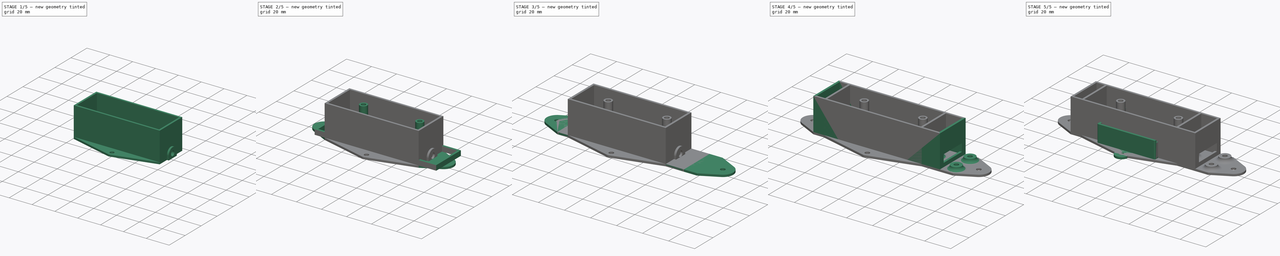
[diagram: build sequence overview — one tinted view per stage of 5, left to right]
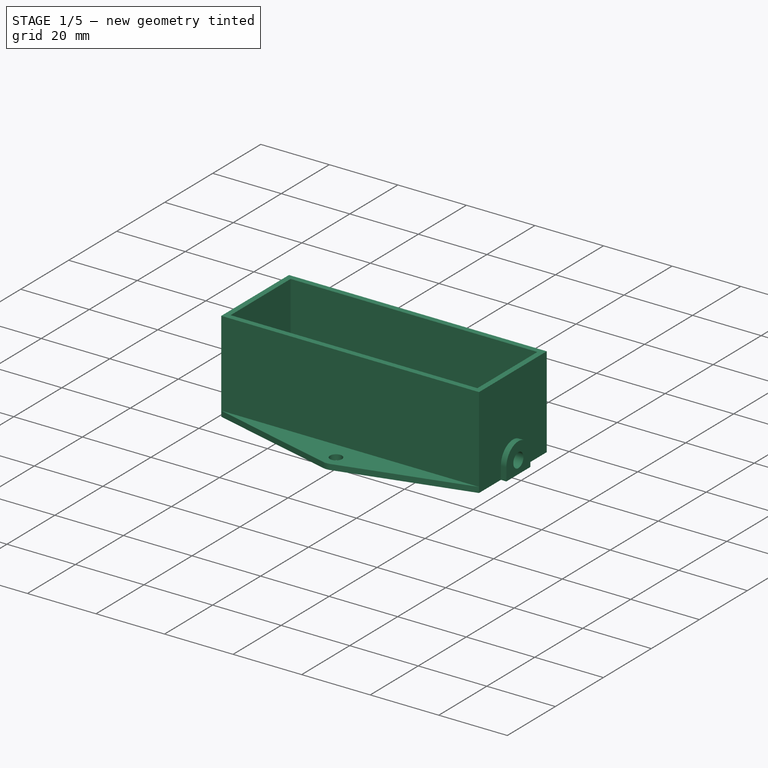
[diagram: stage 1 of 5 — iso view after this stage's code; geometry added in this stage tinted green]
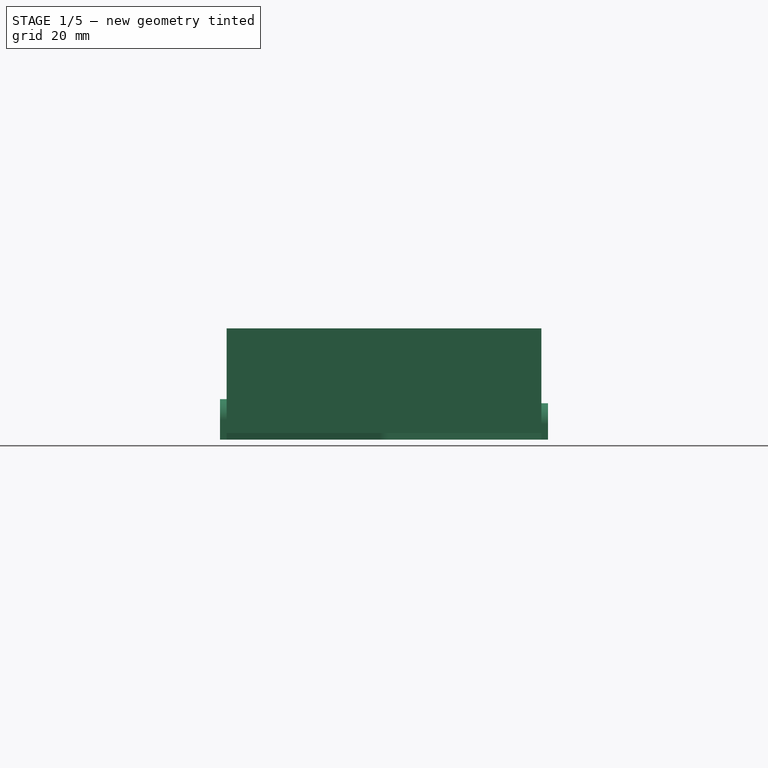
[diagram: stage 1 of 5 — front view after this stage's code; geometry added in this stage tinted green]
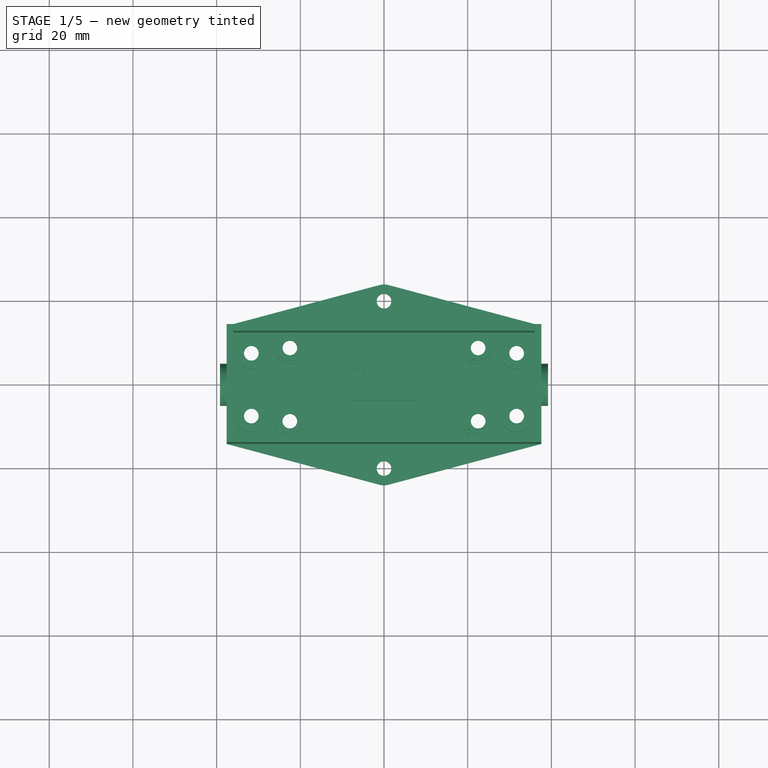
[diagram: stage 1 of 5 — top view after this stage's code; geometry added in this stage tinted green]
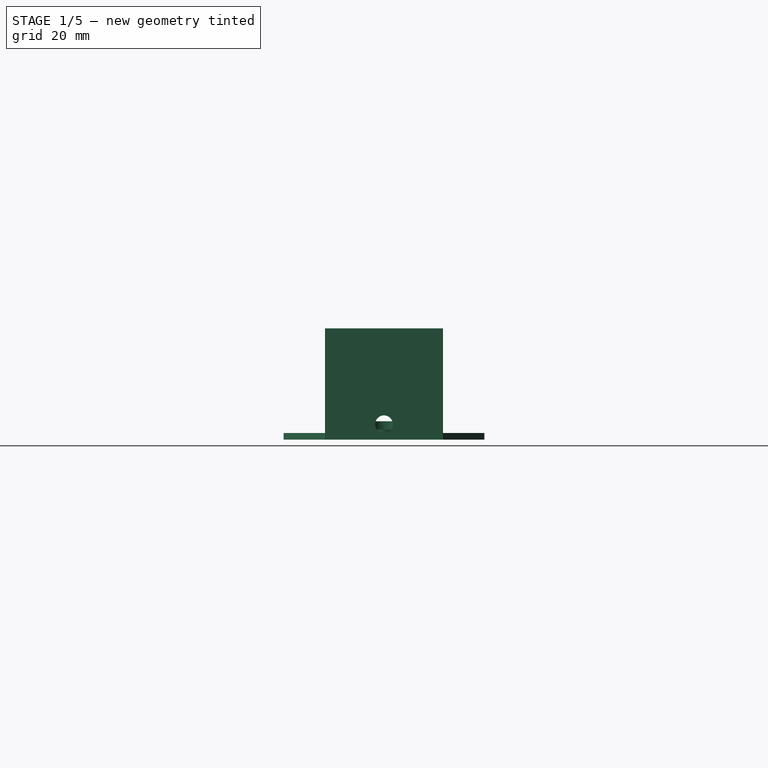
[diagram: stage 1 of 5 — right view after this stage's code; geometry added in this stage tinted green]
FCSTD DOCUMENT  (FreeCAD 0.17R13528 (Git))
Label: MainsSwitchCase
License: All rights reserved
LicenseURL: http://en.wikipedia.org/wiki/All_rights_reserved
objects: Sketcher::SketchObject×41, PartDesign::Pad×27, PartDesign::Pocket×11, App::DocumentObjectGroup×10, PartDesign::Fillet×8, PartDesign::Chamfer×5, Part::Cut×2
note: 132 computed .brp shape members not serialized (recipe doc carries the construction recipe); baked Part::Feature solids carry a one-line shape summary decoded from their .brp

FEATURE [App::DocumentObjectGroup] Group005  label="PSU2Top_"
  Group = -> [Pad015,Pad016,Pocket006,Chamfer004,Fillet011,Pad017,Cut001]
FEATURE [App::DocumentObjectGroup] Group007  label="PSU"
  Group = -> [Group002,Group003,Sketch008]
FEATURE [Sketcher::SketchObject] Sketch027  label="PSU2Guide"
  MapMode = 5
  sketch-geometry (14):
    g0: LineSegment [constr] StartX=-25.5 StartY=12 StartZ=0 EndX=25.5 EndY=12 EndZ=0
    g1: LineSegment [constr] StartX=25.5 StartY=12 StartZ=0 EndX=25.5 EndY=-12 EndZ=0
    g2: LineSegment [constr] StartX=25.5 StartY=-12 StartZ=0 EndX=-25.5 EndY=-12 EndZ=0
    g3: LineSegment [constr] StartX=-25.5 StartY=-12 StartZ=0 EndX=-25.5 EndY=12 EndZ=0
    g4: LineSegment [constr] StartX=25.5 StartY=12 StartZ=0 EndX=35.5 EndY=12 EndZ=0
    g5: LineSegment [constr] StartX=35.5 StartY=12 StartZ=0 EndX=35.5 EndY=-12 EndZ=0
    g6: LineSegment [constr] StartX=35.5 StartY=-12 StartZ=0 EndX=25.5 EndY=-12 EndZ=0
    g7: LineSegment [constr] StartX=-25.5 StartY=12 StartZ=0 EndX=-35.5 EndY=12 EndZ=0
    g8: LineSegment [constr] StartX=-35.5 StartY=12 StartZ=0 EndX=-35.5 EndY=-12 EndZ=0
    g9: LineSegment [constr] StartX=-35.5 StartY=-12 StartZ=0 EndX=-25.5 EndY=-12 EndZ=0
    g10: LineSegment [constr] StartX=-37.6 StartY=14.1 StartZ=0 EndX=37.6 EndY=14.1 EndZ=0
    g11: LineSegment [constr] StartX=37.6 StartY=14.1 StartZ=0 EndX=37.6 EndY=-14.1 EndZ=0
    g12: LineSegment [constr] StartX=37.6 StartY=-14.1 StartZ=0 EndX=-37.6 EndY=-14.1 EndZ=0
    g13: LineSegment [constr] StartX=-37.6 StartY=-14.1 StartZ=0 EndX=-37.6 EndY=14.1 EndZ=0
  constraints (39):
    c: Coincident(g0,g1)
    c: Coincident(g1,g2)
    c: Coincident(g2,g3)
    c: Coincident(g3,g0)
    c: Horizontal(g0)
    c: Horizontal(g2)
    c: Vertical(g1)
    c: Vertical(g3)
    c: DistanceX(g0,g0) = 51
    c: Symmetric(g0,g1,g-1)
    c: Coincident(g0,g4)
    c: Horizontal(g4)
    c: Coincident(g4,g5)
    c: Vertical(g5)
    c: Coincident(g5,g6)
    c: Coincident(g6,g1)
    c: Coincident(g0,g7)
    c: Horizontal(g7)
    c: Coincident(g7,g8)
    c: Vertical(g8)
    c: Coincident(g8,g9)
    c: Coincident(g9,g2)
    c: Horizontal(g9)
    c: DistanceY(g8,g7) = 24
    c: DistanceX(g7,g7) = 10
    c: DistanceX(g4,g4) = 10
    c: Coincident(g10,g11)
    c: Coincident(g11,g12)
    c: Coincident(g12,g13)
    c: Coincident(g13,g10)
    c: Horizontal(g10)
    c: Horizontal(g12)
    c: Vertical(g11)
    c: Vertical(g13)
    c: DistanceX(g10,g7) = 2.1
    c: DistanceY(g7,g10) = 2.1
    c: DistanceX(g5,g11) = 2.1
    c: DistanceY(g11,g5) = 2.1
    c: Horizontal(g6)
FEATURE [Sketcher::SketchObject] Sketch029  label="PSUBottomDCOut001"
  MapMode = 5
  Placement = pos=(0,0,1.6) rot=(0,0,1;0rad)
  sketch-geometry (1):
    g0: Circle CenterX=0 CenterY=14.1 CenterZ=0 NormalX=0 NormalY=0 NormalZ=1 AngleXU=0 Radius=4
  constraints (3):
    c: PointOnObject(g0,g-2)
    c: Radius(g0) = 4
    c: DistanceY(g-1,g0) = 14.1
FEATURE [Sketcher::SketchObject] Sketch034  label="PSU2BottomBase"
  MapMode = 5
  sketch-geometry (22):
    g0: LineSegment [constr] StartX=-25.5 StartY=12 StartZ=0 EndX=25.5 EndY=12 EndZ=0
    g1: LineSegment [constr] StartX=25.5 StartY=12 StartZ=0 EndX=25.5 EndY=-12 EndZ=0
    g2: LineSegment [constr] StartX=25.5 StartY=-12 StartZ=0 EndX=-25.5 EndY=-12 EndZ=0
    g3: LineSegment [constr] StartX=-25.5 StartY=-12 StartZ=0 EndX=-25.5 EndY=12 EndZ=0
    g4: LineSegment [constr] StartX=25.5 StartY=12 StartZ=0 EndX=35.5 EndY=12 EndZ=0
    g5: LineSegment [constr] StartX=35.5 StartY=12 StartZ=0 EndX=35.5 EndY=-12 EndZ=0
    g6: LineSegment [constr] StartX=35.5 StartY=-12 StartZ=0 EndX=25.5 EndY=-12 EndZ=0
    g7: LineSegment [constr] StartX=-25.5 StartY=12 StartZ=0 EndX=-35.5 EndY=12 EndZ=0
    g8: LineSegment [constr] StartX=-35.5 StartY=12 StartZ=0 EndX=-35.5 EndY=-12 EndZ=0
    g9: LineSegment [constr] StartX=-35.5 StartY=-12 StartZ=0 EndX=-25.5 EndY=-12 EndZ=0
    g10: LineSegment [constr] StartX=-37.6 StartY=14.1 StartZ=0 EndX=37.6 EndY=14.1 EndZ=0
    g11: LineSegment StartX=37.6 StartY=14.1 StartZ=0 EndX=37.6 EndY=-14.1 EndZ=0
    g12: LineSegment [constr] StartX=37.6 StartY=-14.1 StartZ=0 EndX=-37.6 EndY=-14.1 EndZ=0
    g13: LineSegment StartX=-37.6 StartY=-14.1 StartZ=0 EndX=-37.6 EndY=14.1 EndZ=0
    g14: LineSegment StartX=-37.6 StartY=14.1 StartZ=0 EndX=-1.03196 EndY=23.8646 EndZ=0
    g15: LineSegment StartX=37.6 StartY=14.1 StartZ=0 EndX=1.03196 EndY=23.8646 EndZ=0
    g16: Circle CenterX=0 CenterY=20 CenterZ=0 NormalX=0 NormalY=0 NormalZ=1 AngleXU=0 Radius=1.75
    g17: Circle CenterX=0 CenterY=-20 CenterZ=0 NormalX=0 NormalY=0 NormalZ=1 AngleXU=0 Radius=1.75
    g18: ArcOfCircle CenterX=0 CenterY=20 CenterZ=0 NormalX=0 NormalY=0 NormalZ=1 AngleXU=0 Radius=4 StartAngle=1.30985 EndAngle=1.83174
    g19: LineSegment StartX=-37.6 StartY=-14.1 StartZ=0 EndX=-1.03196 EndY=-23.8646 EndZ=0
    g20: LineSegment StartX=37.6 StartY=-14.1 StartZ=0 EndX=1.03196 EndY=-23.8646 EndZ=0
    g21: ArcOfCircle CenterX=0 CenterY=-20 CenterZ=0 NormalX=0 NormalY=0 NormalZ=1 AngleXU=0 Radius=4 StartAngle=4.45145 EndAngle=4.97333
  constraints (60):
    c: Coincident(g0,g1)
    c: Coincident(g1,g2)
    c: Coincident(g2,g3)
    c: Coincident(g3,g0)
    c: Horizontal(g0)
    c: Horizontal(g2)
    c: Vertical(g1)
    c: Vertical(g3)
    c: DistanceX(g0,g0) = 51
    c: Symmetric(g0,g1,g-1)
    c: Coincident(g0,g4)
    c: Horizontal(g4)
    c: Coincident(g4,g5)
    c: Vertical(g5)
    c: Coincident(g5,g6)
    c: Coincident(g6,g1)
    c: Coincident(g0,g7)
    c: Horizontal(g7)
    c: Coincident(g7,g8)
    c: Vertical(g8)
    c: Coincident(g8,g9)
    c: Coincident(g9,g2)
    c: Horizontal(g9)
    c: DistanceY(g8,g7) = 24
    c: DistanceX(g7,g7) = 10
    c: DistanceX(g4,g4) = 10
    c: Horizontal(g6)
    c: Coincident(g10,g11)
    c: Coincident(g11,g12)
    c: Coincident(g12,g13)
    c: Coincident(g13,g10)
    c: Horizontal(g10)
    c: Horizontal(g12)
    c: Vertical(g11)
    c: Vertical(g13)
    c: Symmetric(g10,g11,g-1)
    c: DistanceX(g10,g7) = 2.1
    c: DistanceY(g7,g10) = 2.1
    c: Coincident(g14,g10)
    c: Coincident(g15,g10)
    c: PointOnObject(g16,g-2)
    c: PointOnObject(g17,g-2)
    c: Radius(g16) = 1.75
    c: Equal(g16,g17)
    c: Symmetric(g16,g17,g-1)
    c: Coincident(g18,g16)
    c: Coincident(g18,g15)
    c: Coincident(g18,g14)
    c: Radius(g18) = 4
    c: Tangent(g18,g14)
    c: Tangent(g18,g15)
    c: Coincident(g19,g12)
    c: Coincident(g20,g11)
    c: Coincident(g21,g17)
    c: Coincident(g21,g19)
    c: Coincident(g21,g20)
    c: Equal(g18,g21)
    c: Tangent(g21,g19)
    c: Tangent(g21,g20)
    c: DistanceY(g17,g16) = 40
FEATURE [PartDesign::Pad] Pad019
  Length = 1.6
  Length2 = 100
  Profile = -> Sketch034
  Type = 0
FEATURE [App::DocumentObjectGroup] Group004  label="TMP"
  Group = -> [Pocket007]
FEATURE [PartDesign::Pad] Pad020
  Length = 3
  Length2 = 100
  Profile = -> Sketch033
  Type = 0
FEATURE [Sketcher::SketchObject] Sketch035  label="PSU2BottomNutHoles"
  ExternalGeometry = -> [Pad020]
  MapMode = 5
  Placement = pos=(0,0,0) rot=(1,0,0;3.14159rad)
  Support = -> [Pad020]
  sketch-geometry (56):
    g0: LineSegment StartX=25.8 StartY=8.75 StartZ=0 EndX=24.15 EndY=11.6079 EndZ=0
    g1: LineSegment StartX=24.15 StartY=11.6079 StartZ=0 EndX=20.85 EndY=11.6079 EndZ=0
    g2: LineSegment StartX=20.85 StartY=11.6079 StartZ=0 EndX=19.2 EndY=8.75 EndZ=0
    g3: LineSegment StartX=19.2 StartY=8.75 StartZ=0 EndX=20.85 EndY=5.89212 EndZ=0
    g4: LineSegment StartX=20.85 StartY=5.89212 StartZ=0 EndX=24.15 EndY=5.89212 EndZ=0
    g5: LineSegment StartX=24.15 StartY=5.89212 StartZ=0 EndX=25.8 EndY=8.75 EndZ=0
    g6: Circle [constr] CenterX=22.5 CenterY=8.75 CenterZ=0 NormalX=0 NormalY=0 NormalZ=1 AngleXU=0 Radius=3.3
    g7: LineSegment StartX=25.8 StartY=-8.75 StartZ=0 EndX=24.15 EndY=-5.89212 EndZ=0
    g8: LineSegment StartX=24.15 StartY=-5.89212 StartZ=0 EndX=20.85 EndY=-5.89212 EndZ=0
    g9: LineSegment StartX=20.85 StartY=-5.89212 StartZ=0 EndX=19.2 EndY=-8.75 EndZ=0
    g10: LineSegment StartX=19.2 StartY=-8.75 StartZ=0 EndX=20.85 EndY=-11.6079 EndZ=0
    g11: LineSegment StartX=20.85 StartY=-11.6079 StartZ=0 EndX=24.15 EndY=-11.6079 EndZ=0
    g12: LineSegment StartX=24.15 StartY=-11.6079 StartZ=0 EndX=25.8 EndY=-8.75 EndZ=0
    g13: Circle [constr] CenterX=22.5 CenterY=-8.75 CenterZ=0 NormalX=0 NormalY=0 NormalZ=1 AngleXU=0 Radius=3.3
    g14: LineSegment StartX=-30.05 StartY=-10.3579 StartZ=0 EndX=-28.4 EndY=-7.5 EndZ=0
    g15: LineSegment StartX=-28.4 StartY=-7.5 StartZ=0 EndX=-30.05 EndY=-4.64212 EndZ=0
    g16: LineSegment StartX=-30.05 StartY=-4.64212 StartZ=0 EndX=-33.35 EndY=-4.64212 EndZ=0
    g17: LineSegment StartX=-33.35 StartY=-4.64212 StartZ=0 EndX=-35 EndY=-7.5 EndZ=0
    g18: LineSegment StartX=-35 StartY=-7.5 StartZ=0 EndX=-33.35 EndY=-10.3579 EndZ=0
    g19: LineSegment StartX=-33.35 StartY=-10.3579 StartZ=0 EndX=-30.05 EndY=-10.3579 EndZ=0
    g20: Circle [constr] CenterX=-31.7 CenterY=-7.5 CenterZ=0 NormalX=0 NormalY=0 NormalZ=1 AngleXU=0 Radius=3.3
    g21: LineSegment StartX=-20.85 StartY=-11.6079 StartZ=0 EndX=-19.2 EndY=-8.75 EndZ=0
    g22: LineSegment StartX=-19.2 StartY=-8.75 StartZ=0 EndX=-20.85 EndY=-5.89212 EndZ=0
    g23: LineSegment StartX=-20.85 StartY=-5.89212 StartZ=0 EndX=-24.15 EndY=-5.89212 EndZ=0
    g24: LineSegment StartX=-24.15 StartY=-5.89212 StartZ=0 EndX=-25.8 EndY=-8.75 EndZ=0
    g25: LineSegment StartX=-25.8 StartY=-8.75 StartZ=0 EndX=-24.15 EndY=-11.6079 EndZ=0
    g26: LineSegment StartX=-24.15 StartY=-11.6079 StartZ=0 EndX=-20.85 EndY=-11.6079 EndZ=0
    g27: Circle [constr] CenterX=-22.5 CenterY=-8.75 CenterZ=0 NormalX=0 NormalY=0 NormalZ=1 AngleXU=0 Radius=3.3
    g28: LineSegment StartX=35 StartY=7.5 StartZ=0 EndX=33.35 EndY=10.3579 EndZ=0
    g29: LineSegment StartX=33.35 StartY=10.3579 StartZ=0 EndX=30.05 EndY=10.3579 EndZ=0
    g30: LineSegment StartX=30.05 StartY=10.3579 StartZ=0 EndX=28.4 EndY=7.5 EndZ=0
    g31: LineSegment StartX=28.4 StartY=7.5 StartZ=0 EndX=30.05 EndY=4.64212 EndZ=0
    g32: LineSegment StartX=30.05 StartY=4.64212 StartZ=0 EndX=33.35 EndY=4.64212 EndZ=0
    g33: LineSegment StartX=33.35 StartY=4.64212 StartZ=0 EndX=35 EndY=7.5 EndZ=0
    g34: Circle [constr] CenterX=31.7 CenterY=7.5 CenterZ=0 NormalX=0 NormalY=0 NormalZ=1 AngleXU=0 Radius=3.3
    g35: LineSegment StartX=35 StartY=-7.5 StartZ=0 EndX=33.35 EndY=-4.64212 EndZ=0
    g36: LineSegment StartX=33.35 StartY=-4.64212 StartZ=0 EndX=30.05 EndY=-4.64212 EndZ=0
    g37: LineSegment StartX=30.05 StartY=-4.64212 StartZ=0 EndX=28.4 EndY=-7.5 EndZ=0
    g38: LineSegment StartX=28.4 StartY=-7.5 StartZ=0 EndX=30.05 EndY=-10.3579 EndZ=0
    g39: LineSegment StartX=30.05 StartY=-10.3579 StartZ=0 EndX=33.35 EndY=-10.3579 EndZ=0
    g40: LineSegment StartX=33.35 StartY=-10.3579 StartZ=0 EndX=35 EndY=-7.5 EndZ=0
    g41: Circle [constr] CenterX=31.7 CenterY=-7.5 CenterZ=0 NormalX=0 NormalY=0 NormalZ=1 AngleXU=0 Radius=3.3
    g42: LineSegment StartX=-19.2 StartY=8.75 StartZ=0 EndX=-20.85 EndY=11.6079 EndZ=0
    g43: LineSegment StartX=-20.85 StartY=11.6079 StartZ=0 EndX=-24.15 EndY=11.6079 EndZ=0
    g44: LineSegment StartX=-24.15 StartY=11.6079 StartZ=0 EndX=-25.8 EndY=8.75 EndZ=0
    g45: LineSegment StartX=-25.8 StartY=8.75 StartZ=0 EndX=-24.15 EndY=5.89212 EndZ=0
    g46: LineSegment StartX=-24.15 StartY=5.89212 StartZ=0 EndX=-20.85 EndY=5.89212 EndZ=0
    g47: LineSegment StartX=-20.85 StartY=5.89212 StartZ=0 EndX=-19.2 EndY=8.75 EndZ=0
    g48: Circle [constr] CenterX=-22.5 CenterY=8.75 CenterZ=0 NormalX=0 NormalY=0 NormalZ=1 AngleXU=0 Radius=3.3
    g49: LineSegment StartX=-30.05 StartY=4.64212 StartZ=0 EndX=-28.4 EndY=7.5 EndZ=0
    g50: LineSegment StartX=-28.4 StartY=7.5 StartZ=0 EndX=-30.05 EndY=10.3579 EndZ=0
    g51: LineSegment StartX=-30.05 StartY=10.3579 StartZ=0 EndX=-33.35 EndY=10.3579 EndZ=0
    g52: LineSegment StartX=-33.35 StartY=10.3579 StartZ=0 EndX=-35 EndY=7.5 EndZ=0
    g53: LineSegment StartX=-35 StartY=7.5 StartZ=0 EndX=-33.35 EndY=4.64212 EndZ=0
    g54: LineSegment StartX=-33.35 StartY=4.64212 StartZ=0 EndX=-30.05 EndY=4.64212 EndZ=0
    g55: Circle [constr] CenterX=-31.7 CenterY=7.5 CenterZ=0 NormalX=0 NormalY=0 NormalZ=1 AngleXU=0 Radius=3.3
  constraints (127):
    c: Coincident(g0,g1)
    c: Coincident(g1,g2)
    c: Coincident(g2,g3)
    c: Coincident(g3,g4)
    c: Coincident(g4,g5)
    c: Coincident(g5,g0)
    c: Equal(g0, g1-g5) x5
    c: PointOnObject(g0,g6)
    c: PointOnObject(g1,g6)
    c: PointOnObject(g2,g6)
    c: PointOnObject(g3,g6)
    c: PointOnObject(g4,g6)
    c: PointOnObject(g5,g6)
    c: Coincident(g6,g-5)
    c: Coincident(g7,g8)
    c: Coincident(g8,g9)
    c: Coincident(g9,g10)
    c: Coincident(g10,g11)
    c: Coincident(g11,g12)
    c: Coincident(g12,g7)
    c: Equal(g7, g8-g12) x5
    c: PointOnObject(g7,g13)
    c: PointOnObject(g8,g13)
    c: PointOnObject(g9,g13)
    c: PointOnObject(g10,g13)
    c: PointOnObject(g11,g13)
    c: PointOnObject(g12,g13)
    c: Coincident(g13,g-6)
    c: Coincident(g14,g15)
    c: Coincident(g15,g16)
    c: Coincident(g16,g17)
    c: Coincident(g17,g18)
    c: Coincident(g18,g19)
    c: Coincident(g19,g14)
    c: Equal(g14, g15-g19) x5
    c: PointOnObject(g14,g20)
    c: PointOnObject(g15,g20)
    c: PointOnObject(g16,g20)
    c: PointOnObject(g17,g20)
    c: PointOnObject(g18,g20)
    c: PointOnObject(g19,g20)
    c: Coincident(g20,g-7)
    c: Coincident(g21,g22)
    c: Coincident(g22,g23)
    c: Coincident(g23,g24)
    c: Coincident(g24,g25)
    c: Coincident(g25,g26)
    c: Coincident(g26,g21)
    c: Equal(g21, g22-g26) x5
    c: PointOnObject(g21,g27)
    c: PointOnObject(g22,g27)
    c: PointOnObject(g23,g27)
    c: PointOnObject(g24,g27)
    c: PointOnObject(g25,g27)
    c: PointOnObject(g26,g27)
    c: Coincident(g27,g-8)
    c: Coincident(g28,g29)
    c: Coincident(g29,g30)
    c: Coincident(g30,g31)
    c: Coincident(g31,g32)
    c: Coincident(g32,g33)
    c: Coincident(g33,g28)
    c: Equal(g28, g29-g33) x5
    c: PointOnObject(g28,g34)
    c: PointOnObject(g29,g34)
    c: PointOnObject(g30,g34)
    c: PointOnObject(g31,g34)
    c: PointOnObject(g32,g34)
    c: PointOnObject(g33,g34)
    c: Coincident(g34,g-9)
    c: Coincident(g35,g36)
    c: Coincident(g36,g37)
    c: Coincident(g37,g38)
    c: Coincident(g38,g39)
    c: Coincident(g39,g40)
    c: Coincident(g40,g35)
    c: Equal(g35, g36-g40) x5
    c: PointOnObject(g35,g41)
    c: PointOnObject(g36,g41)
    c: PointOnObject(g37,g41)
    c: PointOnObject(g38,g41)
    c: PointOnObject(g39,g41)
    c: PointOnObject(g40,g41)
    c: Coincident(g41,g-10)
    c: Equal(g13,g6)
    c: Equal(g6,g20)
    c: Equal(g20,g27)
    c: Equal(g27,g34)
    c: Equal(g34,g41)
    c: Horizontal(g8)
    c: Horizontal(g1)
    c: Horizontal(g16)
    c: Horizontal(g23)
    c: Horizontal(g29)
    c: Horizontal(g36)
    c: Coincident(g42,g43)
    c: Coincident(g43,g44)
    c: Coincident(g44,g45)
    c: Coincident(g45,g46)
    c: Coincident(g46,g47)
    c: Coincident(g47,g42)
    c: Equal(g42, g43-g47) x5
    c: PointOnObject(g42,g48)
    c: PointOnObject(g43,g48)
    c: PointOnObject(g44,g48)
    c: PointOnObject(g45,g48)
    c: PointOnObject(g46,g48)
    c: PointOnObject(g47,g48)
    c: Coincident(g48,g-3)
    c: Coincident(g49,g50)
    c: Coincident(g50,g51)
    c: Coincident(g51,g52)
    c: Coincident(g52,g53)
    c: Coincident(g53,g54)
    c: Coincident(g54,g49)
    c: Equal(g49, g50-g54) x5
    c: PointOnObject(g49,g55)
    c: PointOnObject(g50,g55)
    c: PointOnObject(g51,g55)
    c: PointOnObject(g52,g55)
    c: PointOnObject(g53,g55)
    c: PointOnObject(g54,g55)
    c: Coincident(g55,g-4)
    c: Radius(g55) = 3.3
    c: Equal(g55,g48)
    c: Horizontal(g51)
    c: Horizontal(g43)
FEATURE [PartDesign::Pocket] Pocket010
  Length = 3
  Length2 = 100
  Profile = -> Sketch035
  Type = 0
FEATURE [Sketcher::SketchObject] Sketch036  label="PSU2BottomScrewPipes"
  ExternalGeometry = -> [Pocket010]
  MapMode = 5
  Placement = pos=(0,0,4.6) rot=(0,0,1;0rad)
  Support = -> [Pocket010]
  sketch-geometry (8):
    g0: Circle CenterX=-22.5 CenterY=8.75 CenterZ=0 NormalX=0 NormalY=0 NormalZ=1 AngleXU=0 Radius=1.75
    g1: Circle CenterX=-22.5 CenterY=8.75 CenterZ=0 NormalX=0 NormalY=0 NormalZ=1 AngleXU=0 Radius=3
    g2: Circle CenterX=-22.5 CenterY=-8.75 CenterZ=0 NormalX=0 NormalY=0 NormalZ=1 AngleXU=0 Radius=1.75
    g3: Circle CenterX=-22.5 CenterY=-8.75 CenterZ=0 NormalX=0 NormalY=0 NormalZ=1 AngleXU=0 Radius=3
    g4: Circle CenterX=22.5 CenterY=8.75 CenterZ=0 NormalX=0 NormalY=0 NormalZ=1 AngleXU=0 Radius=1.75
    g5: Circle CenterX=22.5 CenterY=8.75 CenterZ=0 NormalX=0 NormalY=0 NormalZ=1 AngleXU=0 Radius=3
    g6: Circle CenterX=22.5 CenterY=-8.75 CenterZ=0 NormalX=0 NormalY=0 NormalZ=1 AngleXU=0 Radius=1.75
    g7: Circle CenterX=22.5 CenterY=-8.75 CenterZ=0 NormalX=0 NormalY=0 NormalZ=1 AngleXU=0 Radius=3
  constraints (16):
    c: Coincident(g1,g0)
    c: Coincident(g3,g2)
    c: Coincident(g5,g4)
    c: Coincident(g7,g6)
    c: Equal(g0,g2)
    c: Equal(g2,g4)
    c: Equal(g4,g6)
    c: Radius(g0) = 1.75
    c: Equal(g1,g3)
    c: Equal(g3,g5)
    c: Equal(g5,g7)
    c: Radius(g1) = 3
    c: Coincident(g2,g-4)
    c: Coincident(g0,g-3)
    c: Coincident(g6,g-5)
    c: Coincident(g4,g-6)
FEATURE [PartDesign::Pad] Pad023
  Length = 2
  Length2 = 100
  Profile = -> Sketch036
  Type = 0
FEATURE [Sketcher::SketchObject] Sketch030  label="PSU2BottomWalls"
  MapMode = 5
  Placement = pos=(0,0,1.6) rot=(0,0,1;0rad)
  Support = -> [Pad023]
  sketch-geometry (18):
    g0: LineSegment [constr] StartX=-25.5 StartY=12 StartZ=0 EndX=25.5 EndY=12 EndZ=0
    g1: LineSegment [constr] StartX=25.5 StartY=12 StartZ=0 EndX=25.5 EndY=-12 EndZ=0
    g2: LineSegment [constr] StartX=25.5 StartY=-12 StartZ=0 EndX=-25.5 EndY=-12 EndZ=0
    g3: LineSegment [constr] StartX=-25.5 StartY=-12 StartZ=0 EndX=-25.5 EndY=12 EndZ=0
    g4: LineSegment [constr] StartX=25.5 StartY=12 StartZ=0 EndX=35.5 EndY=12 EndZ=0
    g5: LineSegment [constr] StartX=35.5 StartY=12 StartZ=0 EndX=35.5 EndY=-12 EndZ=0
    g6: LineSegment [constr] StartX=35.5 StartY=-12 StartZ=0 EndX=25.5 EndY=-12 EndZ=0
    g7: LineSegment [constr] StartX=-25.5 StartY=12 StartZ=0 EndX=-35.5 EndY=12 EndZ=0
    g8: LineSegment [constr] StartX=-35.5 StartY=12 StartZ=0 EndX=-35.5 EndY=-12 EndZ=0
    g9: LineSegment [constr] StartX=-35.5 StartY=-12 StartZ=0 EndX=-25.5 EndY=-12 EndZ=0
    g10: LineSegment StartX=-37.6 StartY=14.1 StartZ=0 EndX=37.6 EndY=14.1 EndZ=0
    g11: LineSegment StartX=37.6 StartY=14.1 StartZ=0 EndX=37.6 EndY=-14.1 EndZ=0
    g12: LineSegment StartX=37.6 StartY=-14.1 StartZ=0 EndX=-37.6 EndY=-14.1 EndZ=0
    g13: LineSegment StartX=-37.6 StartY=-14.1 StartZ=0 EndX=-37.6 EndY=14.1 EndZ=0
    g14: LineSegment StartX=-36 StartY=12.5 StartZ=0 EndX=36 EndY=12.5 EndZ=0
    g15: LineSegment StartX=36 StartY=12.5 StartZ=0 EndX=36 EndY=-12.5 EndZ=0
    g16: LineSegment StartX=36 StartY=-12.5 StartZ=0 EndX=-36 EndY=-12.5 EndZ=0
    g17: LineSegment StartX=-36 StartY=-12.5 StartZ=0 EndX=-36 EndY=12.5 EndZ=0
  constraints (51):
    c: Coincident(g0,g1)
    c: Coincident(g1,g2)
    c: Coincident(g2,g3)
    c: Coincident(g3,g0)
    c: Horizontal(g0)
    c: Horizontal(g2)
    c: Vertical(g1)
    c: Vertical(g3)
    c: DistanceX(g0,g0) = 51
    c: Symmetric(g0,g1,g-1)
    c: Coincident(g0,g4)
    c: Horizontal(g4)
    c: Coincident(g4,g5)
    c: Vertical(g5)
    c: Coincident(g5,g6)
    c: Coincident(g6,g1)
    c: Coincident(g0,g7)
    c: Horizontal(g7)
    c: Coincident(g7,g8)
    c: Vertical(g8)
    c: Coincident(g8,g9)
    c: Coincident(g9,g2)
    c: Horizontal(g9)
    c: DistanceY(g8,g7) = 24
    c: DistanceX(g7,g7) = 10
    c: DistanceX(g4,g4) = 10
    c: Coincident(g10,g11)
    c: Coincident(g11,g12)
    c: Coincident(g12,g13)
    c: Coincident(g13,g10)
    c: Horizontal(g10)
    c: Horizontal(g12)
    c: Vertical(g11)
    c: Vertical(g13)
    c: DistanceX(g10,g7) = 2.1
    c: DistanceY(g7,g10) = 2.1
    c: DistanceX(g5,g11) = 2.1
    c: DistanceY(g11,g5) = 2.1
    c: Horizontal(g6)
    c: Coincident(g14,g15)
    c: Coincident(g15,g16)
    c: Coincident(g16,g17)
    c: Coincident(g17,g14)
    c: Horizontal(g14)
    c: Horizontal(g16)
    c: Vertical(g15)
    c: Vertical(g17)
    c: DistanceX(g12,g16) = 1.6
    c: DistanceY(g12,g16) = 1.6
    c: DistanceX(g14,g10) = 1.6
    c: DistanceY(g14,g10) = 1.6
FEATURE [PartDesign::Pad] Pad024
  Length = 25
  Length2 = 100
  Profile = -> Sketch030
  Type = 0
FEATURE [Sketcher::SketchObject] Sketch037  label="PSU2BottomMainsInEnforcement"
  MapMode = 5
  Placement = pos=(-37.6,0,0) rot=(0.57735,-0.57735,-0.57735;2.0944rad)
  Support = -> [Pad024]
  sketch-geometry (5):
    g0: LineSegment StartX=-5 StartY=4.7 StartZ=0 EndX=-5 EndY=0 EndZ=0
    g1: LineSegment StartX=-5 StartY=0 StartZ=0 EndX=5 EndY=0 EndZ=0
    g2: LineSegment StartX=5 StartY=0 StartZ=0 EndX=5 EndY=4.7 EndZ=0
    g3: ArcOfCircle CenterX=0 CenterY=4.7 CenterZ=0 NormalX=0 NormalY=0 NormalZ=1 AngleXU=0 Radius=5 StartAngle=0 EndAngle=3.14159
    g4: LineSegment [constr] StartX=-5 StartY=4.7 StartZ=0 EndX=5 EndY=4.7 EndZ=0
  constraints (15):
    c: Vertical(g0)
    c: Coincident(g0,g1)
    c: Coincident(g1,g2)
    c: Vertical(g2)
    c: Equal(g0,g2)
    c: DistanceY(g0,g0) = 4.7
    c: DistanceX(g1,g1) = 10
    c: PointOnObject(g3,g-2)
    c: Coincident(g3,g2)
    c: Coincident(g3,g0)
    c: Horizontal(g1)
    c: Coincident(g4,g0)
    c: Coincident(g4,g2)
    c: PointOnObject(g3,g4)
    c: PointOnObject(g-1,g1)
FEATURE [PartDesign::Pad] Pad025
  Length = 1.6
  Length2 = 100
  Profile = -> Sketch037
  Type = 0
FEATURE [Sketcher::SketchObject] Sketch038  label="PSU2BottomMainsInHole"
  ExternalGeometry = -> [Pad025]
  MapMode = 5
  Placement = pos=(-39.2,0,0) rot=(0.57735,-0.57735,-0.57735;2.0944rad)
  Support = -> [Pad025]
  sketch-geometry (1):
    g0: Circle CenterX=0 CenterY=4.7 CenterZ=0 NormalX=0 NormalY=0 NormalZ=1 AngleXU=0 Radius=3.1
  constraints (2):
    c: Radius(g0) = 3.1
    c: DistanceY(g-1,g0) = 4.7
FEATURE [PartDesign::Pocket] Pocket011
  Length = 5
  Length2 = 100
  Profile = -> Sketch038
  Type = 2
FEATURE [Sketcher::SketchObject] Sketch040  label="PSU2BottomDCOutEnforcement"
  MapMode = 5
  Placement = pos=(37.6,0,0) rot=(0.57735,0.57735,0.57735;2.0944rad)
  Support = -> [Pocket011]
  sketch-geometry (5):
    g0: LineSegment StartX=-5 StartY=3.7 StartZ=0 EndX=-5 EndY=0 EndZ=0
    g1: LineSegment StartX=-5 StartY=0 StartZ=0 EndX=5 EndY=0 EndZ=0
    g2: LineSegment StartX=5 StartY=0 StartZ=0 EndX=5 EndY=3.7 EndZ=0
    g3: ArcOfCircle CenterX=0 CenterY=3.7 CenterZ=0 NormalX=0 NormalY=0 NormalZ=1 AngleXU=0 Radius=5 StartAngle=0 EndAngle=3.14159
    g4: LineSegment [constr] StartX=-5 StartY=3.7 StartZ=0 EndX=5 EndY=3.7 EndZ=0
  constraints (15):
    c: Vertical(g0)
    c: Coincident(g0,g1)
    c: Coincident(g1,g2)
    c: Vertical(g2)
    c: Equal(g0,g2)
    c: DistanceY(g0,g0) = 3.7
    c: DistanceX(g1,g1) = 10
    c: PointOnObject(g3,g-2)
    c: Coincident(g3,g2)
    c: Coincident(g3,g0)
    c: Horizontal(g1)
    c: Coincident(g4,g0)
    c: Coincident(g4,g2)
    c: PointOnObject(g3,g4)
    c: PointOnObject(g-1,g1)
FEATURE [PartDesign::Pad] Pad027
  Length = 1.6
  Length2 = 100
  Profile = -> Sketch040
  Type = 0
FEATURE [Sketcher::SketchObject] Sketch041  label="PSU2BottomDCOutHole"
  ExternalGeometry = -> [Pad025]
  MapMode = 5
  Placement = pos=(39.2,0,0) rot=(0.57735,0.57735,0.57735;2.0944rad)
  Support = -> [Pad027]
  sketch-geometry (1):
    g0: Circle CenterX=0 CenterY=3.7 CenterZ=0 NormalX=0 NormalY=0 NormalZ=1 AngleXU=0 Radius=2.1
  constraints (2):
    c: Radius(g0) = 2.1
    c: DistanceY(g-1,g0) = 3.7
FEATURE [PartDesign::Pocket] Pocket012
  Length = 5
  Length2 = 100
  Profile = -> Sketch041
  Type = 2
FEATURE [App::DocumentObjectGroup] Group006  label="PSU2Bottom_"
  Group = -> [Pad019,Pad020,Pocket010,Pad023,Pad024,Pad025,Pocket011,Pad027,Pocket012]
FEATURE [Sketcher::SketchObject] Sketch042  label="PSU2Clamp2Base"
  MapMode = 5
  sketch-geometry (8):
    g0: Circle CenterX=-7.5 CenterY=0 CenterZ=0 NormalX=0 NormalY=0 NormalZ=1 AngleXU=0 Radius=1.75
    g1: Circle CenterX=7.5 CenterY=0 CenterZ=0 NormalX=0 NormalY=0 NormalZ=1 AngleXU=0 Radius=1.75
    g2: LineSegment StartX=-7.5 StartY=3.8 StartZ=0 EndX=7.5 EndY=3.8 EndZ=0
    g3: LineSegment [constr] StartX=7.5 StartY=3.8 StartZ=0 EndX=7.5 EndY=-3.8 EndZ=0
    g4: LineSegment StartX=7.5 StartY=-3.8 StartZ=0 EndX=-7.5 EndY=-3.8 EndZ=0
    g5: LineSegment [constr] StartX=-7.5 StartY=-3.8 StartZ=0 EndX=-7.5 EndY=3.8 EndZ=0
    g6: ArcOfCircle CenterX=-7.5 CenterY=0 CenterZ=0 NormalX=0 NormalY=0 NormalZ=1 AngleXU=0 Radius=3.8 StartAngle=1.5708 EndAngle=4.71239
    g7: ArcOfCircle CenterX=7.5 CenterY=0 CenterZ=0 NormalX=0 NormalY=0 NormalZ=1 AngleXU=0 Radius=3.8 StartAngle=4.71239 EndAngle=7.85398
  constraints (23):
    c: PointOnObject(g0,g-1)
    c: PointOnObject(g1,g-1)
    c: DistanceX(g0,g1) = 15
    c: Equal(g0,g1)
    c: Radius(g0) = 1.75
    c: Coincident(g2,g3)
    c: Coincident(g3,g4)
    c: Coincident(g4,g5)
    c: Coincident(g5,g2)
    c: Horizontal(g2)
    c: Horizontal(g4)
    c: Vertical(g3)
    c: Vertical(g5)
    c: Symmetric(g2,g3,g-1)
    c: PointOnObject(g0,g5)
    c: PointOnObject(g1,g3)
    c: Coincident(g6,g0)
    c: Coincident(g6,g4)
    c: Coincident(g2,g6)
    c: Radius(g6) = 3.8
    c: Coincident(g7,g1)
    c: Coincident(g7,g2)
    c: Coincident(g7,g3)
FEATURE [PartDesign::Pad] Pad028
  Length = 2.4
  Length2 = 100
  Profile = -> Sketch042
  Type = 0
FEATURE [Sketcher::SketchObject] Sketch043
  MapMode = 5
  Placement = pos=(0,0,2.4) rot=(0,0,1;0rad)
  Support = -> [Pad028]
  sketch-geometry (6):
    g0: LineSegment StartX=-7.4 StartY=3.8 StartZ=0 EndX=7.4 EndY=3.8 EndZ=0
    g1: LineSegment [constr] StartX=7.4 StartY=3.8 StartZ=0 EndX=7.4 EndY=-3.8 EndZ=0
    g2: LineSegment StartX=7.4 StartY=-3.8 StartZ=0 EndX=-7.4 EndY=-3.8 EndZ=0
    g3: LineSegment [constr] StartX=-7.4 StartY=-3.8 StartZ=0 EndX=-7.4 EndY=3.8 EndZ=0
    g4: ArcOfCircle CenterX=-7.4 CenterY=0 CenterZ=0 NormalX=0 NormalY=0 NormalZ=1 AngleXU=0 Radius=3.8 StartAngle=4.71239 EndAngle=7.85398
    g5: ArcOfCircle CenterX=7.4 CenterY=0 CenterZ=0 NormalX=0 NormalY=0 NormalZ=1 AngleXU=0 Radius=3.8 StartAngle=1.5708 EndAngle=4.71239
  constraints (17):
    c: Coincident(g0,g1)
    c: Coincident(g1,g2)
    c: Coincident(g2,g3)
    c: Coincident(g3,g0)
    c: Horizontal(g2)
    c: Vertical(g1)
    c: Vertical(g3)
    c: Symmetric(g0,g0,g-2)
    c: DistanceX(g0,g0) = 14.8
    c: DistanceY(g3,g3) = 7.6
    c: Coincident(g4,g0)
    c: Coincident(g4,g2)
    c: PointOnObject(g4,g-1)
    c: PointOnObject(g4,g3)
    c: PointOnObject(g5,g1)
    c: Coincident(g5,g0)
    c: Coincident(g5,g1)
FEATURE [PartDesign::Pad] Pad029
  Length = 2
  Length2 = 100
  Profile = -> Sketch043
  Type = 0
FEATURE [App::DocumentObjectGroup] Group009  label="PSU2Clamp_"
  Group = -> [Pad026,Pad028,Pad029]
FEATURE [App::DocumentObjectGroup] Group008  label="PSU2"
  Group = -> [Group005,Group006,Group009,Sketch027]
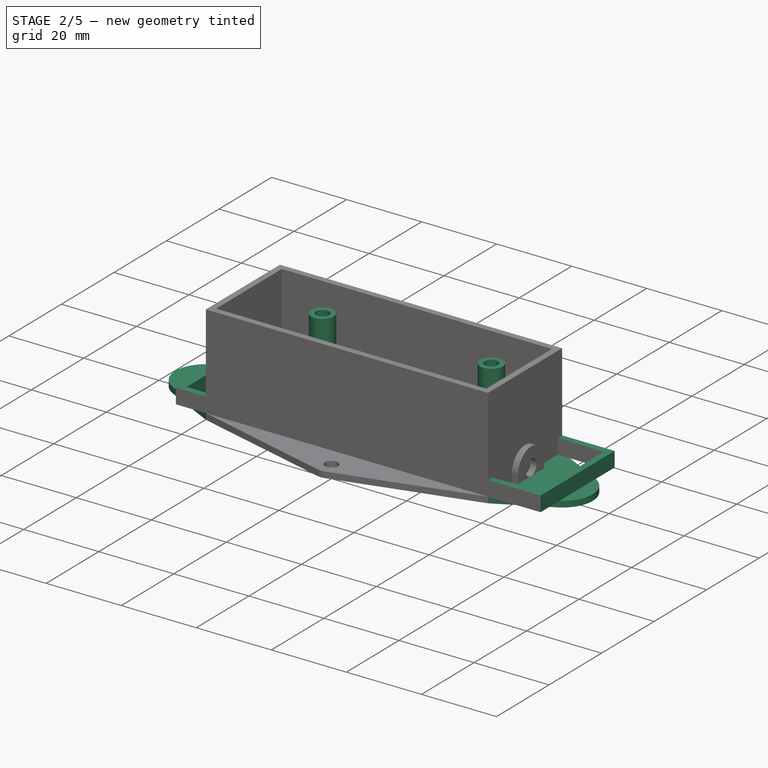
[diagram: stage 2 of 5 — iso view after this stage's code; geometry added in this stage tinted green]
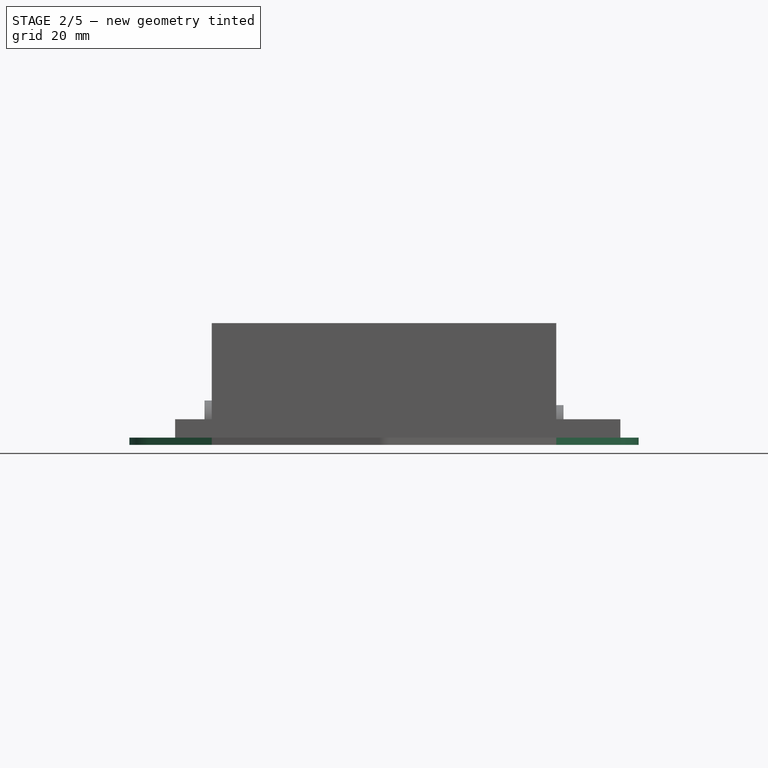
[diagram: stage 2 of 5 — front view after this stage's code; geometry added in this stage tinted green]
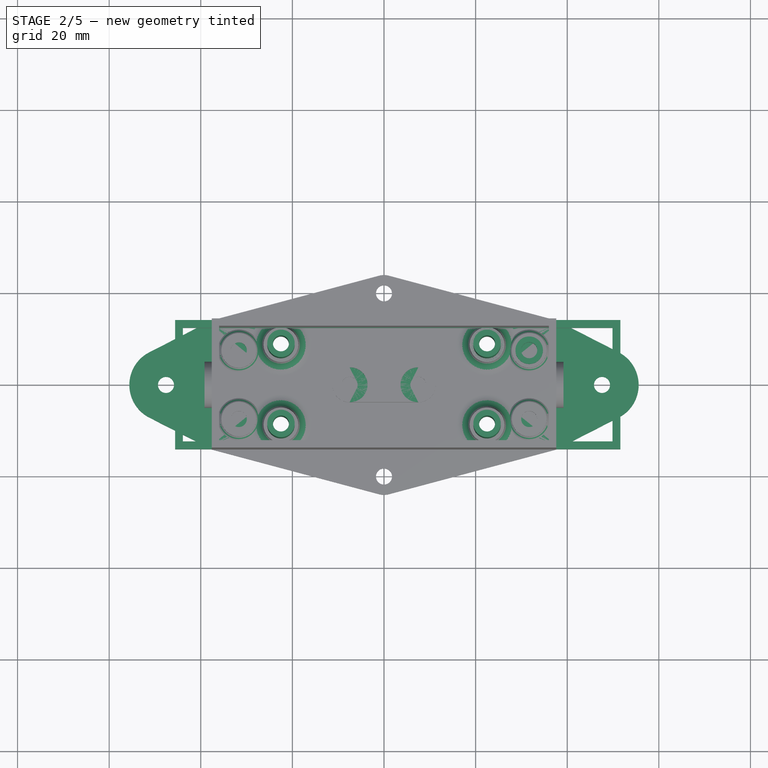
[diagram: stage 2 of 5 — top view after this stage's code; geometry added in this stage tinted green]
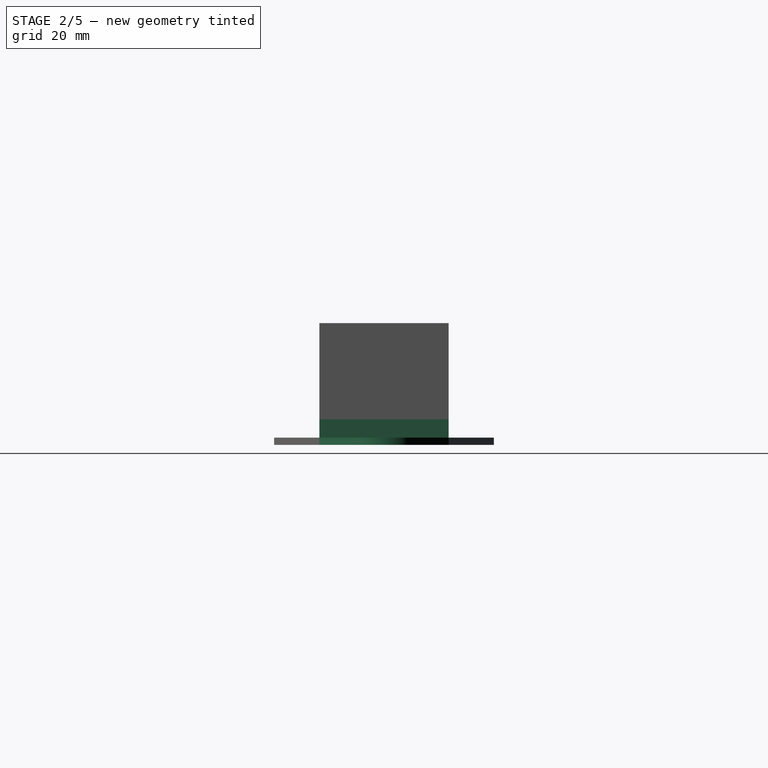
[diagram: stage 2 of 5 — right view after this stage's code; geometry added in this stage tinted green]
FEATURE [App::DocumentObjectGroup] Group002  label="PSUTop"
  Group = -> [Pad011,Pad012,Pocket005,Chamfer003,Fillet004,Pad013,Cut]
FEATURE [Sketcher::SketchObject] Sketch024  label="PSU2TopBase"
  MapMode = 5
  sketch-geometry (14):
    g0: LineSegment [constr] StartX=-25.5 StartY=12 StartZ=0 EndX=25.5 EndY=12 EndZ=0
    g1: LineSegment [constr] StartX=25.5 StartY=12 StartZ=0 EndX=25.5 EndY=-12 EndZ=0
    g2: LineSegment [constr] StartX=25.5 StartY=-12 StartZ=0 EndX=-25.5 EndY=-12 EndZ=0
    g3: LineSegment [constr] StartX=-25.5 StartY=-12 StartZ=0 EndX=-25.5 EndY=12 EndZ=0
    g4: LineSegment [constr] StartX=25.5 StartY=12 StartZ=0 EndX=35.5 EndY=12 EndZ=0
    g5: LineSegment [constr] StartX=35.5 StartY=12 StartZ=0 EndX=35.5 EndY=-12 EndZ=0
    g6: LineSegment [constr] StartX=35.5 StartY=-12 StartZ=0 EndX=25.5 EndY=-12 EndZ=0
    g7: LineSegment [constr] StartX=-25.5 StartY=12 StartZ=0 EndX=-35.5 EndY=12 EndZ=0
    g8: LineSegment [constr] StartX=-35.5 StartY=12 StartZ=0 EndX=-35.5 EndY=-12 EndZ=0
    g9: LineSegment [constr] StartX=-35.5 StartY=-12 StartZ=0 EndX=-25.5 EndY=-12 EndZ=0
    g10: LineSegment StartX=-37.6 StartY=14.1 StartZ=0 EndX=37.6 EndY=14.1 EndZ=0
    g11: LineSegment StartX=37.6 StartY=14.1 StartZ=0 EndX=37.6 EndY=-14.1 EndZ=0
    g12: LineSegment StartX=37.6 StartY=-14.1 StartZ=0 EndX=-37.6 EndY=-14.1 EndZ=0
    g13: LineSegment StartX=-37.6 StartY=-14.1 StartZ=0 EndX=-37.6 EndY=14.1 EndZ=0
  constraints (39):
    c: Coincident(g0,g1)
    c: Coincident(g1,g2)
    c: Coincident(g2,g3)
    c: Coincident(g3,g0)
    c: Horizontal(g0)
    c: Horizontal(g2)
    c: Vertical(g1)
    c: Vertical(g3)
    c: DistanceX(g0,g0) = 51
    c: Symmetric(g0,g1,g-1)
    c: Coincident(g0,g4)
    c: Horizontal(g4)
    c: Coincident(g4,g5)
    c: Vertical(g5)
    c: Coincident(g5,g6)
    c: Coincident(g6,g1)
    c: Coincident(g0,g7)
    c: Horizontal(g7)
    c: Coincident(g7,g8)
    c: Vertical(g8)
    c: Coincident(g8,g9)
    c: Coincident(g9,g2)
    c: Horizontal(g9)
    c: DistanceY(g8,g7) = 24
    c: DistanceX(g7,g7) = 10
    c: DistanceX(g4,g4) = 10
    c: Coincident(g10,g11)
    c: Coincident(g11,g12)
    c: Coincident(g12,g13)
    c: Coincident(g13,g10)
    c: Horizontal(g10)
    c: Horizontal(g12)
    c: Vertical(g11)
    c: Vertical(g13)
    c: DistanceX(g10,g7) = 2.1
    c: DistanceY(g7,g10) = 2.1
    c: DistanceX(g5,g11) = 2.1
    c: DistanceY(g11,g5) = 2.1
    c: Horizontal(g6)
FEATURE [PartDesign::Pad] Pad015
  Length = 1.6
  Length2 = 100
  Profile = -> Sketch024
  Type = 0
FEATURE [Sketcher::SketchObject] Sketch022  label="PSU2TopScrewHeadHolders"
  MapMode = 5
  Placement = pos=(0,0,1.6) rot=(0,0,1;0rad)
  Support = -> [Pad015]
  sketch-geometry (16):
    g0: LineSegment [constr] StartX=-25.5 StartY=12 StartZ=0 EndX=25.5 EndY=12 EndZ=0
    g1: LineSegment [constr] StartX=25.5 StartY=12 StartZ=0 EndX=25.5 EndY=-12 EndZ=0
    g2: LineSegment [constr] StartX=25.5 StartY=-12 StartZ=0 EndX=-25.5 EndY=-12 EndZ=0
    g3: LineSegment [constr] StartX=-25.5 StartY=-12 StartZ=0 EndX=-25.5 EndY=12 EndZ=0
    g4: LineSegment [constr] StartX=-27.6 StartY=14.1 StartZ=0 EndX=27.6 EndY=14.1 EndZ=0
    g5: LineSegment [constr] StartX=27.6 StartY=14.1 StartZ=0 EndX=27.6 EndY=-14.1 EndZ=0
    g6: LineSegment [constr] StartX=27.6 StartY=-14.1 StartZ=0 EndX=-27.6 EndY=-14.1 EndZ=0
    g7: LineSegment [constr] StartX=-27.6 StartY=-14.1 StartZ=0 EndX=-27.6 EndY=14.1 EndZ=0
    g8: Circle CenterX=-22.5 CenterY=8.75 CenterZ=0 NormalX=0 NormalY=0 NormalZ=1 AngleXU=0 Radius=1.75
    g9: Circle CenterX=-22.5 CenterY=-8.75 CenterZ=0 NormalX=0 NormalY=0 NormalZ=1 AngleXU=0 Radius=1.75
    g10: Circle CenterX=22.5 CenterY=8.75 CenterZ=0 NormalX=0 NormalY=0 NormalZ=1 AngleXU=0 Radius=1.75
    g11: Circle CenterX=22.5 CenterY=-8.75 CenterZ=0 NormalX=0 NormalY=0 NormalZ=1 AngleXU=0 Radius=1.75
    g12: Circle CenterX=-22.5 CenterY=8.75 CenterZ=0 NormalX=0 NormalY=0 NormalZ=1 AngleXU=0 Radius=3.8
    g13: Circle CenterX=22.5 CenterY=8.75 CenterZ=0 NormalX=0 NormalY=0 NormalZ=1 AngleXU=0 Radius=3.8
    g14: Circle CenterX=22.5 CenterY=-8.75 CenterZ=0 NormalX=0 NormalY=0 NormalZ=1 AngleXU=0 Radius=3.8
    g15: Circle CenterX=-22.5 CenterY=-8.75 CenterZ=0 NormalX=0 NormalY=0 NormalZ=1 AngleXU=0 Radius=3.8
  constraints (39):
    c: Coincident(g0,g1)
    c: Coincident(g1,g2)
    c: Coincident(g2,g3)
    c: Coincident(g3,g0)
    c: Horizontal(g0)
    c: Horizontal(g2)
    c: Vertical(g1)
    c: Vertical(g3)
    c: DistanceX(g0,g0) = 51
    c: DistanceY(g3,g3) = 24
    c: Symmetric(g0,g1,g-1)
    c: Coincident(g4,g5)
    c: Coincident(g5,g6)
    c: Coincident(g6,g7)
    c: Coincident(g7,g4)
    c: Horizontal(g4)
    c: Horizontal(g6)
    c: Vertical(g5)
    c: Vertical(g7)
    c: Symmetric(g4,g5,g-1)
    c: DistanceX(g4,g0) = 2.1
    c: DistanceY(g0,g4) = 2.1
    c: Symmetric(g8,g9,g-1)
    c: DistanceY(g9,g8) = 17.5
    c: Equal(g8,g9)
    c: Radius(g8) = 1.75
    c: Equal(g8,g10)
    c: Equal(g8,g11)
    c: Symmetric(g8,g10,g-2)
    c: Symmetric(g8,g11,g-1)
    c: DistanceX(g8,g10) = 45
    c: Coincident(g12,g8)
    c: Radius(g12) = 3.8
    c: Coincident(g13,g10)
    c: Coincident(g14,g11)
    c: Coincident(g15,g9)
    c: Equal(g12,g15)
    c: Equal(g12,g13)
    c: Equal(g12,g14)
FEATURE [PartDesign::Pad] Pad016
  Length = 3
  Length2 = 100
  Profile = -> Sketch022
  Type = 0
FEATURE [Sketcher::SketchObject] Sketch023  label="PSU2TopScrewHeadHoles"
  ExternalGeometry = -> [Pad016]
  MapMode = 5
  Placement = pos=(0,0,0) rot=(1,0,0;3.14159rad)
  Support = -> [Pad016]
  sketch-geometry (4):
    g0: Circle CenterX=22.5 CenterY=8.75 CenterZ=0 NormalX=0 NormalY=0 NormalZ=1 AngleXU=0 Radius=3
    g1: Circle CenterX=22.5 CenterY=-8.75 CenterZ=0 NormalX=0 NormalY=0 NormalZ=1 AngleXU=0 Radius=3
    g2: Circle CenterX=-22.5 CenterY=-8.75 CenterZ=0 NormalX=0 NormalY=0 NormalZ=1 AngleXU=0 Radius=3
    g3: Circle CenterX=-22.5 CenterY=8.75 CenterZ=0 NormalX=0 NormalY=0 NormalZ=1 AngleXU=0 Radius=3
  constraints (8):
    c: Coincident(g0,g-3)
    c: Coincident(g1,g-4)
    c: Coincident(g2,g-5)
    c: Equal(g0,g1)
    c: Equal(g1,g2)
    c: Equal(g2,g3)
    c: Radius(g0) = 3
    c: Coincident(g3,g-6)
FEATURE [PartDesign::Pocket] Pocket006
  Length = 3
  Length2 = 100
  Profile = -> Sketch023
  Type = 0
FEATURE [PartDesign::Chamfer] Chamfer004
  Base = -> Pocket006 [Edge13,Edge14,Edge15,Edge12]
  Size = 0.4
FEATURE [PartDesign::Fillet] Fillet011
  Base = -> Chamfer004 [Edge28,Edge29,Edge30,Edge27]
  Radius = 2.9
FEATURE [Sketcher::SketchObject] Sketch025  label="PSU2TopScrewPipes"
  ExternalGeometry = -> [Fillet011]
  MapMode = 5
  Placement = pos=(0,0,4.6) rot=(0,0,1;0rad)
  Support = -> [Fillet011]
  sketch-geometry (8):
    g0: Circle CenterX=-22.5 CenterY=8.75 CenterZ=0 NormalX=0 NormalY=0 NormalZ=1 AngleXU=0 Radius=1.75
    g1: Circle CenterX=22.5 CenterY=8.75 CenterZ=0 NormalX=0 NormalY=0 NormalZ=1 AngleXU=0 Radius=1.75
    g2: Circle CenterX=22.5 CenterY=-8.75 CenterZ=0 NormalX=0 NormalY=0 NormalZ=1 AngleXU=0 Radius=1.75
    g3: Circle CenterX=-22.5 CenterY=-8.75 CenterZ=0 NormalX=0 NormalY=0 NormalZ=1 AngleXU=0 Radius=1.75
    g4: Circle CenterX=-22.5 CenterY=8.75 CenterZ=0 NormalX=0 NormalY=0 NormalZ=1 AngleXU=0 Radius=3
    g5: Circle CenterX=22.5 CenterY=8.75 CenterZ=0 NormalX=0 NormalY=0 NormalZ=1 AngleXU=0 Radius=3
    g6: Circle CenterX=22.5 CenterY=-8.75 CenterZ=0 NormalX=0 NormalY=0 NormalZ=1 AngleXU=0 Radius=3
    g7: Circle CenterX=-22.5 CenterY=-8.75 CenterZ=0 NormalX=0 NormalY=0 NormalZ=1 AngleXU=0 Radius=3
  constraints (16):
    c: Coincident(g0,g-3)
    c: Coincident(g1,g-4)
    c: Coincident(g2,g-5)
    c: Coincident(g3,g-6)
    c: Equal(g0,g1)
    c: Equal(g1,g2)
    c: Equal(g2,g3)
    c: Radius(g0) = 1.75
    c: Coincident(g4,g0)
    c: Coincident(g5,g1)
    c: Coincident(g6,g2)
    c: Coincident(g7,g3)
    c: Equal(g4,g5)
    c: Equal(g5,g6)
    c: Equal(g6,g7)
    c: Radius(g4) = 3
FEATURE [PartDesign::Pad] Pad017
  Length = 16.4
  Length2 = 100
  Profile = -> Sketch025
  Type = 0
FEATURE [Sketcher::SketchObject] Sketch026  label="PSU2TopWallCuts"
  MapMode = 5
  Placement = pos=(0,0,1.6) rot=(0,0,1;0rad)
  sketch-geometry (18):
    g0: LineSegment [constr] StartX=-25.5 StartY=12 StartZ=0 EndX=25.5 EndY=12 EndZ=0
    g1: LineSegment [constr] StartX=25.5 StartY=12 StartZ=0 EndX=25.5 EndY=-12 EndZ=0
    g2: LineSegment [constr] StartX=25.5 StartY=-12 StartZ=0 EndX=-25.5 EndY=-12 EndZ=0
    g3: LineSegment [constr] StartX=-25.5 StartY=-12 StartZ=0 EndX=-25.5 EndY=12 EndZ=0
    g4: LineSegment [constr] StartX=25.5 StartY=12 StartZ=0 EndX=49.5 EndY=12 EndZ=0
    g5: LineSegment [constr] StartX=49.5 StartY=12 StartZ=0 EndX=49.5 EndY=-12 EndZ=0
    g6: LineSegment [constr] StartX=49.5 StartY=-12 StartZ=0 EndX=25.5 EndY=-12 EndZ=0
    g7: LineSegment [constr] StartX=-25.5 StartY=12 StartZ=0 EndX=-43.5 EndY=12 EndZ=0
    g8: LineSegment [constr] StartX=-43.5 StartY=12 StartZ=0 EndX=-43.5 EndY=-12 EndZ=0
    g9: LineSegment [constr] StartX=-43.5 StartY=-12 StartZ=0 EndX=-25.5 EndY=-12 EndZ=0
    g10: LineSegment StartX=-45.6 StartY=14.1 StartZ=0 EndX=51.6 EndY=14.1 EndZ=0
    g11: LineSegment StartX=51.6 StartY=14.1 StartZ=0 EndX=51.6 EndY=-14.1 EndZ=0
    g12: LineSegment StartX=51.6 StartY=-14.1 StartZ=0 EndX=-45.6 EndY=-14.1 EndZ=0
    g13: LineSegment StartX=-45.6 StartY=-14.1 StartZ=0 EndX=-45.6 EndY=14.1 EndZ=0
    g14: LineSegment StartX=-43.9 StartY=12.4 StartZ=0 EndX=49.9 EndY=12.4 EndZ=0
    g15: LineSegment StartX=49.9 StartY=12.4 StartZ=0 EndX=49.9 EndY=-12.4 EndZ=0
    g16: LineSegment StartX=49.9 StartY=-12.4 StartZ=0 EndX=-43.9 EndY=-12.4 EndZ=0
    g17: LineSegment StartX=-43.9 StartY=-12.4 StartZ=0 EndX=-43.9 EndY=12.4 EndZ=0
  constraints (51):
    c: Coincident(g0,g1)
    c: Coincident(g1,g2)
    c: Coincident(g2,g3)
    c: Coincident(g3,g0)
    c: Horizontal(g0)
    c: Horizontal(g2)
    c: Vertical(g1)
    c: Vertical(g3)
    c: DistanceX(g0,g0) = 51
    c: Symmetric(g0,g1,g-1)
    c: Coincident(g0,g4)
    c: Horizontal(g4)
    c: Coincident(g4,g5)
    c: Vertical(g5)
    c: Coincident(g5,g6)
    c: Coincident(g6,g1)
    c: Coincident(g0,g7)
    c: Horizontal(g7)
    c: Coincident(g7,g8)
    c: Vertical(g8)
    c: Coincident(g8,g9)
    c: Coincident(g9,g2)
    c: Horizontal(g9)
    c: DistanceY(g8,g7) = 24
    c: DistanceX(g7,g7) = 18
    c: DistanceX(g4,g4) = 24
    c: Coincident(g10,g11)
    c: Coincident(g11,g12)
    c: Coincident(g12,g13)
    c: Coincident(g13,g10)
    c: Horizontal(g10)
    c: Horizontal(g12)
    c: Vertical(g11)
    c: Vertical(g13)
    c: DistanceX(g10,g7) = 2.1
    c: DistanceY(g7,g10) = 2.1
    c: DistanceX(g5,g11) = 2.1
    c: DistanceY(g11,g5) = 2.1
    c: Horizontal(g6)
    c: Coincident(g14,g15)
    c: Coincident(g15,g16)
    c: Coincident(g16,g17)
    c: Coincident(g17,g14)
    c: Horizontal(g14)
    c: Horizontal(g16)
    c: Vertical(g15)
    c: Vertical(g17)
    c: DistanceX(g12,g16) = 1.7
    c: DistanceY(g12,g16) = 1.7
    c: DistanceX(g14,g10) = 1.7
    c: DistanceY(g14,g10) = 1.7
FEATURE [PartDesign::Pad] Pad018
  Length = 4
  Length2 = 100
  Placement = pos=(0,0,1.6) rot=(0,0,1;0rad)
  Profile = -> Sketch026
  Type = 0
FEATURE [PartDesign::Fillet] Fillet012
  Base = -> Pad017 [Edge7,Edge36,Edge3,Edge25]
  Radius = 1
FEATURE [Sketcher::SketchObject] Sketch033  label="PSU2BottomNutHolders"
  MapMode = 5
  Placement = pos=(0,0,1.6) rot=(0,0,1;0rad)
  Support = -> [Pad019]
  sketch-geometry (30):
    g0: LineSegment [constr] StartX=-25.5 StartY=12 StartZ=0 EndX=25.5 EndY=12 EndZ=0
    g1: LineSegment [constr] StartX=25.5 StartY=12 StartZ=0 EndX=25.5 EndY=-12 EndZ=0
    g2: LineSegment [constr] StartX=25.5 StartY=-12 StartZ=0 EndX=-25.5 EndY=-12 EndZ=0
    g3: LineSegment [constr] StartX=-25.5 StartY=-12 StartZ=0 EndX=-25.5 EndY=12 EndZ=0
    g4: Circle CenterX=-22.5 CenterY=8.75 CenterZ=0 NormalX=0 NormalY=0 NormalZ=1 AngleXU=0 Radius=1.75
    g5: Circle CenterX=-22.5 CenterY=-8.75 CenterZ=0 NormalX=0 NormalY=0 NormalZ=1 AngleXU=0 Radius=1.75
    g6: Circle CenterX=22.5 CenterY=8.75 CenterZ=0 NormalX=0 NormalY=0 NormalZ=1 AngleXU=0 Radius=1.75
    g7: Circle CenterX=22.5 CenterY=-8.75 CenterZ=0 NormalX=0 NormalY=0 NormalZ=1 AngleXU=0 Radius=1.75
    g8: Circle CenterX=-22.5 CenterY=8.75 CenterZ=0 NormalX=0 NormalY=0 NormalZ=1 AngleXU=0 Radius=3.8
    g9: Circle CenterX=22.5 CenterY=8.75 CenterZ=0 NormalX=0 NormalY=0 NormalZ=1 AngleXU=0 Radius=3.8
    g10: Circle CenterX=22.5 CenterY=-8.75 CenterZ=0 NormalX=0 NormalY=0 NormalZ=1 AngleXU=0 Radius=3.8
    g11: Circle CenterX=-22.5 CenterY=-8.75 CenterZ=0 NormalX=0 NormalY=0 NormalZ=1 AngleXU=0 Radius=3.8
    g12: LineSegment [constr] StartX=-37.6 StartY=14.1 StartZ=0 EndX=-37.6 EndY=-14.1 EndZ=0
    g13: Circle CenterX=31.7 CenterY=7.5 CenterZ=0 NormalX=0 NormalY=0 NormalZ=1 AngleXU=0 Radius=1.75
    g14: Circle CenterX=31.7 CenterY=-7.5 CenterZ=0 NormalX=0 NormalY=0 NormalZ=1 AngleXU=0 Radius=1.75
    g15: Circle CenterX=31.7 CenterY=7.5 CenterZ=0 NormalX=0 NormalY=0 NormalZ=1 AngleXU=0 Radius=3.8
    g16: Circle CenterX=31.7 CenterY=-7.5 CenterZ=0 NormalX=0 NormalY=0 NormalZ=1 AngleXU=0 Radius=3.8
    g17: LineSegment [constr] StartX=25.5 StartY=12 StartZ=0 EndX=35.5 EndY=12 EndZ=0
    g18: LineSegment [constr] StartX=25.5 StartY=-12 StartZ=0 EndX=35.5 EndY=-12 EndZ=0
    g19: LineSegment [constr] StartX=35.5 StartY=12 StartZ=0 EndX=35.5 EndY=-12 EndZ=0
    g20: LineSegment [constr] StartX=-25.5 StartY=12 StartZ=0 EndX=-35.5 EndY=12 EndZ=0
    g21: LineSegment [constr] StartX=-35.5 StartY=12 StartZ=0 EndX=-35.5 EndY=-12 EndZ=0
    g22: LineSegment [constr] StartX=-35.5 StartY=-12 StartZ=0 EndX=-25.5 EndY=-12 EndZ=0
    g23: Circle CenterX=-31.7 CenterY=7.5 CenterZ=0 NormalX=0 NormalY=0 NormalZ=1 AngleXU=0 Radius=1.75
    g24: Circle CenterX=-31.7 CenterY=-7.5 CenterZ=0 NormalX=0 NormalY=0 NormalZ=1 AngleXU=0 Radius=1.75
    g25: Circle CenterX=-31.7 CenterY=7.5 CenterZ=0 NormalX=0 NormalY=0 NormalZ=1 AngleXU=0 Radius=3.8
    g26: Circle CenterX=-31.7 CenterY=-7.5 CenterZ=0 NormalX=0 NormalY=0 NormalZ=1 AngleXU=0 Radius=3.8
    g27: LineSegment [constr] StartX=-37.6 StartY=14.1 StartZ=0 EndX=37.6 EndY=14.1 EndZ=0
    g28: LineSegment [constr] StartX=37.6 StartY=14.1 StartZ=0 EndX=37.6 EndY=-14.1 EndZ=0
    g29: LineSegment [constr] StartX=37.6 StartY=-14.1 StartZ=0 EndX=-37.6 EndY=-14.1 EndZ=0
  constraints (75):
    c: Coincident(g0,g1)
    c: Coincident(g1,g2)
    c: Coincident(g2,g3)
    c: Coincident(g3,g0)
    c: Horizontal(g0)
    c: Horizontal(g2)
    c: Vertical(g1)
    c: Vertical(g3)
    c: DistanceX(g0,g0) = 51
    c: DistanceY(g3,g3) = 24
    c: Symmetric(g0,g1,g-1)
    c: Symmetric(g4,g5,g-1)
    c: DistanceY(g5,g4) = 17.5
    c: Equal(g4,g5)
    c: Radius(g4) = 1.75
    c: Equal(g4,g6)
    c: Equal(g4,g7)
    c: Symmetric(g4,g6,g-2)
    c: Symmetric(g4,g7,g-1)
    c: DistanceX(g4,g6) = 45
    c: Coincident(g8,g4)
    c: Radius(g8) = 3.8
    c: Coincident(g9,g6)
    c: Coincident(g10,g7)
    c: Coincident(g11,g5)
    c: Equal(g8,g11)
    c: Equal(g8,g9)
    c: Equal(g8,g10)
    c: Vertical(g12)
    c: Equal(g4,g13)
    c: Equal(g4,g14)
    c: Coincident(g15,g13)
    c: Coincident(g16,g14)
    c: Equal(g8,g15)
    c: Equal(g8,g16)
    c: Coincident(g17,g0)
    c: Horizontal(g17)
    c: Coincident(g18,g1)
    c: Horizontal(g18)
    c: Coincident(g19,g17)
    c: Coincident(g19,g18)
    c: Vertical(g19)
    c: Tangent(g15,g19)
    c: Coincident(g0,g20)
    c: Horizontal(g20)
    c: Coincident(g20,g21)
    c: Vertical(g21)
    c: Coincident(g21,g22)
    c: Coincident(g22,g2)
    c: Horizontal(g22)
    c: DistanceX(g12,g20) = 2.1
    c: Coincident(g25,g23)
    c: Equal(g4,g23)
    c: Equal(g4,g24)
    c: Equal(g8,g25)
    c: Coincident(g26,g24)
    c: Equal(g8,g26)
    c: Tangent(g25,g21)
    c: Tangent(g26,g21)
    c: Tangent(g16,g19)
    c: Coincident(g27,g12)
    c: Horizontal(g27)
    c: Coincident(g28,g27)
    c: Vertical(g28)
    c: Coincident(g29,g28)
    c: Coincident(g29,g12)
    c: Horizontal(g29)
    c: DistanceX(g20,g20) = 10
    c: DistanceX(g17,g17) = 10
    c: DistanceY(g20,g12) = 2.1
    c: Symmetric(g28,g12,g-1)
    c: Symmetric(g23,g24,g-1)
    c: DistanceY(g24,g23) = 15
    c: Symmetric(g14,g13,g-1)
    c: DistanceY(g14,g13) = 15
FEATURE [PartDesign::Pocket] Pocket007
  Length = 5
  Length2 = 100
  Profile = -> Sketch029
  Type = 2
FEATURE [Sketcher::SketchObject] Sketch039  label="PSU2Clamp"
  MapMode = 5
  sketch-geometry (8):
    g0: Circle CenterX=-7.5 CenterY=0 CenterZ=0 NormalX=0 NormalY=0 NormalZ=1 AngleXU=0 Radius=1.75
    g1: Circle CenterX=7.5 CenterY=0 CenterZ=0 NormalX=0 NormalY=0 NormalZ=1 AngleXU=0 Radius=1.75
    g2: LineSegment StartX=-7.5 StartY=3.8 StartZ=0 EndX=7.5 EndY=3.8 EndZ=0
    g3: LineSegment [constr] StartX=7.5 StartY=3.8 StartZ=0 EndX=7.5 EndY=-3.8 EndZ=0
    g4: LineSegment StartX=7.5 StartY=-3.8 StartZ=0 EndX=-7.5 EndY=-3.8 EndZ=0
    g5: LineSegment [constr] StartX=-7.5 StartY=-3.8 StartZ=0 EndX=-7.5 EndY=3.8 EndZ=0
    g6: ArcOfCircle CenterX=-7.5 CenterY=0 CenterZ=0 NormalX=0 NormalY=0 NormalZ=1 AngleXU=0 Radius=3.8 StartAngle=1.5708 EndAngle=4.71239
    g7: ArcOfCircle CenterX=7.5 CenterY=0 CenterZ=0 NormalX=0 NormalY=0 NormalZ=1 AngleXU=0 Radius=3.8 StartAngle=4.71239 EndAngle=7.85398
  constraints (23):
    c: PointOnObject(g0,g-1)
    c: PointOnObject(g1,g-1)
    c: DistanceX(g0,g1) = 15
    c: Equal(g0,g1)
    c: Radius(g0) = 1.75
    c: Coincident(g2,g3)
    c: Coincident(g3,g4)
    c: Coincident(g4,g5)
    c: Coincident(g5,g2)
    c: Horizontal(g2)
    c: Horizontal(g4)
    c: Vertical(g3)
    c: Vertical(g5)
    c: Symmetric(g2,g3,g-1)
    c: PointOnObject(g0,g5)
    c: PointOnObject(g1,g3)
    c: Coincident(g6,g0)
    c: Coincident(g6,g4)
    c: Coincident(g2,g6)
    c: Radius(g6) = 3.8
    c: Coincident(g7,g1)
    c: Coincident(g7,g2)
    c: Coincident(g7,g3)
FEATURE [PartDesign::Pad] Pad026
  Length = 2.4
  Length2 = 100
  Profile = -> Sketch039
  Type = 0
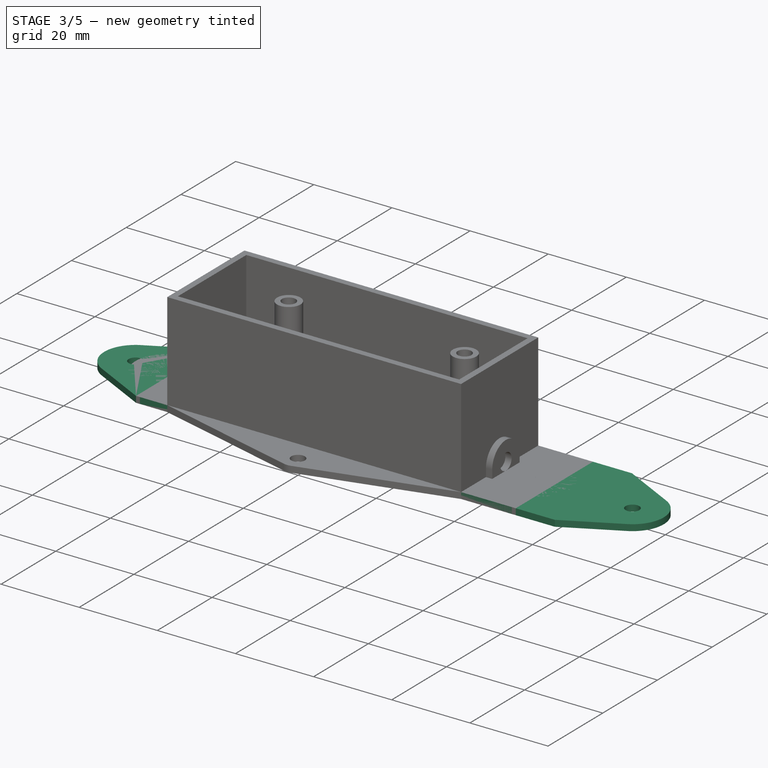
[diagram: stage 3 of 5 — iso view after this stage's code; geometry added in this stage tinted green]
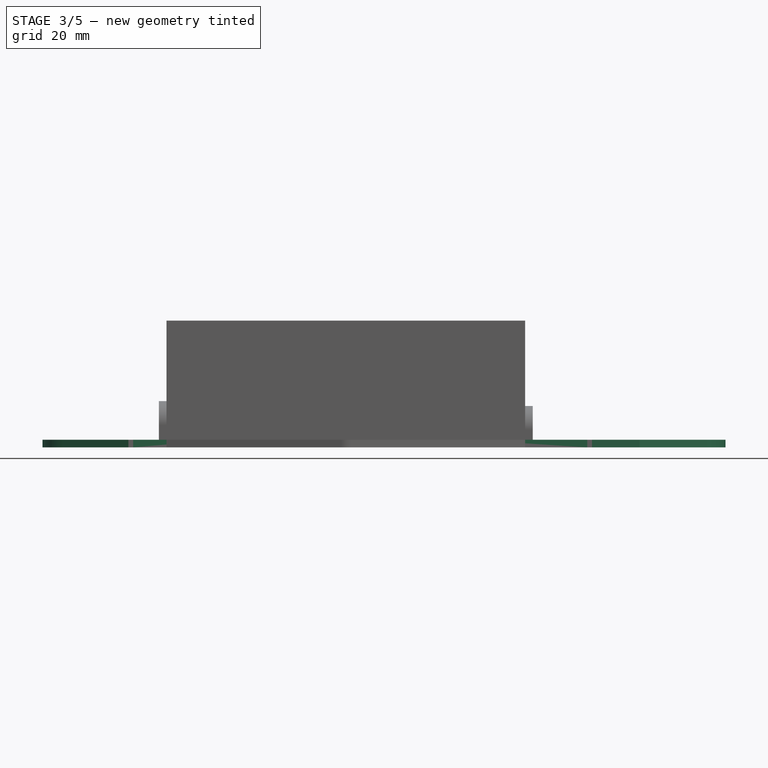
[diagram: stage 3 of 5 — front view after this stage's code; geometry added in this stage tinted green]
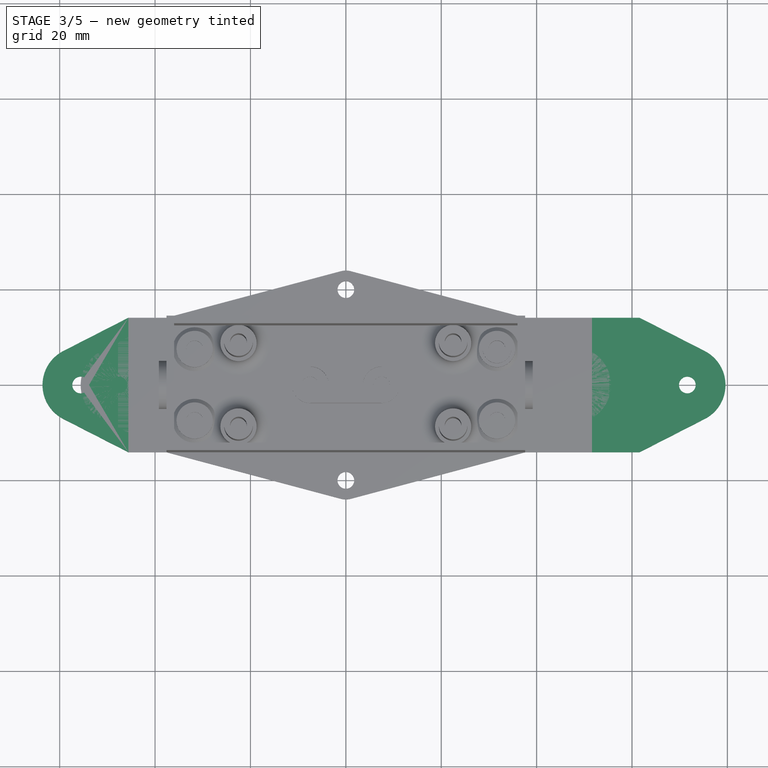
[diagram: stage 3 of 5 — top view after this stage's code; geometry added in this stage tinted green]
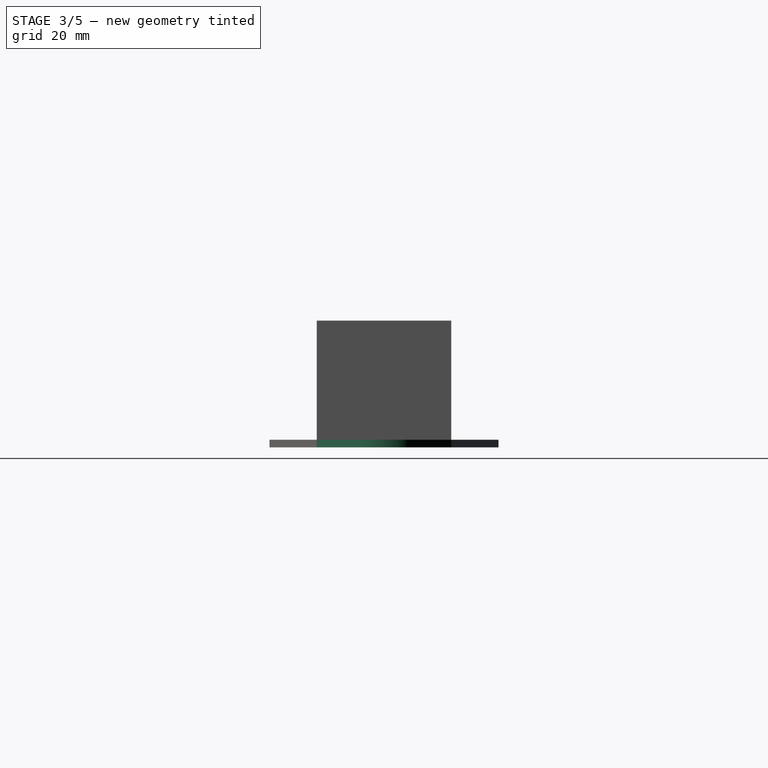
[diagram: stage 3 of 5 — right view after this stage's code; geometry added in this stage tinted green]
FEATURE [App::DocumentObjectGroup] Group001  label="Top"
  Group = -> [Pad003,Pad004,Pocket001,Chamfer,Fillet001]
FEATURE [Sketcher::SketchObject] Sketch008  label="PSUGuide"
  MapMode = 5
  sketch-geometry (14):
    g0: LineSegment [constr] StartX=-25.5 StartY=12 StartZ=0 EndX=25.5 EndY=12 EndZ=0
    g1: LineSegment [constr] StartX=25.5 StartY=12 StartZ=0 EndX=25.5 EndY=-12 EndZ=0
    g2: LineSegment [constr] StartX=25.5 StartY=-12 StartZ=0 EndX=-25.5 EndY=-12 EndZ=0
    g3: LineSegment [constr] StartX=-25.5 StartY=-12 StartZ=0 EndX=-25.5 EndY=12 EndZ=0
    g4: LineSegment [constr] StartX=25.5 StartY=12 StartZ=0 EndX=49.5 EndY=12 EndZ=0
    g5: LineSegment [constr] StartX=49.5 StartY=12 StartZ=0 EndX=49.5 EndY=-12 EndZ=0
    g6: LineSegment [constr] StartX=49.5 StartY=-12 StartZ=0 EndX=25.5 EndY=-12 EndZ=0
    g7: LineSegment [constr] StartX=-25.5 StartY=12 StartZ=0 EndX=-43.5 EndY=12 EndZ=0
    g8: LineSegment [constr] StartX=-43.5 StartY=12 StartZ=0 EndX=-43.5 EndY=-12 EndZ=0
    g9: LineSegment [constr] StartX=-43.5 StartY=-12 StartZ=0 EndX=-25.5 EndY=-12 EndZ=0
    g10: LineSegment [constr] StartX=-45.6 StartY=14.1 StartZ=0 EndX=51.6 EndY=14.1 EndZ=0
    g11: LineSegment [constr] StartX=51.6 StartY=14.1 StartZ=0 EndX=51.6 EndY=-14.1 EndZ=0
    g12: LineSegment [constr] StartX=51.6 StartY=-14.1 StartZ=0 EndX=-45.6 EndY=-14.1 EndZ=0
    g13: LineSegment [constr] StartX=-45.6 StartY=-14.1 StartZ=0 EndX=-45.6 EndY=14.1 EndZ=0
  constraints (39):
    c: Coincident(g0,g1)
    c: Coincident(g1,g2)
    c: Coincident(g2,g3)
    c: Coincident(g3,g0)
    c: Horizontal(g0)
    c: Horizontal(g2)
    c: Vertical(g1)
    c: Vertical(g3)
    c: DistanceX(g0,g0) = 51
    c: Symmetric(g0,g1,g-1)
    c: Coincident(g0,g4)
    c: Horizontal(g4)
    c: Coincident(g4,g5)
    c: Vertical(g5)
    c: Coincident(g5,g6)
    c: Coincident(g6,g1)
    c: Coincident(g0,g7)
    c: Horizontal(g7)
    c: Coincident(g7,g8)
    c: Vertical(g8)
    c: Coincident(g8,g9)
    c: Coincident(g9,g2)
    c: Horizontal(g9)
    c: DistanceY(g8,g7) = 24
    c: DistanceX(g7,g7) = 18
    c: DistanceX(g4,g4) = 24
    c: Coincident(g10,g11)
    c: Coincident(g11,g12)
    c: Coincident(g12,g13)
    c: Coincident(g13,g10)
    c: Horizontal(g10)
    c: Horizontal(g12)
    c: Vertical(g11)
    c: Vertical(g13)
    c: DistanceX(g10,g7) = 2.1
    c: DistanceY(g7,g10) = 2.1
    c: DistanceX(g5,g11) = 2.1
    c: DistanceY(g11,g5) = 2.1
    c: Horizontal(g6)
FEATURE [Sketcher::SketchObject] Sketch012  label="PSUBottomBase"
  MapMode = 5
  sketch-geometry (26):
    g0: LineSegment [constr] StartX=-25.5 StartY=12 StartZ=0 EndX=25.5 EndY=12 EndZ=0
    g1: LineSegment [constr] StartX=25.5 StartY=12 StartZ=0 EndX=25.5 EndY=-12 EndZ=0
    g2: LineSegment [constr] StartX=25.5 StartY=-12 StartZ=0 EndX=-25.5 EndY=-12 EndZ=0
    g3: LineSegment [constr] StartX=-25.5 StartY=-12 StartZ=0 EndX=-25.5 EndY=12 EndZ=0
    g4: LineSegment [constr] StartX=25.5 StartY=12 StartZ=0 EndX=49.5 EndY=12 EndZ=0
    g5: LineSegment [constr] StartX=49.5 StartY=12 StartZ=0 EndX=49.5 EndY=-12 EndZ=0
    g6: LineSegment [constr] StartX=49.5 StartY=-12 StartZ=0 EndX=25.5 EndY=-12 EndZ=0
    g7: LineSegment [constr] StartX=-25.5 StartY=12 StartZ=0 EndX=-43.5 EndY=12 EndZ=0
    g8: LineSegment [constr] StartX=-43.5 StartY=12 StartZ=0 EndX=-43.5 EndY=-12 EndZ=0
    g9: LineSegment [constr] StartX=-43.5 StartY=-12 StartZ=0 EndX=-25.5 EndY=-12 EndZ=0
    g10: LineSegment StartX=-45.6 StartY=14.1 StartZ=0 EndX=51.6 EndY=14.1 EndZ=0
    g11: LineSegment [constr] StartX=51.6 StartY=14.1 StartZ=0 EndX=51.6 EndY=-14.1 EndZ=0
    g12: LineSegment StartX=51.6 StartY=-14.1 StartZ=0 EndX=-45.6 EndY=-14.1 EndZ=0
    g13: LineSegment [constr] StartX=-45.6 StartY=-14.1 StartZ=0 EndX=-45.6 EndY=14.1 EndZ=0
    g14: LineSegment [constr] StartX=-45.6 StartY=0 StartZ=0 EndX=-55.6 EndY=0 EndZ=0
    g15: LineSegment [constr] StartX=51.6 StartY=0 StartZ=0 EndX=71.6 EndY=0 EndZ=0
    g16: ArcOfCircle CenterX=-55.6 CenterY=0 CenterZ=0 NormalX=0 NormalY=0 NormalZ=1 AngleXU=0 Radius=8 StartAngle=2.04356 EndAngle=4.23963
    g17: ArcOfCircle CenterX=71.6 CenterY=0 CenterZ=0 NormalX=0 NormalY=0 NormalZ=1 AngleXU=0 Radius=8 StartAngle=5.18515 EndAngle=7.38122
    g18: LineSegment StartX=-59.2428 StartY=7.12252 StartZ=0 EndX=-45.6 EndY=14.1 EndZ=0
    g19: LineSegment StartX=-59.2428 StartY=-7.12252 StartZ=0 EndX=-45.6 EndY=-14.1 EndZ=0
    g20: LineSegment StartX=61.6 StartY=14.1 StartZ=0 EndX=75.2428 EndY=7.12252 EndZ=0
    g21: LineSegment StartX=61.6 StartY=-14.1 StartZ=0 EndX=75.2428 EndY=-7.12252 EndZ=0
    g22: Circle CenterX=-55.6 CenterY=0 CenterZ=0 NormalX=0 NormalY=0 NormalZ=1 AngleXU=0 Radius=1.75
    g23: Circle CenterX=71.6 CenterY=0 CenterZ=0 NormalX=0 NormalY=0 NormalZ=1 AngleXU=0 Radius=1.75
    g24: LineSegment StartX=51.6 StartY=-14.1 StartZ=0 EndX=61.6 EndY=-14.1 EndZ=0
    g25: LineSegment StartX=51.6 StartY=14.1 StartZ=0 EndX=61.6 EndY=14.1 EndZ=0
  constraints (73):
    c: Coincident(g0,g1)
    c: Coincident(g1,g2)
    c: Coincident(g2,g3)
    c: Coincident(g3,g0)
    c: Horizontal(g0)
    c: Horizontal(g2)
    c: Vertical(g1)
    c: Vertical(g3)
    c: DistanceX(g0,g0) = 51
    c: Symmetric(g0,g1,g-1)
    c: Coincident(g0,g4)
    c: Horizontal(g4)
    c: Coincident(g4,g5)
    c: Vertical(g5)
    c: Coincident(g5,g6)
    c: Coincident(g6,g1)
    c: Coincident(g0,g7)
    c: Horizontal(g7)
    c: Coincident(g7,g8)
    c: Vertical(g8)
    c: Coincident(g8,g9)
    c: Coincident(g9,g2)
    c: Horizontal(g9)
    c: DistanceY(g8,g7) = 24
    c: DistanceX(g7,g7) = 18
    c: DistanceX(g4,g4) = 24
    c: Coincident(g10,g11)
    c: Coincident(g11,g12)
    c: Coincident(g12,g13)
    c: Coincident(g13,g10)
    c: Horizontal(g10)
    c: Horizontal(g12)
    c: Vertical(g11)
    c: Vertical(g13)
    c: DistanceX(g10,g7) = 2.1
    c: DistanceY(g7,g10) = 2.1
    c: DistanceX(g5,g11) = 2.1
    c: DistanceY(g11,g5) = 2.1
    c: Horizontal(g6)
    c: PointOnObject(g14,g13)
    c: Horizontal(g14)
    c: PointOnObject(g14,g-1)
    c: PointOnObject(g15,g11)
    c: Horizontal(g15)
    c: PointOnObject(g15,g-1)
    c: Coincident(g16,g14)
    c: Coincident(g17,g15)
    c: Coincident(g18,g16)
    c: Coincident(g18,g10)
    c: Coincident(g19,g16)
    c: Coincident(g19,g12)
    c: Radius(g16) = 8
    c: Tangent(g16,g18)
    c: Tangent(g16,g19)
    c: Equal(g16,g17)
    c: Coincident(g20,g17)
    c: Coincident(g21,g17)
    c: Tangent(g20,g17)
    c: Tangent(g21,g17)
    c: Coincident(g22,g14)
    c: Coincident(g23,g15)
    c: Radius(g22) = 1.75
    c: Equal(g22,g23)
    c: DistanceX(g14,g14) = 10
    c: DistanceX(g15,g15) = 20
    c: Coincident(g24,g11)
    c: Coincident(g24,g21)
    c: Horizontal(g24)
    c: Coincident(g25,g10)
    c: Coincident(g25,g20)
    c: Horizontal(g25)
    c: Equal(g25,g24)
    c: DistanceX(g25,g25) = 10
FEATURE [PartDesign::Pad] Pad007
  Length = 1.6
  Length2 = 100
  Profile = -> Sketch012
  Type = 0
FEATURE [Sketcher::SketchObject] Sketch017  label="PSUTopBase"
  MapMode = 5
  sketch-geometry (14):
    g0: LineSegment [constr] StartX=-25.5 StartY=12 StartZ=0 EndX=25.5 EndY=12 EndZ=0
    g1: LineSegment [constr] StartX=25.5 StartY=12 StartZ=0 EndX=25.5 EndY=-12 EndZ=0
    g2: LineSegment [constr] StartX=25.5 StartY=-12 StartZ=0 EndX=-25.5 EndY=-12 EndZ=0
    g3: LineSegment [constr] StartX=-25.5 StartY=-12 StartZ=0 EndX=-25.5 EndY=12 EndZ=0
    g4: LineSegment [constr] StartX=25.5 StartY=12 StartZ=0 EndX=49.5 EndY=12 EndZ=0
    g5: LineSegment [constr] StartX=49.5 StartY=12 StartZ=0 EndX=49.5 EndY=-12 EndZ=0
    g6: LineSegment [constr] StartX=49.5 StartY=-12 StartZ=0 EndX=25.5 EndY=-12 EndZ=0
    g7: LineSegment [constr] StartX=-25.5 StartY=12 StartZ=0 EndX=-43.5 EndY=12 EndZ=0
    g8: LineSegment [constr] StartX=-43.5 StartY=12 StartZ=0 EndX=-43.5 EndY=-12 EndZ=0
    g9: LineSegment [constr] StartX=-43.5 StartY=-12 StartZ=0 EndX=-25.5 EndY=-12 EndZ=0
    g10: LineSegment StartX=-45.6 StartY=14.1 StartZ=0 EndX=51.6 EndY=14.1 EndZ=0
    g11: LineSegment StartX=51.6 StartY=14.1 StartZ=0 EndX=51.6 EndY=-14.1 EndZ=0
    g12: LineSegment StartX=51.6 StartY=-14.1 StartZ=0 EndX=-45.6 EndY=-14.1 EndZ=0
    g13: LineSegment StartX=-45.6 StartY=-14.1 StartZ=0 EndX=-45.6 EndY=14.1 EndZ=0
  constraints (39):
    c: Coincident(g0,g1)
    c: Coincident(g1,g2)
    c: Coincident(g2,g3)
    c: Coincident(g3,g0)
    c: Horizontal(g0)
    c: Horizontal(g2)
    c: Vertical(g1)
    c: Vertical(g3)
    c: DistanceX(g0,g0) = 51
    c: Symmetric(g0,g1,g-1)
    c: Coincident(g0,g4)
    c: Horizontal(g4)
    c: Coincident(g4,g5)
    c: Vertical(g5)
    c: Coincident(g5,g6)
    c: Coincident(g6,g1)
    c: Coincident(g0,g7)
    c: Horizontal(g7)
    c: Coincident(g7,g8)
    c: Vertical(g8)
    c: Coincident(g8,g9)
    c: Coincident(g9,g2)
    c: Horizontal(g9)
    c: DistanceY(g8,g7) = 24
    c: DistanceX(g7,g7) = 18
    c: DistanceX(g4,g4) = 24
    c: Coincident(g10,g11)
    c: Coincident(g11,g12)
    c: Coincident(g12,g13)
    c: Coincident(g13,g10)
    c: Horizontal(g10)
    c: Horizontal(g12)
    c: Vertical(g11)
    c: Vertical(g13)
    c: DistanceX(g10,g7) = 2.1
    c: DistanceY(g7,g10) = 2.1
    c: DistanceX(g5,g11) = 2.1
    c: DistanceY(g11,g5) = 2.1
    c: Horizontal(g6)
FEATURE [PartDesign::Pad] Pad011
  Length = 1.6
  Length2 = 100
  Profile = -> Sketch017
  Type = 0
FEATURE [Sketcher::SketchObject] Sketch018  label="PSUTopScrewHeadHolders"
  MapMode = 5
  Placement = pos=(0,0,1.6) rot=(0,0,1;0rad)
  Support = -> [Pad011]
  sketch-geometry (16):
    g0: LineSegment [constr] StartX=-25.5 StartY=12 StartZ=0 EndX=25.5 EndY=12 EndZ=0
    g1: LineSegment [constr] StartX=25.5 StartY=12 StartZ=0 EndX=25.5 EndY=-12 EndZ=0
    g2: LineSegment [constr] StartX=25.5 StartY=-12 StartZ=0 EndX=-25.5 EndY=-12 EndZ=0
    g3: LineSegment [constr] StartX=-25.5 StartY=-12 StartZ=0 EndX=-25.5 EndY=12 EndZ=0
    g4: LineSegment [constr] StartX=-27.6 StartY=14.1 StartZ=0 EndX=27.6 EndY=14.1 EndZ=0
    g5: LineSegment [constr] StartX=27.6 StartY=14.1 StartZ=0 EndX=27.6 EndY=-14.1 EndZ=0
    g6: LineSegment [constr] StartX=27.6 StartY=-14.1 StartZ=0 EndX=-27.6 EndY=-14.1 EndZ=0
    g7: LineSegment [constr] StartX=-27.6 StartY=-14.1 StartZ=0 EndX=-27.6 EndY=14.1 EndZ=0
    g8: Circle CenterX=-22.5 CenterY=8.75 CenterZ=0 NormalX=0 NormalY=0 NormalZ=1 AngleXU=0 Radius=1.75
    g9: Circle CenterX=-22.5 CenterY=-8.75 CenterZ=0 NormalX=0 NormalY=0 NormalZ=1 AngleXU=0 Radius=1.75
    g10: Circle CenterX=22.5 CenterY=8.75 CenterZ=0 NormalX=0 NormalY=0 NormalZ=1 AngleXU=0 Radius=1.75
    g11: Circle CenterX=22.5 CenterY=-8.75 CenterZ=0 NormalX=0 NormalY=0 NormalZ=1 AngleXU=0 Radius=1.75
    g12: Circle CenterX=-22.5 CenterY=8.75 CenterZ=0 NormalX=0 NormalY=0 NormalZ=1 AngleXU=0 Radius=3.8
    g13: Circle CenterX=22.5 CenterY=8.75 CenterZ=0 NormalX=0 NormalY=0 NormalZ=1 AngleXU=0 Radius=3.8
    g14: Circle CenterX=22.5 CenterY=-8.75 CenterZ=0 NormalX=0 NormalY=0 NormalZ=1 AngleXU=0 Radius=3.8
    g15: Circle CenterX=-22.5 CenterY=-8.75 CenterZ=0 NormalX=0 NormalY=0 NormalZ=1 AngleXU=0 Radius=3.8
  constraints (39):
    c: Coincident(g0,g1)
    c: Coincident(g1,g2)
    c: Coincident(g2,g3)
    c: Coincident(g3,g0)
    c: Horizontal(g0)
    c: Horizontal(g2)
    c: Vertical(g1)
    c: Vertical(g3)
    c: DistanceX(g0,g0) = 51
    c: DistanceY(g3,g3) = 24
    c: Symmetric(g0,g1,g-1)
    c: Coincident(g4,g5)
    c: Coincident(g5,g6)
    c: Coincident(g6,g7)
    c: Coincident(g7,g4)
    c: Horizontal(g4)
    c: Horizontal(g6)
    c: Vertical(g5)
    c: Vertical(g7)
    c: Symmetric(g4,g5,g-1)
    c: DistanceX(g4,g0) = 2.1
    c: DistanceY(g0,g4) = 2.1
    c: Symmetric(g8,g9,g-1)
    c: DistanceY(g9,g8) = 17.5
    c: Equal(g8,g9)
    c: Radius(g8) = 1.75
    c: Equal(g8,g10)
    c: Equal(g8,g11)
    c: Symmetric(g8,g10,g-2)
    c: Symmetric(g8,g11,g-1)
    c: DistanceX(g8,g10) = 45
    c: Coincident(g12,g8)
    c: Radius(g12) = 3.8
    c: Coincident(g13,g10)
    c: Coincident(g14,g11)
    c: Coincident(g15,g9)
    c: Equal(g12,g15)
    c: Equal(g12,g13)
    c: Equal(g12,g14)
FEATURE [PartDesign::Pad] Pad012
  Length = 3
  Length2 = 100
  Profile = -> Sketch018
  Type = 0
FEATURE [Sketcher::SketchObject] Sketch019  label="PSUTopScrewHeadHoles"
  ExternalGeometry = -> [Pad012]
  MapMode = 5
  Placement = pos=(0,0,0) rot=(1,0,0;3.14159rad)
  Support = -> [Pad012]
  sketch-geometry (4):
    g0: Circle CenterX=-22.5 CenterY=8.75 CenterZ=0 NormalX=0 NormalY=0 NormalZ=1 AngleXU=0 Radius=3
    g1: Circle CenterX=22.5 CenterY=8.75 CenterZ=0 NormalX=0 NormalY=0 NormalZ=1 AngleXU=0 Radius=3
    g2: Circle CenterX=22.5 CenterY=-8.75 CenterZ=0 NormalX=0 NormalY=0 NormalZ=1 AngleXU=0 Radius=3
    g3: Circle CenterX=-22.5 CenterY=-8.75 CenterZ=0 NormalX=0 NormalY=0 NormalZ=1 AngleXU=0 Radius=3
  constraints (8):
    c: Coincident(g0,g-3)
    c: Coincident(g1,g-4)
    c: Coincident(g2,g-5)
    c: Equal(g0,g1)
    c: Equal(g1,g2)
    c: Equal(g2,g3)
    c: Radius(g0) = 3
    c: Coincident(g3,g-6)
FEATURE [PartDesign::Pocket] Pocket005
  Length = 3
  Length2 = 100
  Profile = -> Sketch019
  Type = 0
FEATURE [PartDesign::Chamfer] Chamfer003
  Base = -> Pocket005 [Edge13,Edge14,Edge15,Edge12]
  Size = 0.4
FEATURE [PartDesign::Fillet] Fillet004
  Base = -> Chamfer003 [Edge28,Edge29,Edge30,Edge27]
  Radius = 2.9
FEATURE [Sketcher::SketchObject] Sketch020  label="PSUTopScrewPipes"
  ExternalGeometry = -> [Fillet004]
  MapMode = 5
  Placement = pos=(0,0,4.6) rot=(0,0,1;0rad)
  Support = -> [Fillet004]
  sketch-geometry (8):
    g0: Circle CenterX=-22.5 CenterY=8.75 CenterZ=0 NormalX=0 NormalY=0 NormalZ=1 AngleXU=0 Radius=1.75
    g1: Circle CenterX=22.5 CenterY=8.75 CenterZ=0 NormalX=0 NormalY=0 NormalZ=1 AngleXU=0 Radius=1.75
    g2: Circle CenterX=22.5 CenterY=-8.75 CenterZ=0 NormalX=0 NormalY=0 NormalZ=1 AngleXU=0 Radius=1.75
    g3: Circle CenterX=-22.5 CenterY=-8.75 CenterZ=0 NormalX=0 NormalY=0 NormalZ=1 AngleXU=0 Radius=1.75
    g4: Circle CenterX=-22.5 CenterY=8.75 CenterZ=0 NormalX=0 NormalY=0 NormalZ=1 AngleXU=0 Radius=3
    g5: Circle CenterX=22.5 CenterY=8.75 CenterZ=0 NormalX=0 NormalY=0 NormalZ=1 AngleXU=0 Radius=3
    g6: Circle CenterX=22.5 CenterY=-8.75 CenterZ=0 NormalX=0 NormalY=0 NormalZ=1 AngleXU=0 Radius=3
    g7: Circle CenterX=-22.5 CenterY=-8.75 CenterZ=0 NormalX=0 NormalY=0 NormalZ=1 AngleXU=0 Radius=3
  constraints (16):
    c: Coincident(g0,g-3)
    c: Coincident(g1,g-4)
    c: Coincident(g2,g-5)
    c: Coincident(g3,g-6)
    c: Equal(g0,g1)
    c: Equal(g1,g2)
    c: Equal(g2,g3)
    c: Radius(g0) = 1.75
    c: Coincident(g4,g0)
    c: Coincident(g5,g1)
    c: Coincident(g6,g2)
    c: Coincident(g7,g3)
    c: Equal(g4,g5)
    c: Equal(g5,g6)
    c: Equal(g6,g7)
    c: Radius(g4) = 3
FEATURE [PartDesign::Pad] Pad013
  Length = 16.4
  Length2 = 100
  Profile = -> Sketch020
  Type = 0
FEATURE [App::DocumentObjectGroup] Group003  label="PSUBottom"
  Group = -> [Pad007,Pad008,Pocket002,Chamfer002,Pad009,Fillet006,Pad010,Pocket003,Pocket004,Fillet007]
FEATURE [PartDesign::Fillet] Fillet010
  Base = -> Pad013 [Edge7,Edge36,Edge3,Edge25]
  Radius = 1
FEATURE [Sketcher::SketchObject] Sketch021  label="PSUTopWallCuts"
  MapMode = 5
  Placement = pos=(0,0,1.6) rot=(0,0,1;0rad)
  sketch-geometry (18):
    g0: LineSegment [constr] StartX=-25.5 StartY=12 StartZ=0 EndX=25.5 EndY=12 EndZ=0
    g1: LineSegment [constr] StartX=25.5 StartY=12 StartZ=0 EndX=25.5 EndY=-12 EndZ=0
    g2: LineSegment [constr] StartX=25.5 StartY=-12 StartZ=0 EndX=-25.5 EndY=-12 EndZ=0
    g3: LineSegment [constr] StartX=-25.5 StartY=-12 StartZ=0 EndX=-25.5 EndY=12 EndZ=0
    g4: LineSegment [constr] StartX=25.5 StartY=12 StartZ=0 EndX=49.5 EndY=12 EndZ=0
    g5: LineSegment [constr] StartX=49.5 StartY=12 StartZ=0 EndX=49.5 EndY=-12 EndZ=0
    g6: LineSegment [constr] StartX=49.5 StartY=-12 StartZ=0 EndX=25.5 EndY=-12 EndZ=0
    g7: LineSegment [constr] StartX=-25.5 StartY=12 StartZ=0 EndX=-43.5 EndY=12 EndZ=0
    g8: LineSegment [constr] StartX=-43.5 StartY=12 StartZ=0 EndX=-43.5 EndY=-12 EndZ=0
    g9: LineSegment [constr] StartX=-43.5 StartY=-12 StartZ=0 EndX=-25.5 EndY=-12 EndZ=0
    g10: LineSegment StartX=-45.6 StartY=14.1 StartZ=0 EndX=51.6 EndY=14.1 EndZ=0
    g11: LineSegment StartX=51.6 StartY=14.1 StartZ=0 EndX=51.6 EndY=-14.1 EndZ=0
    g12: LineSegment StartX=51.6 StartY=-14.1 StartZ=0 EndX=-45.6 EndY=-14.1 EndZ=0
    g13: LineSegment StartX=-45.6 StartY=-14.1 StartZ=0 EndX=-45.6 EndY=14.1 EndZ=0
    g14: LineSegment StartX=-43.9 StartY=12.4 StartZ=0 EndX=49.9 EndY=12.4 EndZ=0
    g15: LineSegment StartX=49.9 StartY=12.4 StartZ=0 EndX=49.9 EndY=-12.4 EndZ=0
    g16: LineSegment StartX=49.9 StartY=-12.4 StartZ=0 EndX=-43.9 EndY=-12.4 EndZ=0
    g17: LineSegment StartX=-43.9 StartY=-12.4 StartZ=0 EndX=-43.9 EndY=12.4 EndZ=0
  constraints (51):
    c: Coincident(g0,g1)
    c: Coincident(g1,g2)
    c: Coincident(g2,g3)
    c: Coincident(g3,g0)
    c: Horizontal(g0)
    c: Horizontal(g2)
    c: Vertical(g1)
    c: Vertical(g3)
    c: DistanceX(g0,g0) = 51
    c: Symmetric(g0,g1,g-1)
    c: Coincident(g0,g4)
    c: Horizontal(g4)
    c: Coincident(g4,g5)
    c: Vertical(g5)
    c: Coincident(g5,g6)
    c: Coincident(g6,g1)
    c: Coincident(g0,g7)
    c: Horizontal(g7)
    c: Coincident(g7,g8)
    c: Vertical(g8)
    c: Coincident(g8,g9)
    c: Coincident(g9,g2)
    c: Horizontal(g9)
    c: DistanceY(g8,g7) = 24
    c: DistanceX(g7,g7) = 18
    c: DistanceX(g4,g4) = 24
    c: Coincident(g10,g11)
    c: Coincident(g11,g12)
    c: Coincident(g12,g13)
    c: Coincident(g13,g10)
    c: Horizontal(g10)
    c: Horizontal(g12)
    c: Vertical(g11)
    c: Vertical(g13)
    c: DistanceX(g10,g7) = 2.1
    c: DistanceY(g7,g10) = 2.1
    c: DistanceX(g5,g11) = 2.1
    c: DistanceY(g11,g5) = 2.1
    c: Horizontal(g6)
    c: Coincident(g14,g15)
    c: Coincident(g15,g16)
    c: Coincident(g16,g17)
    c: Coincident(g17,g14)
    c: Horizontal(g14)
    c: Horizontal(g16)
    c: Vertical(g15)
    c: Vertical(g17)
    c: DistanceX(g12,g16) = 1.7
    c: DistanceY(g12,g16) = 1.7
    c: DistanceX(g14,g10) = 1.7
    c: DistanceY(g14,g10) = 1.7
FEATURE [PartDesign::Pad] Pad014
  Length = 4
  Length2 = 100
  Placement = pos=(0,0,1.6) rot=(0,0,1;0rad)
  Profile = -> Sketch021
  Type = 0
FEATURE [Part::Cut] Cut
  Base = -> Fillet010
  Tool = -> Pad014
FEATURE [Part::Cut] Cut001
  Base = -> Fillet012
  Tool = -> Pad018
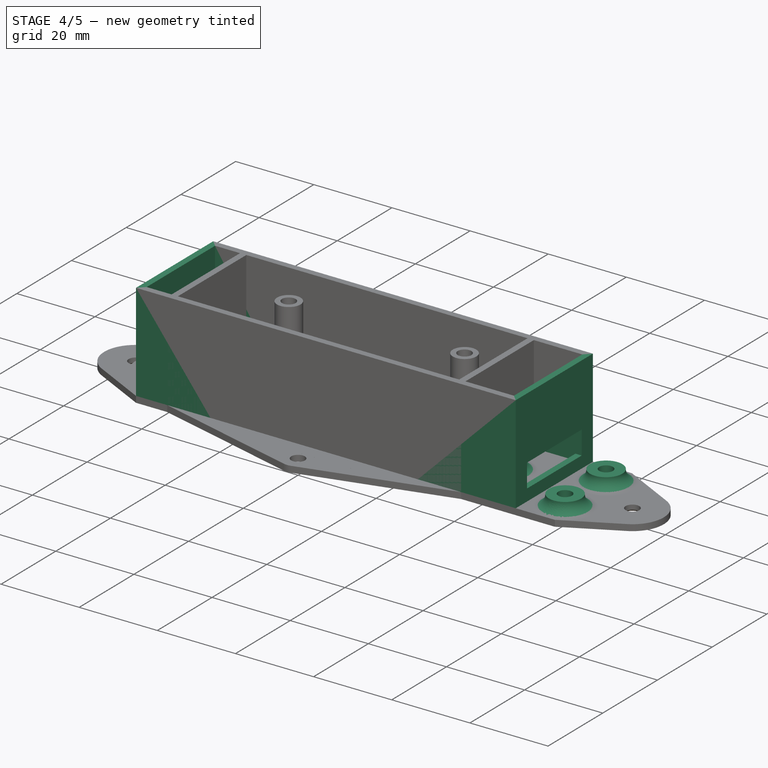
[diagram: stage 4 of 5 — iso view after this stage's code; geometry added in this stage tinted green]
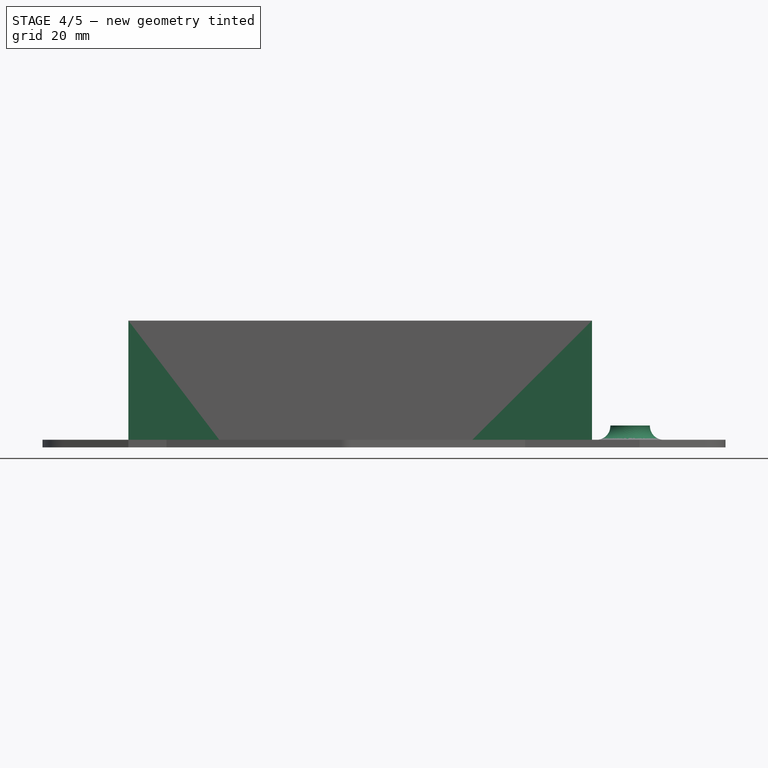
[diagram: stage 4 of 5 — front view after this stage's code; geometry added in this stage tinted green]
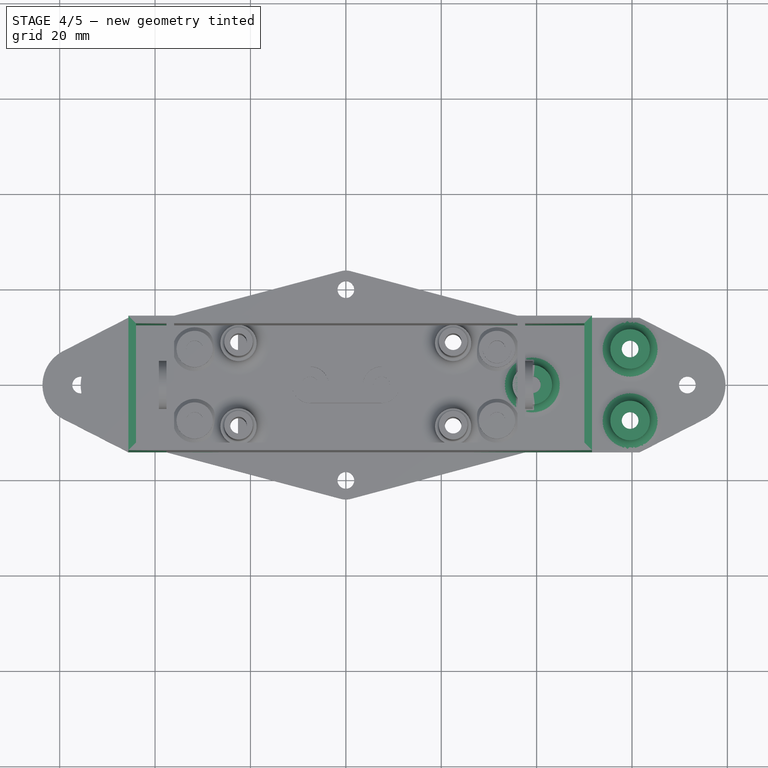
[diagram: stage 4 of 5 — top view after this stage's code; geometry added in this stage tinted green]
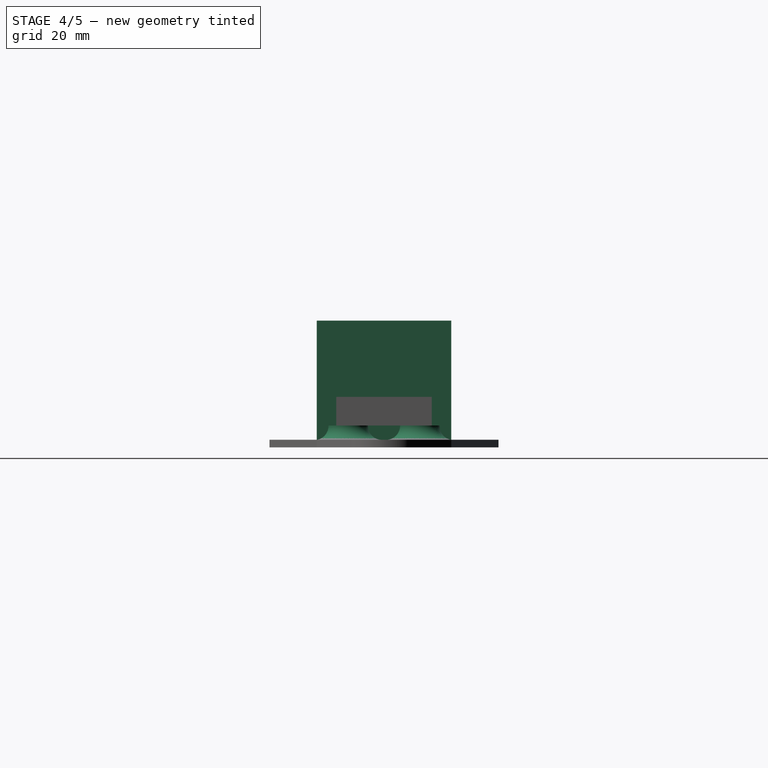
[diagram: stage 4 of 5 — right view after this stage's code; geometry added in this stage tinted green]
FEATURE [Sketcher::SketchObject] Sketch005
  MapMode = 5
  Placement = pos=(0,0,1.6) rot=(0,0,1;0rad)
  Support = -> [Pocket]
  sketch-geometry (18):
    g0: LineSegment StartX=-22.6 StartY=17.6 StartZ=0 EndX=22.6 EndY=17.6 EndZ=0
    g1: LineSegment StartX=-22.6 StartY=-17.6 StartZ=0 EndX=22.6 EndY=-17.6 EndZ=0
    g2: LineSegment [constr] StartX=-20.32 StartY=15.24 StartZ=0 EndX=20.32 EndY=15.24 EndZ=0
    g3: LineSegment [constr] StartX=20.32 StartY=15.24 StartZ=0 EndX=20.32 EndY=-15.24 EndZ=0
    g4: LineSegment [constr] StartX=20.32 StartY=-15.24 StartZ=0 EndX=-20.32 EndY=-15.24 EndZ=0
    g5: LineSegment [constr] StartX=-20.32 StartY=-15.24 StartZ=0 EndX=-20.32 EndY=15.24 EndZ=0
    g6: LineSegment StartX=-21 StartY=16 StartZ=0 EndX=21 EndY=16 EndZ=0
    g7: LineSegment StartX=-22.6 StartY=17.6 StartZ=0 EndX=-22.6 EndY=16 EndZ=0
    g8: LineSegment StartX=-22.6 StartY=16 StartZ=0 EndX=-21 EndY=16 EndZ=0
    g9: LineSegment StartX=-21 StartY=-16 StartZ=0 EndX=21 EndY=-16 EndZ=0
    g10: LineSegment StartX=-21 StartY=-16 StartZ=0 EndX=-22.6 EndY=-16 EndZ=0
    g11: LineSegment StartX=-22.6 StartY=-17.6 StartZ=0 EndX=-22.6 EndY=-16 EndZ=0
    g12: LineSegment StartX=22.6 StartY=-17.6 StartZ=0 EndX=22.6 EndY=-6 EndZ=0
    g13: LineSegment StartX=22.6 StartY=17.6 StartZ=0 EndX=22.6 EndY=6 EndZ=0
    g14: LineSegment StartX=21 StartY=16 StartZ=0 EndX=21 EndY=6 EndZ=0
    g15: LineSegment StartX=21 StartY=6 StartZ=0 EndX=22.6 EndY=6 EndZ=0
    g16: LineSegment StartX=21 StartY=-16 StartZ=0 EndX=21 EndY=-6 EndZ=0
    g17: LineSegment StartX=21 StartY=-6 StartZ=0 EndX=22.6 EndY=-6 EndZ=0
  constraints (53):
    c: Symmetric(g0,g1,g-1)
    c: DistanceY(g1,g0) = 35.2
    c: DistanceX(g0,g0) = 45.2
    c: Horizontal(g0)
    c: Horizontal(g1)
    c: Equal(g0,g1)
    c: Coincident(g2,g3)
    c: Coincident(g3,g4)
    c: Coincident(g4,g5)
    c: Coincident(g5,g2)
    c: Horizontal(g2)
    c: Horizontal(g4)
    c: Vertical(g3)
    c: Vertical(g5)
    c: DistanceX(g2,g2) = 40.64
    c: DistanceY(g5,g5) = 30.48
    c: Symmetric(g2,g3,g-1)
    c: Equal(g0,g1)
    c: Horizontal(g6)
    c: Symmetric(g6,g6,g-2)
    c: DistanceX(g6,g0) = 1.6
    c: DistanceY(g6,g0) = 1.6
    c: Coincident(g7,g0)
    c: Vertical(g7)
    c: Coincident(g8,g7)
    c: Coincident(g8,g6)
    c: Horizontal(g8)
    c: Horizontal(g9)
    c: Symmetric(g9,g9,g-2)
    c: DistanceX(g9,g1) = 1.6
    c: DistanceY(g1,g9) = 1.6
    c: Coincident(g10,g9)
    c: Horizontal(g10)
    c: Coincident(g11,g1)
    c: Vertical(g11)
    c: Coincident(g10,g11)
    c: Coincident(g12,g1)
    c: Vertical(g12)
    c: Coincident(g13,g0)
    c: Vertical(g13)
    c: Tangent(g13,g12)
    c: Symmetric(g12,g13,g-1)
    c: DistanceY(g12,g13) = 12
    c: Coincident(g14,g6)
    c: Vertical(g14)
    c: Coincident(g15,g13)
    c: Horizontal(g15)
    c: Coincident(g14,g15)
    c: Coincident(g9,g16)
    c: Vertical(g16)
    c: Coincident(g16,g17)
    c: Coincident(g17,g12)
    c: Horizontal(g17)
FEATURE [Sketcher::SketchObject] Sketch006  label="Base2"
  MapMode = 5
  sketch-geometry (12):
    g0: LineSegment [constr] StartX=-22.6 StartY=17.6 StartZ=0 EndX=22.6 EndY=17.6 EndZ=0
    g1: LineSegment [constr] StartX=12.97 StartY=-17.6 StartZ=0 EndX=22.6 EndY=-17.6 EndZ=0
    g2: LineSegment StartX=-22.6 StartY=17.6 StartZ=0 EndX=12.97 EndY=17.6 EndZ=0
    g3: LineSegment StartX=12.97 StartY=17.6 StartZ=0 EndX=12.97 EndY=-17.6 EndZ=0
    g4: LineSegment StartX=12.97 StartY=-17.6 StartZ=0 EndX=-22.6 EndY=-17.6 EndZ=0
    g5: LineSegment StartX=-22.6 StartY=-17.6 StartZ=0 EndX=-22.6 EndY=-6 EndZ=0
    g6: LineSegment StartX=-22.6 StartY=-6 StartZ=0 EndX=-11.6 EndY=-6 EndZ=0
    g7: LineSegment StartX=-11.6 StartY=-6 StartZ=0 EndX=-11.6 EndY=6 EndZ=0
    g8: LineSegment StartX=-11.6 StartY=6 StartZ=0 EndX=-22.6 EndY=6 EndZ=0
    g9: LineSegment StartX=-22.6 StartY=6 StartZ=0 EndX=-22.6 EndY=17.6 EndZ=0
    g10: LineSegment [constr] StartX=22.6 StartY=17.6 StartZ=0 EndX=22.6 EndY=-17.6 EndZ=0
    g11: LineSegment [constr] StartX=-22.6 StartY=6 StartZ=0 EndX=-22.6 EndY=-6 EndZ=0
  constraints (34):
    c: Symmetric(g2,g1,g-1)
    c: DistanceY(g4,g2) = 35.2
    c: DistanceX(g2,g0) = 45.2
    c: Horizontal(g0)
    c: Horizontal(g2)
    c: Coincident(g2,g3)
    c: PointOnObject(g3,g1)
    c: Vertical(g3)
    c: Coincident(g3,g4)
    c: Horizontal(g4)
    c: Coincident(g4,g5)
    c: Vertical(g5)
    c: Coincident(g5,g6)
    c: Horizontal(g6)
    c: Coincident(g6,g7)
    c: Vertical(g7)
    c: Coincident(g7,g8)
    c: Horizontal(g8)
    c: Coincident(g8,g9)
    c: Coincident(g9,g2)
    c: Vertical(g9)
    c: Symmetric(g7,g6,g-1)
    c: Horizontal(g1)
    c: Coincident(g10,g0)
    c: Coincident(g10,g1)
    c: Vertical(g10)
    c: DistanceY(g7,g7) = 12
    c: DistanceX(g6,g6) = 11
    c: Coincident(g11,g8)
    c: Coincident(g11,g5)
    c: Vertical(g11)
    c: Coincident(g1,g3)
    c: Coincident(g0,g2)
    c: DistanceX(g2,g0) = 9.63
FEATURE [PartDesign::Pad] Pad003
  Length = 1.6
  Length2 = 100
  Profile = -> Sketch006
  Type = 0
FEATURE [Sketcher::SketchObject] Sketch010  label="PSUBottomNutHolders"
  MapMode = 5
  Placement = pos=(0,0,1.6) rot=(0,0,1;0rad)
  Support = -> [Pad007]
  sketch-geometry (25):
    g0: LineSegment [constr] StartX=-25.5 StartY=12 StartZ=0 EndX=25.5 EndY=12 EndZ=0
    g1: LineSegment [constr] StartX=25.5 StartY=12 StartZ=0 EndX=25.5 EndY=-12 EndZ=0
    g2: LineSegment [constr] StartX=25.5 StartY=-12 StartZ=0 EndX=-25.5 EndY=-12 EndZ=0
    g3: LineSegment [constr] StartX=-25.5 StartY=-12 StartZ=0 EndX=-25.5 EndY=12 EndZ=0
    g4: LineSegment [constr] StartX=-27.6 StartY=14.1 StartZ=0 EndX=27.6 EndY=14.1 EndZ=0
    g5: LineSegment [constr] StartX=27.6 StartY=14.1 StartZ=0 EndX=27.6 EndY=-14.1 EndZ=0
    g6: LineSegment [constr] StartX=27.6 StartY=-14.1 StartZ=0 EndX=-27.6 EndY=-14.1 EndZ=0
    g7: LineSegment [constr] StartX=-27.6 StartY=-14.1 StartZ=0 EndX=-27.6 EndY=14.1 EndZ=0
    g8: Circle CenterX=-22.5 CenterY=8.75 CenterZ=0 NormalX=0 NormalY=0 NormalZ=1 AngleXU=0 Radius=1.75
    g9: Circle CenterX=-22.5 CenterY=-8.75 CenterZ=0 NormalX=0 NormalY=0 NormalZ=1 AngleXU=0 Radius=1.75
    g10: Circle CenterX=22.5 CenterY=8.75 CenterZ=0 NormalX=0 NormalY=0 NormalZ=1 AngleXU=0 Radius=1.75
    g11: Circle CenterX=22.5 CenterY=-8.75 CenterZ=0 NormalX=0 NormalY=0 NormalZ=1 AngleXU=0 Radius=1.75
    g12: Circle CenterX=-22.5 CenterY=8.75 CenterZ=0 NormalX=0 NormalY=0 NormalZ=1 AngleXU=0 Radius=3.8
    g13: Circle CenterX=22.5 CenterY=8.75 CenterZ=0 NormalX=0 NormalY=0 NormalZ=1 AngleXU=0 Radius=3.8
    g14: Circle CenterX=22.5 CenterY=-8.75 CenterZ=0 NormalX=0 NormalY=0 NormalZ=1 AngleXU=0 Radius=3.8
    g15: Circle CenterX=-22.5 CenterY=-8.75 CenterZ=0 NormalX=0 NormalY=0 NormalZ=1 AngleXU=0 Radius=3.8
    g16: LineSegment [constr] StartX=27.6 StartY=14.1 StartZ=0 EndX=51.6 EndY=14.1 EndZ=0
    g17: LineSegment [constr] StartX=51.6 StartY=14.1 StartZ=0 EndX=51.6 EndY=-14.1 EndZ=0
    g18: LineSegment [constr] StartX=51.6 StartY=-14.1 StartZ=0 EndX=27.6 EndY=-14.1 EndZ=0
    g19: Circle CenterX=39.1 CenterY=0 CenterZ=0 NormalX=0 NormalY=0 NormalZ=1 AngleXU=0 Radius=1.75
    g20: Circle CenterX=39.1 CenterY=0 CenterZ=0 NormalX=0 NormalY=0 NormalZ=1 AngleXU=0 Radius=4.15
    g21: Circle CenterX=59.6 CenterY=7.5 CenterZ=0 NormalX=0 NormalY=0 NormalZ=1 AngleXU=0 Radius=1.75
    g22: Circle CenterX=59.6 CenterY=-7.5 CenterZ=0 NormalX=0 NormalY=0 NormalZ=1 AngleXU=0 Radius=1.75
    g23: Circle CenterX=59.6 CenterY=7.5 CenterZ=0 NormalX=0 NormalY=0 NormalZ=1 AngleXU=0 Radius=4.15
    g24: Circle CenterX=59.6 CenterY=-7.5 CenterZ=0 NormalX=0 NormalY=0 NormalZ=1 AngleXU=0 Radius=4.15
  constraints (61):
    c: Coincident(g0,g1)
    c: Coincident(g1,g2)
    c: Coincident(g2,g3)
    c: Coincident(g3,g0)
    c: Horizontal(g0)
    c: Horizontal(g2)
    c: Vertical(g1)
    c: Vertical(g3)
    c: DistanceX(g0,g0) = 51
    c: DistanceY(g3,g3) = 24
    c: Symmetric(g0,g1,g-1)
    c: Coincident(g4,g5)
    c: Coincident(g5,g6)
    c: Coincident(g6,g7)
    c: Coincident(g7,g4)
    c: Horizontal(g4)
    c: Horizontal(g6)
    c: Vertical(g5)
    c: Vertical(g7)
    c: Symmetric(g4,g5,g-1)
    c: DistanceX(g4,g0) = 2.1
    c: DistanceY(g0,g4) = 2.1
    c: Symmetric(g8,g9,g-1)
    c: DistanceY(g9,g8) = 17.5
    c: Equal(g8,g9)
    c: Radius(g8) = 1.75
    c: Equal(g8,g10)
    c: Equal(g8,g11)
    c: Symmetric(g8,g10,g-2)
    c: Symmetric(g8,g11,g-1)
    c: DistanceX(g8,g10) = 45
    c: Coincident(g12,g8)
    c: Radius(g12) = 3.8
    c: Coincident(g13,g10)
    c: Coincident(g14,g11)
    c: Coincident(g15,g9)
    c: Equal(g12,g15)
    c: Equal(g12,g13)
    c: Equal(g12,g14)
    c: Horizontal(g16)
    c: Coincident(g16,g17)
    c: Vertical(g17)
    c: Coincident(g17,g18)
    c: Coincident(g18,g5)
    c: Horizontal(g18)
    c: DistanceX(g16,g16) = 24
    c: Coincident(g16,g4)
    c: PointOnObject(g19,g-1)
    c: Equal(g8,g19)
    c: DistanceX(g19,g16) = 12.5
    c: Coincident(g20,g19)
    c: Symmetric(g21,g22,g-1)
    c: DistanceY(g22,g21) = 15
    c: DistanceX(g16,g21) = 8
    c: Coincident(g23,g21)
    c: Coincident(g24,g22)
    c: Equal(g8,g21)
    c: Equal(g8,g22)
    c: Equal(g23,g24)
    c: Radius(g23) = 4.15
    c: Equal(g20,g23)
FEATURE [PartDesign::Pad] Pad008
  Length = 3
  Length2 = 100
  Profile = -> Sketch010
  Type = 0
FEATURE [Sketcher::SketchObject] Sketch011  label="PSUBottomnutHoles"
  ExternalGeometry = -> [Pad008]
  MapMode = 5
  Placement = pos=(0,0,0) rot=(1,0,0;3.14159rad)
  Support = -> [Pad008]
  sketch-geometry (49):
    g0: LineSegment StartX=-19.2 StartY=8.75 StartZ=0 EndX=-20.85 EndY=11.6079 EndZ=0
    g1: LineSegment StartX=-20.85 StartY=11.6079 StartZ=0 EndX=-24.15 EndY=11.6079 EndZ=0
    g2: LineSegment StartX=-24.15 StartY=11.6079 StartZ=0 EndX=-25.8 EndY=8.75 EndZ=0
    g3: LineSegment StartX=-25.8 StartY=8.75 StartZ=0 EndX=-24.15 EndY=5.89212 EndZ=0
    g4: LineSegment StartX=-24.15 StartY=5.89212 StartZ=0 EndX=-20.85 EndY=5.89212 EndZ=0
    g5: LineSegment StartX=-20.85 StartY=5.89212 StartZ=0 EndX=-19.2 EndY=8.75 EndZ=0
    g6: Circle [constr] CenterX=-22.5 CenterY=8.75 CenterZ=0 NormalX=0 NormalY=0 NormalZ=1 AngleXU=0 Radius=3.3
    g7: LineSegment StartX=62.9 StartY=7.5 StartZ=0 EndX=61.25 EndY=10.3579 EndZ=0
    g8: LineSegment StartX=61.25 StartY=10.3579 StartZ=0 EndX=57.95 EndY=10.3579 EndZ=0
    g9: LineSegment StartX=57.95 StartY=10.3579 StartZ=0 EndX=56.3 EndY=7.5 EndZ=0
    g10: LineSegment StartX=56.3 StartY=7.5 StartZ=0 EndX=57.95 EndY=4.64212 EndZ=0
    g11: LineSegment StartX=57.95 StartY=4.64212 StartZ=0 EndX=61.25 EndY=4.64212 EndZ=0
    g12: LineSegment StartX=61.25 StartY=4.64212 StartZ=0 EndX=62.9 EndY=7.5 EndZ=0
    g13: Circle [constr] CenterX=59.6 CenterY=7.5 CenterZ=0 NormalX=0 NormalY=0 NormalZ=1 AngleXU=0 Radius=3.3
    g14: LineSegment StartX=25.8 StartY=8.75 StartZ=0 EndX=24.15 EndY=11.6079 EndZ=0
    g15: LineSegment StartX=24.15 StartY=11.6079 StartZ=0 EndX=20.85 EndY=11.6079 EndZ=0
    g16: LineSegment StartX=20.85 StartY=11.6079 StartZ=0 EndX=19.2 EndY=8.75 EndZ=0
    g17: LineSegment StartX=19.2 StartY=8.75 StartZ=0 EndX=20.85 EndY=5.89212 EndZ=0
    g18: LineSegment StartX=20.85 StartY=5.89212 StartZ=0 EndX=24.15 EndY=5.89212 EndZ=0
    g19: LineSegment StartX=24.15 StartY=5.89212 StartZ=0 EndX=25.8 EndY=8.75 EndZ=0
    g20: Circle [constr] CenterX=22.5 CenterY=8.75 CenterZ=0 NormalX=0 NormalY=0 NormalZ=1 AngleXU=0 Radius=3.3
    g21: LineSegment StartX=40.75 StartY=2.85788 StartZ=0 EndX=37.45 EndY=2.85788 EndZ=0
    g22: LineSegment StartX=37.45 StartY=2.85788 StartZ=0 EndX=35.8 EndY=0 EndZ=0
    g23: LineSegment StartX=35.8 StartY=0 StartZ=0 EndX=37.45 EndY=-2.85788 EndZ=0
    g24: LineSegment StartX=37.45 StartY=-2.85788 StartZ=0 EndX=40.75 EndY=-2.85788 EndZ=0
    g25: LineSegment StartX=40.75 StartY=-2.85788 StartZ=0 EndX=42.4 EndY=0 EndZ=0
    g26: LineSegment StartX=42.4 StartY=0 StartZ=0 EndX=40.75 EndY=2.85788 EndZ=0
    g27: Circle [constr] CenterX=39.1 CenterY=0 CenterZ=0 NormalX=0 NormalY=0 NormalZ=1 AngleXU=0 Radius=3.3
    g28: LineSegment StartX=62.9 StartY=-7.5 StartZ=0 EndX=61.25 EndY=-4.64212 EndZ=0
    g29: LineSegment StartX=61.25 StartY=-4.64212 StartZ=0 EndX=57.95 EndY=-4.64212 EndZ=0
    g30: LineSegment StartX=57.95 StartY=-4.64212 StartZ=0 EndX=56.3 EndY=-7.5 EndZ=0
    g31: LineSegment StartX=56.3 StartY=-7.5 StartZ=0 EndX=57.95 EndY=-10.3579 EndZ=0
    g32: LineSegment StartX=57.95 StartY=-10.3579 StartZ=0 EndX=61.25 EndY=-10.3579 EndZ=0
    g33: LineSegment StartX=61.25 StartY=-10.3579 StartZ=0 EndX=62.9 EndY=-7.5 EndZ=0
    g34: Circle [constr] CenterX=59.6 CenterY=-7.5 CenterZ=0 NormalX=0 NormalY=0 NormalZ=1 AngleXU=0 Radius=3.3
    g35: LineSegment StartX=25.8 StartY=-8.75 StartZ=0 EndX=24.15 EndY=-5.89212 EndZ=0
    g36: LineSegment StartX=24.15 StartY=-5.89212 StartZ=0 EndX=20.85 EndY=-5.89212 EndZ=0
    g37: LineSegment StartX=20.85 StartY=-5.89212 StartZ=0 EndX=19.2 EndY=-8.75 EndZ=0
    g38: LineSegment StartX=19.2 StartY=-8.75 StartZ=0 EndX=20.85 EndY=-11.6079 EndZ=0
    g39: LineSegment StartX=20.85 StartY=-11.6079 StartZ=0 EndX=24.15 EndY=-11.6079 EndZ=0
    g40: LineSegment StartX=24.15 StartY=-11.6079 StartZ=0 EndX=25.8 EndY=-8.75 EndZ=0
    g41: Circle [constr] CenterX=22.5 CenterY=-8.75 CenterZ=0 NormalX=0 NormalY=0 NormalZ=1 AngleXU=0 Radius=3.3
    g42: LineSegment StartX=-19.2 StartY=-8.75 StartZ=0 EndX=-20.85 EndY=-5.89212 EndZ=0
    g43: LineSegment StartX=-20.85 StartY=-5.89212 StartZ=0 EndX=-24.15 EndY=-5.89212 EndZ=0
    g44: LineSegment StartX=-24.15 StartY=-5.89212 StartZ=0 EndX=-25.8 EndY=-8.75 EndZ=0
    g45: LineSegment StartX=-25.8 StartY=-8.75 StartZ=0 EndX=-24.15 EndY=-11.6079 EndZ=0
    g46: LineSegment StartX=-24.15 StartY=-11.6079 StartZ=0 EndX=-20.85 EndY=-11.6079 EndZ=0
    g47: LineSegment StartX=-20.85 StartY=-11.6079 StartZ=0 EndX=-19.2 EndY=-8.75 EndZ=0
    g48: Circle [constr] CenterX=-22.5 CenterY=-8.75 CenterZ=0 NormalX=0 NormalY=0 NormalZ=1 AngleXU=0 Radius=3.3
  constraints (112):
    c: Coincident(g0,g1)
    c: Coincident(g1,g2)
    c: Coincident(g2,g3)
    c: Coincident(g3,g4)
    c: Coincident(g4,g5)
    c: Coincident(g5,g0)
    c: Equal(g0, g1-g5) x5
    c: PointOnObject(g0,g6)
    c: PointOnObject(g1,g6)
    c: PointOnObject(g2,g6)
    c: PointOnObject(g3,g6)
    c: PointOnObject(g4,g6)
    c: PointOnObject(g5,g6)
    c: Coincident(g6,g-3)
    c: Coincident(g7,g8)
    c: Coincident(g8,g9)
    c: Coincident(g9,g10)
    c: Coincident(g10,g11)
    c: Coincident(g11,g12)
    c: Coincident(g12,g7)
    c: Equal(g7, g8-g12) x5
    c: PointOnObject(g7,g13)
    c: PointOnObject(g8,g13)
    c: PointOnObject(g9,g13)
    c: PointOnObject(g10,g13)
    c: PointOnObject(g11,g13)
    c: PointOnObject(g12,g13)
    c: Coincident(g13,g-6)
    c: Coincident(g14,g15)
    c: Coincident(g15,g16)
    c: Coincident(g16,g17)
    c: Coincident(g17,g18)
    c: Coincident(g18,g19)
    c: Coincident(g19,g14)
    c: Equal(g14, g15-g19) x5
    c: PointOnObject(g14,g20)
    c: PointOnObject(g15,g20)
    c: PointOnObject(g16,g20)
    c: PointOnObject(g17,g20)
    c: PointOnObject(g18,g20)
    c: PointOnObject(g19,g20)
    c: Coincident(g20,g-4)
    c: Coincident(g21,g22)
    c: Coincident(g22,g23)
    c: Coincident(g23,g24)
    c: Coincident(g24,g25)
    c: Coincident(g25,g26)
    c: Coincident(g26,g21)
    c: Equal(g21, g22-g26) x5
    c: PointOnObject(g21,g27)
    c: PointOnObject(g22,g27)
    c: PointOnObject(g23,g27)
    c: PointOnObject(g24,g27)
    c: PointOnObject(g25,g27)
    c: PointOnObject(g26,g27)
    c: Coincident(g27,g-5)
    c: Coincident(g28,g29)
    c: Coincident(g29,g30)
    c: Coincident(g30,g31)
    c: Coincident(g31,g32)
    c: Coincident(g32,g33)
    c: Coincident(g33,g28)
    c: Equal(g28, g29-g33) x5
    c: PointOnObject(g28,g34)
    c: PointOnObject(g29,g34)
    c: PointOnObject(g30,g34)
    c: PointOnObject(g31,g34)
    c: PointOnObject(g32,g34)
    c: PointOnObject(g33,g34)
    c: Coincident(g34,g-7)
    c: Coincident(g35,g36)
    c: Coincident(g36,g37)
    c: Coincident(g37,g38)
    c: Coincident(g38,g39)
    c: Coincident(g39,g40)
    c: Coincident(g40,g35)
    c: Equal(g35, g36-g40) x5
    c: PointOnObject(g35,g41)
    c: PointOnObject(g36,g41)
    c: PointOnObject(g37,g41)
    c: PointOnObject(g38,g41)
    c: PointOnObject(g39,g41)
    c: PointOnObject(g40,g41)
    c: Coincident(g41,g-8)
    c: Coincident(g42,g43)
    c: Coincident(g43,g44)
    c: Coincident(g44,g45)
    c: Coincident(g45,g46)
    c: Coincident(g46,g47)
    c: Coincident(g47,g42)
    c: Equal(g42, g43-g47) x5
    c: PointOnObject(g42,g48)
    c: PointOnObject(g43,g48)
    c: PointOnObject(g44,g48)
    c: PointOnObject(g45,g48)
    c: PointOnObject(g46,g48)
    c: PointOnObject(g47,g48)
    c: Coincident(g48,g-9)
    c: Radius(g6) = 3.3
    c: Horizontal(g1)
    c: Equal(g6,g48)
    c: Equal(g48,g20)
    c: Equal(g20,g41)
    c: Equal(g41,g27)
    c: Equal(g27,g13)
    c: Equal(g13,g34)
    c: Horizontal(g43)
    c: Horizontal(g15)
    c: Horizontal(g36)
    c: Horizontal(g21)
    c: Horizontal(g8)
    c: Horizontal(g29)
FEATURE [PartDesign::Pocket] Pocket002
  Length = 3
  Length2 = 100
  Profile = -> Sketch011
  Type = 0
FEATURE [PartDesign::Chamfer] Chamfer002
  Base = -> Pocket002 [Edge18,Edge23,Edge22,Edge21,Edge20,Edge19,Edge24,Edge55,Edge56,Edge57,Edge58,Edge59,Edge60,Edge28,Edge29,Edge30,Edge25,Edge26,Edge27,Edge50,Edge51,Edge52,Edge53,Edge54,Edge49,Edge39,Edge40,Edge41,Edge42,Edge37,Edge38,Edge34,Edge35,Edge36,Edge31,Edge32,Edge33,Edge46,Edge47,Edge48,+4 more]
  Size = 0.4
FEATURE [Sketcher::SketchObject] Sketch013  label="PSUBottomScrewPipes"
  ExternalGeometry = -> [Chamfer002]
  MapMode = 5
  Placement = pos=(0,0,4.6) rot=(0,0,1;0rad)
  Support = -> [Chamfer002]
  sketch-geometry (8):
    g0: Circle CenterX=22.5 CenterY=8.75 CenterZ=0 NormalX=0 NormalY=0 NormalZ=1 AngleXU=0 Radius=1.75
    g1: Circle CenterX=22.5 CenterY=8.75 CenterZ=0 NormalX=0 NormalY=0 NormalZ=1 AngleXU=0 Radius=3
    g2: Circle CenterX=22.5 CenterY=-8.75 CenterZ=0 NormalX=0 NormalY=0 NormalZ=1 AngleXU=0 Radius=1.75
    g3: Circle CenterX=22.5 CenterY=-8.75 CenterZ=0 NormalX=0 NormalY=0 NormalZ=1 AngleXU=0 Radius=3
    g4: Circle CenterX=-22.5 CenterY=8.75 CenterZ=0 NormalX=0 NormalY=0 NormalZ=1 AngleXU=0 Radius=1.75
    g5: Circle CenterX=-22.5 CenterY=8.75 CenterZ=0 NormalX=0 NormalY=0 NormalZ=1 AngleXU=0 Radius=3
    g6: Circle CenterX=-22.5 CenterY=-8.75 CenterZ=0 NormalX=0 NormalY=0 NormalZ=1 AngleXU=0 Radius=1.75
    g7: Circle CenterX=-22.5 CenterY=-8.75 CenterZ=0 NormalX=0 NormalY=0 NormalZ=1 AngleXU=0 Radius=3
  constraints (12):
    c: Coincident(g1,g0)
    c: Coincident(g3,g2)
    c: Coincident(g5,g4)
    c: Coincident(g7,g6)
    c: Equal(g0,g2)
    c: Equal(g2,g4)
    c: Equal(g4,g6)
    c: Radius(g0) = 1.75
    c: Equal(g1,g3)
    c: Equal(g3,g5)
    c: Equal(g5,g7)
    c: Radius(g1) = 3
FEATURE [PartDesign::Pad] Pad009
  Length = 2
  Length2 = 100
  Profile = -> Sketch013
  Type = 0
FEATURE [PartDesign::Fillet] Fillet006
  Base = -> Pad009 [Edge181,Edge177,Edge176,Edge180,Edge178,Edge179,Edge175]
  Radius = 2.9
FEATURE [Sketcher::SketchObject] Sketch014  label="PSUBottomWalls"
  MapMode = 5
  Placement = pos=(0,0,1.6) rot=(0,0,1;0rad)
  Support = -> [Fillet006]
  sketch-geometry (18):
    g0: LineSegment [constr] StartX=-25.5 StartY=12 StartZ=0 EndX=25.5 EndY=12 EndZ=0
    g1: LineSegment [constr] StartX=25.5 StartY=12 StartZ=0 EndX=25.5 EndY=-12 EndZ=0
    g2: LineSegment [constr] StartX=25.5 StartY=-12 StartZ=0 EndX=-25.5 EndY=-12 EndZ=0
    g3: LineSegment [constr] StartX=-25.5 StartY=-12 StartZ=0 EndX=-25.5 EndY=12 EndZ=0
    g4: LineSegment [constr] StartX=25.5 StartY=12 StartZ=0 EndX=49.5 EndY=12 EndZ=0
    g5: LineSegment [constr] StartX=49.5 StartY=12 StartZ=0 EndX=49.5 EndY=-12 EndZ=0
    g6: LineSegment [constr] StartX=49.5 StartY=-12 StartZ=0 EndX=25.5 EndY=-12 EndZ=0
    g7: LineSegment [constr] StartX=-25.5 StartY=12 StartZ=0 EndX=-43.5 EndY=12 EndZ=0
    g8: LineSegment [constr] StartX=-43.5 StartY=12 StartZ=0 EndX=-43.5 EndY=-12 EndZ=0
    g9: LineSegment [constr] StartX=-43.5 StartY=-12 StartZ=0 EndX=-25.5 EndY=-12 EndZ=0
    g10: LineSegment StartX=-45.6 StartY=14.1 StartZ=0 EndX=51.6 EndY=14.1 EndZ=0
    g11: LineSegment StartX=51.6 StartY=14.1 StartZ=0 EndX=51.6 EndY=-14.1 EndZ=0
    g12: LineSegment StartX=51.6 StartY=-14.1 StartZ=0 EndX=-45.6 EndY=-14.1 EndZ=0
    g13: LineSegment StartX=-45.6 StartY=-14.1 StartZ=0 EndX=-45.6 EndY=14.1 EndZ=0
    g14: LineSegment StartX=-44 StartY=12.5 StartZ=0 EndX=50 EndY=12.5 EndZ=0
    g15: LineSegment StartX=50 StartY=12.5 StartZ=0 EndX=50 EndY=-12.5 EndZ=0
    g16: LineSegment StartX=50 StartY=-12.5 StartZ=0 EndX=-44 EndY=-12.5 EndZ=0
    g17: LineSegment StartX=-44 StartY=-12.5 StartZ=0 EndX=-44 EndY=12.5 EndZ=0
  constraints (51):
    c: Coincident(g0,g1)
    c: Coincident(g1,g2)
    c: Coincident(g2,g3)
    c: Coincident(g3,g0)
    c: Horizontal(g0)
    c: Horizontal(g2)
    c: Vertical(g1)
    c: Vertical(g3)
    c: DistanceX(g0,g0) = 51
    c: Symmetric(g0,g1,g-1)
    c: Coincident(g0,g4)
    c: Horizontal(g4)
    c: Coincident(g4,g5)
    c: Vertical(g5)
    c: Coincident(g5,g6)
    c: Coincident(g6,g1)
    c: Coincident(g0,g7)
    c: Horizontal(g7)
    c: Coincident(g7,g8)
    c: Vertical(g8)
    c: Coincident(g8,g9)
    c: Coincident(g9,g2)
    c: Horizontal(g9)
    c: DistanceY(g8,g7) = 24
    c: DistanceX(g7,g7) = 18
    c: DistanceX(g4,g4) = 24
    c: Coincident(g10,g11)
    c: Coincident(g11,g12)
    c: Coincident(g12,g13)
    c: Coincident(g13,g10)
    c: Horizontal(g10)
    c: Horizontal(g12)
    c: Vertical(g11)
    c: Vertical(g13)
    c: DistanceX(g10,g7) = 2.1
    c: DistanceY(g7,g10) = 2.1
    c: DistanceX(g5,g11) = 2.1
    c: DistanceY(g11,g5) = 2.1
    c: Horizontal(g6)
    c: Coincident(g14,g15)
    c: Coincident(g15,g16)
    c: Coincident(g16,g17)
    c: Coincident(g17,g14)
    c: Horizontal(g14)
    c: Horizontal(g16)
    c: Vertical(g15)
    c: Vertical(g17)
    c: DistanceX(g12,g16) = 1.6
    c: DistanceY(g12,g16) = 1.6
    c: DistanceX(g14,g10) = 1.6
    c: DistanceY(g14,g10) = 1.6
FEATURE [PartDesign::Pad] Pad010
  Length = 25
  Length2 = 100
  Profile = -> Sketch014
  Type = 0
FEATURE [Sketcher::SketchObject] Sketch015  label="PSUBottomMainsIn"
  MapMode = 5
  Placement = pos=(51.6,0,0) rot=(0.57735,0.57735,0.57735;2.0944rad)
  Support = -> [Pad010]
  sketch-geometry (4):
    g0: LineSegment StartX=-10 StartY=10.6 StartZ=0 EndX=10 EndY=10.6 EndZ=0
    g1: LineSegment StartX=10 StartY=10.6 StartZ=0 EndX=10 EndY=4.6 EndZ=0
    g2: LineSegment StartX=10 StartY=4.6 StartZ=0 EndX=-10 EndY=4.6 EndZ=0
    g3: LineSegment StartX=-10 StartY=4.6 StartZ=0 EndX=-10 EndY=10.6 EndZ=0
  constraints (12):
    c: Coincident(g0,g1)
    c: Coincident(g1,g2)
    c: Coincident(g2,g3)
    c: Coincident(g3,g0)
    c: Horizontal(g0)
    c: Horizontal(g2)
    c: Vertical(g1)
    c: Vertical(g3)
    c: Symmetric(g2,g1,g-2)
    c: DistanceY(g3,g3) = 6
    c: DistanceY(g-1,g2) = 4.6
    c: DistanceX(g0,g0) = 20
FEATURE [PartDesign::Pocket] Pocket003
  Length = 5
  Length2 = 100
  Profile = -> Sketch015
  Type = 2
FEATURE [Sketcher::SketchObject] Sketch016  label="PSUBottomDCOut"
  MapMode = 5
  Placement = pos=(-45.6,0,0) rot=(0.57735,-0.57735,-0.57735;2.0944rad)
  Support = -> [Pocket003]
  sketch-geometry (1):
    g0: Circle CenterX=0 CenterY=14.1 CenterZ=0 NormalX=0 NormalY=0 NormalZ=1 AngleXU=0 Radius=4
  constraints (3):
    c: PointOnObject(g0,g-2)
    c: Radius(g0) = 4
    c: DistanceY(g-1,g0) = 14.1
FEATURE [PartDesign::Pocket] Pocket004
  Length = 5
  Length2 = 100
  Profile = -> Sketch016
  Type = 2
FEATURE [PartDesign::Fillet] Fillet007
  Base = -> Pocket004 [Edge127,Edge138,Edge149,Edge116]
  Radius = 0.7
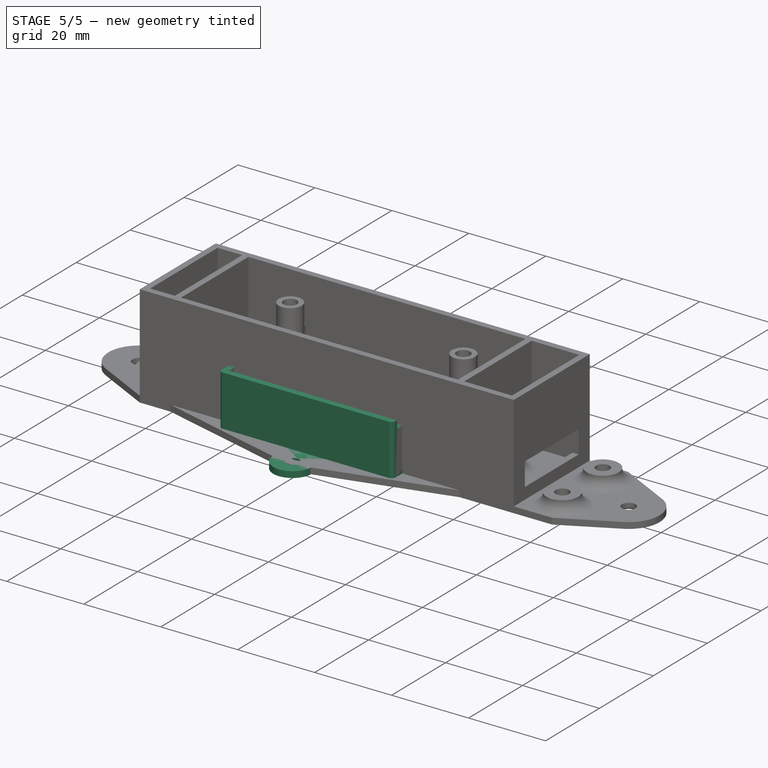
[diagram: stage 5 of 5 — iso view after this stage's code; geometry added in this stage tinted green]
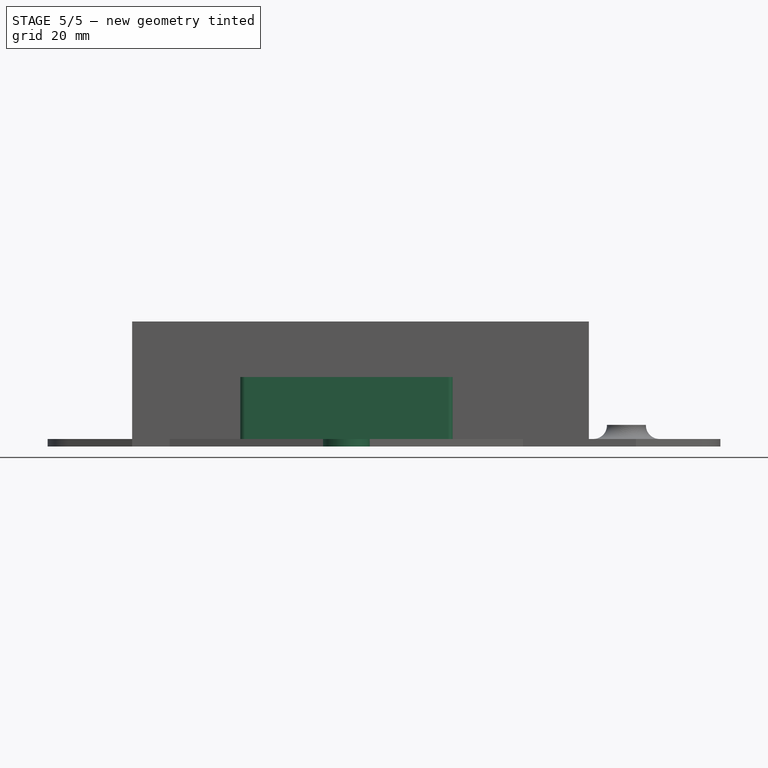
[diagram: stage 5 of 5 — front view after this stage's code; geometry added in this stage tinted green]
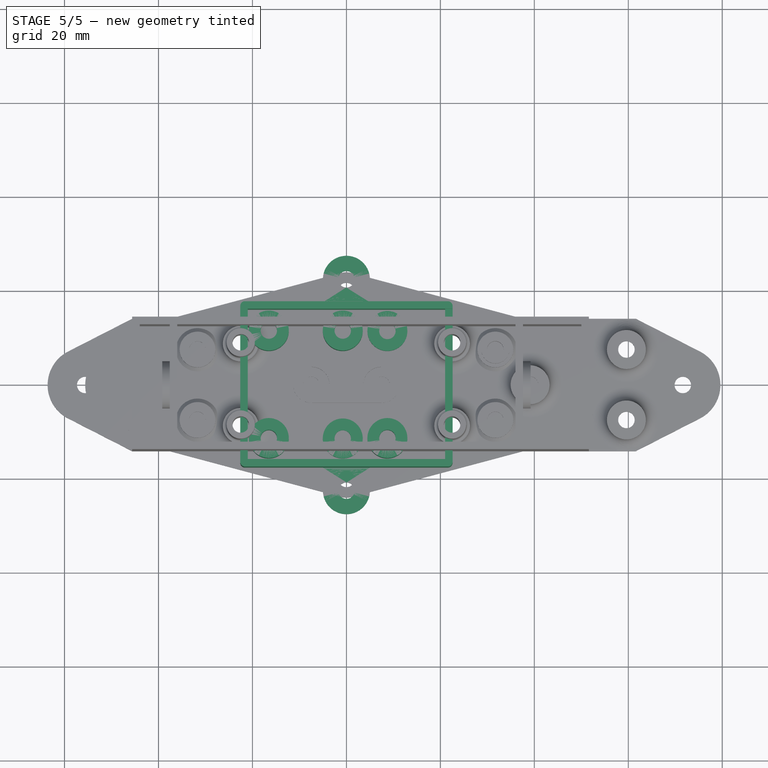
[diagram: stage 5 of 5 — top view after this stage's code; geometry added in this stage tinted green]
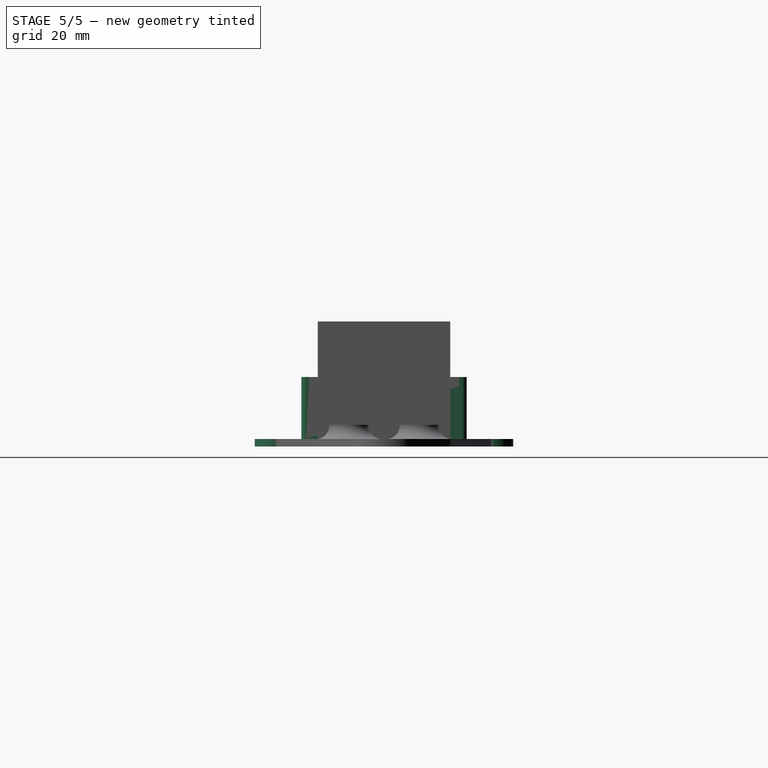
[diagram: stage 5 of 5 — right view after this stage's code; geometry added in this stage tinted green]
FEATURE [Sketcher::SketchObject] Sketch  label="Base"
  MapMode = 5
  sketch-geometry (14):
    g0: LineSegment StartX=22.6 StartY=17.6 StartZ=0 EndX=22.6 EndY=-17.6 EndZ=0
    g1: LineSegment StartX=-22.6 StartY=-17.6 StartZ=0 EndX=-22.6 EndY=17.6 EndZ=0
    g2: LineSegment StartX=-22.6 StartY=17.6 StartZ=0 EndX=-5 EndY=17.6 EndZ=0
    g3: LineSegment StartX=22.6 StartY=17.6 StartZ=0 EndX=5 EndY=17.6 EndZ=0
    g4: LineSegment StartX=-22.6 StartY=-17.6 StartZ=0 EndX=-5 EndY=-17.6 EndZ=0
    g5: LineSegment StartX=22.6 StartY=-17.6 StartZ=0 EndX=5 EndY=-17.6 EndZ=0
    g6: LineSegment StartX=-5 StartY=17.6 StartZ=0 EndX=-5 EndY=22.5 EndZ=0
    g7: LineSegment StartX=5 StartY=17.6 StartZ=0 EndX=5 EndY=22.5 EndZ=0
    g8: ArcOfCircle CenterX=0 CenterY=22.5 CenterZ=0 NormalX=0 NormalY=0 NormalZ=1 AngleXU=0 Radius=5 StartAngle=6.28318 EndAngle=9.42478
    g9: LineSegment StartX=-5 StartY=-17.6 StartZ=0 EndX=-5 EndY=-22.5 EndZ=0
    g10: LineSegment StartX=5 StartY=-17.6 StartZ=0 EndX=5 EndY=-22.5 EndZ=0
    g11: ArcOfCircle CenterX=0 CenterY=-22.5 CenterZ=0 NormalX=0 NormalY=0 NormalZ=1 AngleXU=0 Radius=5 StartAngle=3.14159 EndAngle=6.28319
    g12: Circle CenterX=0 CenterY=22.5 CenterZ=0 NormalX=0 NormalY=0 NormalZ=1 AngleXU=0 Radius=1.75
    g13: Circle CenterX=0 CenterY=-22.5 CenterZ=0 NormalX=0 NormalY=0 NormalZ=1 AngleXU=0 Radius=1.75
  constraints (40):
    c: Vertical(g0)
    c: Vertical(g1)
    c: Symmetric(g1,g0,g-1)
    c: DistanceY(g1,g1) = 35.2
    c: DistanceX(g1,g0) = 45.2
    c: Coincident(g2,g1)
    c: Horizontal(g2)
    c: Coincident(g3,g0)
    c: Horizontal(g3)
    c: Symmetric(g2,g3,g-2)
    c: Coincident(g4,g1)
    c: Horizontal(g4)
    c: Coincident(g5,g0)
    c: Horizontal(g5)
    c: Equal(g1,g0)
    c: Equal(g2,g4)
    c: Equal(g3,g5)
    c: DistanceX(g2,g3) = 10
    c: Coincident(g6,g2)
    c: Vertical(g6)
    c: Coincident(g7,g3)
    c: Vertical(g7)
    c: Equal(g6,g7)
    c: Coincident(g8,g6)
    c: Coincident(g8,g7)
    c: Coincident(g9,g4)
    c: Vertical(g9)
    c: Coincident(g10,g5)
    c: Vertical(g10)
    c: Equal(g6,g9)
    c: Equal(g9,g10)
    c: Coincident(g11,g9)
    c: Coincident(g11,g10)
    c: Tangent(g11,g9)
    c: Coincident(g12,g8)
    c: Radius(g12) = 1.75
    c: Coincident(g13,g11)
    c: Equal(g12,g13)
    c: Symmetric(g8,g11,g-1)
    c: DistanceY(g11,g8) = 45
FEATURE [PartDesign::Pad] Pad
  Length = 1.6
  Length2 = 100
  Profile = -> Sketch
  Type = 0
FEATURE [Sketcher::SketchObject] Sketch001  label="PCBHolders"
  MapMode = 5
  Placement = pos=(0,0,1.6) rot=(0,0,1;0rad)
  Support = -> [Pad]
  sketch-geometry (18):
    g0: LineSegment [constr] StartX=-20.32 StartY=15.24 StartZ=0 EndX=20.32 EndY=15.24 EndZ=0
    g1: LineSegment [constr] StartX=20.32 StartY=15.24 StartZ=0 EndX=20.32 EndY=-15.24 EndZ=0
    g2: LineSegment [constr] StartX=20.32 StartY=-15.24 StartZ=0 EndX=-20.32 EndY=-15.24 EndZ=0
    g3: LineSegment [constr] StartX=-20.32 StartY=-15.24 StartZ=0 EndX=-20.32 EndY=15.24 EndZ=0
    g4: Circle CenterX=-16.52 CenterY=11.44 CenterZ=0 NormalX=0 NormalY=0 NormalZ=1 AngleXU=0 Radius=4.25
    g5: Circle CenterX=-16.52 CenterY=-11.44 CenterZ=0 NormalX=0 NormalY=0 NormalZ=1 AngleXU=0 Radius=4.25
    g6: LineSegment [constr] StartX=-16.52 StartY=11.44 StartZ=0 EndX=-16.52 EndY=15.24 EndZ=0
    g7: LineSegment [constr] StartX=-16.52 StartY=-11.44 StartZ=0 EndX=-16.52 EndY=-15.24 EndZ=0
    g8: LineSegment [constr] StartX=-16.52 StartY=-11.44 StartZ=0 EndX=-20.32 EndY=-11.44 EndZ=0
    g9: LineSegment [constr] StartX=-16.52 StartY=11.44 StartZ=0 EndX=-20.32 EndY=11.44 EndZ=0
    g10: Circle CenterX=8.72 CenterY=11.44 CenterZ=0 NormalX=0 NormalY=0 NormalZ=1 AngleXU=0 Radius=4.25
    g11: Circle CenterX=-0.78 CenterY=-11.44 CenterZ=0 NormalX=0 NormalY=0 NormalZ=1 AngleXU=0 Radius=4.25
    g12: LineSegment [constr] StartX=8.72 StartY=11.44 StartZ=0 EndX=8.72 EndY=15.24 EndZ=0
    g13: LineSegment [constr] StartX=-0.78 StartY=-11.44 StartZ=0 EndX=-0.78 EndY=-15.24 EndZ=0
    g14: Circle CenterX=-16.52 CenterY=11.44 CenterZ=0 NormalX=0 NormalY=0 NormalZ=1 AngleXU=0 Radius=1.75
    g15: Circle CenterX=8.72 CenterY=11.44 CenterZ=0 NormalX=0 NormalY=0 NormalZ=1 AngleXU=0 Radius=1.75
    g16: Circle CenterX=-0.78 CenterY=-11.44 CenterZ=0 NormalX=0 NormalY=0 NormalZ=1 AngleXU=0 Radius=1.75
    g17: Circle CenterX=-16.52 CenterY=-11.44 CenterZ=0 NormalX=0 NormalY=0 NormalZ=1 AngleXU=0 Radius=1.75
  constraints (49):
    c: Coincident(g0,g1)
    c: Coincident(g1,g2)
    c: Coincident(g2,g3)
    c: Coincident(g3,g0)
    c: Horizontal(g0)
    c: Horizontal(g2)
    c: Vertical(g1)
    c: Vertical(g3)
    c: Symmetric(g0,g1,g-1)
    c: DistanceX(g0,g0) = 40.64
    c: DistanceY(g3,g3) = 30.48
    c: DistanceY(g4,g0) = 3.8
    c: Radius(g4) = 4.25
    c: Equal(g4,g5)
    c: Coincident(g6,g4)
    c: PointOnObject(g6,g0)
    c: Vertical(g6)
    c: Coincident(g7,g5)
    c: PointOnObject(g7,g2)
    c: Vertical(g7)
    c: Coincident(g8,g5)
    c: PointOnObject(g8,g3)
    c: Horizontal(g8)
    c: Coincident(g9,g4)
    c: PointOnObject(g9,g3)
    c: Horizontal(g9)
    c: Equal(g6,g9)
    c: Equal(g6,g8)
    c: Equal(g6,g7)
    c: Equal(g4,g10)
    c: Equal(g4,g11)
    c: Coincident(g12,g10)
    c: PointOnObject(g12,g0)
    c: Vertical(g12)
    c: Equal(g6,g12)
    c: DistanceX(g10,g0) = 11.6
    c: Coincident(g13,g11)
    c: PointOnObject(g13,g2)
    c: Vertical(g13)
    c: Equal(g6,g13)
    c: DistanceX(g11,g1) = 21.1
    c: Coincident(g14,g4)
    c: Radius(g14) = 1.75
    c: Coincident(g15,g10)
    c: Coincident(g16,g11)
    c: Coincident(g17,g5)
    c: Equal(g14,g15)
    c: Equal(g15,g16)
    c: Equal(g16,g17)
FEATURE [PartDesign::Pad] Pad001
  Length = 3.2
  Length2 = 100
  Profile = -> Sketch001
  Type = 0
FEATURE [Sketcher::SketchObject] Sketch002  label="NutHoles"
  ExternalGeometry = -> [Pad001]
  MapMode = 5
  Placement = pos=(0,0,0) rot=(1,0,0;3.14159rad)
  Support = -> [Pad001]
  sketch-geometry (28):
    g0: LineSegment StartX=-14.87 StartY=-14.2979 StartZ=0 EndX=-13.22 EndY=-11.44 EndZ=0
    g1: LineSegment StartX=-13.22 StartY=-11.44 StartZ=0 EndX=-14.87 EndY=-8.58212 EndZ=0
    g2: LineSegment StartX=-14.87 StartY=-8.58212 StartZ=0 EndX=-18.17 EndY=-8.58212 EndZ=0
    g3: LineSegment StartX=-18.17 StartY=-8.58212 StartZ=0 EndX=-19.82 EndY=-11.44 EndZ=0
    g4: LineSegment StartX=-19.82 StartY=-11.44 StartZ=0 EndX=-18.17 EndY=-14.2979 EndZ=0
    g5: LineSegment StartX=-18.17 StartY=-14.2979 StartZ=0 EndX=-14.87 EndY=-14.2979 EndZ=0
    g6: Circle [constr] CenterX=-16.52 CenterY=-11.44 CenterZ=0 NormalX=0 NormalY=0 NormalZ=1 AngleXU=0 Radius=3.3
    g7: LineSegment StartX=10.37 StartY=-14.2979 StartZ=0 EndX=12.02 EndY=-11.44 EndZ=0
    g8: LineSegment StartX=12.02 StartY=-11.44 StartZ=0 EndX=10.37 EndY=-8.58212 EndZ=0
    g9: LineSegment StartX=10.37 StartY=-8.58212 StartZ=0 EndX=7.07 EndY=-8.58212 EndZ=0
    g10: LineSegment StartX=7.07 StartY=-8.58212 StartZ=0 EndX=5.42 EndY=-11.44 EndZ=0
    g11: LineSegment StartX=5.42 StartY=-11.44 StartZ=0 EndX=7.07 EndY=-14.2979 EndZ=0
    g12: LineSegment StartX=7.07 StartY=-14.2979 StartZ=0 EndX=10.37 EndY=-14.2979 EndZ=0
    g13: Circle [constr] CenterX=8.72 CenterY=-11.44 CenterZ=0 NormalX=0 NormalY=0 NormalZ=1 AngleXU=0 Radius=3.3
    g14: LineSegment StartX=-14.87 StartY=8.58212 StartZ=0 EndX=-13.22 EndY=11.44 EndZ=0
    g15: LineSegment StartX=-13.22 StartY=11.44 StartZ=0 EndX=-14.87 EndY=14.2979 EndZ=0
    g16: LineSegment StartX=-14.87 StartY=14.2979 StartZ=0 EndX=-18.17 EndY=14.2979 EndZ=0
    g17: LineSegment StartX=-18.17 StartY=14.2979 StartZ=0 EndX=-19.82 EndY=11.44 EndZ=0
    g18: LineSegment StartX=-19.82 StartY=11.44 StartZ=0 EndX=-18.17 EndY=8.58212 EndZ=0
    g19: LineSegment StartX=-18.17 StartY=8.58212 StartZ=0 EndX=-14.87 EndY=8.58212 EndZ=0
    g20: Circle [constr] CenterX=-16.52 CenterY=11.44 CenterZ=0 NormalX=0 NormalY=0 NormalZ=1 AngleXU=0 Radius=3.3
    g21: LineSegment StartX=0.87 StartY=8.58212 StartZ=0 EndX=2.52 EndY=11.44 EndZ=0
    g22: LineSegment StartX=2.52 StartY=11.44 StartZ=0 EndX=0.87 EndY=14.2979 EndZ=0
    g23: LineSegment StartX=0.87 StartY=14.2979 StartZ=0 EndX=-2.43 EndY=14.2979 EndZ=0
    g24: LineSegment StartX=-2.43 StartY=14.2979 StartZ=0 EndX=-4.08 EndY=11.44 EndZ=0
    g25: LineSegment StartX=-4.08 StartY=11.44 StartZ=0 EndX=-2.43 EndY=8.58212 EndZ=0
    g26: LineSegment StartX=-2.43 StartY=8.58212 StartZ=0 EndX=0.87 EndY=8.58212 EndZ=0
    g27: Circle [constr] CenterX=-0.78 CenterY=11.44 CenterZ=0 NormalX=0 NormalY=0 NormalZ=1 AngleXU=0 Radius=3.3
  constraints (64):
    c: Coincident(g0,g1)
    c: Coincident(g1,g2)
    c: Coincident(g2,g3)
    c: Coincident(g3,g4)
    c: Coincident(g4,g5)
    c: Coincident(g5,g0)
    c: Equal(g0, g1-g5) x5
    c: PointOnObject(g0,g6)
    c: PointOnObject(g1,g6)
    c: PointOnObject(g2,g6)
    c: PointOnObject(g3,g6)
    c: PointOnObject(g4,g6)
    c: PointOnObject(g5,g6)
    c: Coincident(g6,g-5)
    c: Horizontal(g2)
    c: Radius(g6) = 3.3
    c: Coincident(g7,g8)
    c: Coincident(g8,g9)
    c: Coincident(g9,g10)
    c: Coincident(g10,g11)
    c: Coincident(g11,g12)
    c: Coincident(g12,g7)
    c: Equal(g7, g8-g12) x5
    c: PointOnObject(g7,g13)
    c: PointOnObject(g8,g13)
    c: PointOnObject(g9,g13)
    c: PointOnObject(g10,g13)
    c: PointOnObject(g11,g13)
    c: PointOnObject(g12,g13)
    c: Coincident(g13,g-6)
    c: Horizontal(g9)
    c: Coincident(g14,g15)
    c: Coincident(g15,g16)
    c: Coincident(g16,g17)
    c: Coincident(g17,g18)
    c: Coincident(g18,g19)
    c: Coincident(g19,g14)
    c: Equal(g14, g15-g19) x5
    c: PointOnObject(g14,g20)
    c: PointOnObject(g15,g20)
    c: PointOnObject(g16,g20)
    c: PointOnObject(g17,g20)
    c: PointOnObject(g18,g20)
    c: PointOnObject(g19,g20)
    c: Coincident(g20,g-3)
    c: Coincident(g21,g22)
    c: Coincident(g22,g23)
    c: Coincident(g23,g24)
    c: Coincident(g24,g25)
    c: Coincident(g25,g26)
    c: Coincident(g26,g21)
    c: Equal(g21, g22-g26) x5
    c: PointOnObject(g21,g27)
    c: PointOnObject(g22,g27)
    c: PointOnObject(g23,g27)
    c: PointOnObject(g24,g27)
    c: PointOnObject(g25,g27)
    c: PointOnObject(g26,g27)
    c: Coincident(g27,g-4)
    c: Horizontal(g16)
    c: Horizontal(g23)
    c: Equal(g6,g13)
    c: Equal(g13,g20)
    c: Equal(g20,g27)
FEATURE [PartDesign::Pocket] Pocket
  Length = 3
  Length2 = 100
  Profile = -> Sketch002
  Type = 0
FEATURE [Sketcher::SketchObject] MirroredSketch  label="PCBHolders2"
  MapMode = 5
  Placement = pos=(0,0,1.6) rot=(0,0,1;0rad)
  Support = -> [Pad003]
  sketch-geometry (18):
    g0: LineSegment [constr] StartX=-20.32 StartY=-15.24 StartZ=0 EndX=20.32 EndY=-15.24 EndZ=0
    g1: LineSegment [constr] StartX=20.32 StartY=-15.24 StartZ=0 EndX=20.32 EndY=15.24 EndZ=0
    g2: LineSegment [constr] StartX=20.32 StartY=15.24 StartZ=0 EndX=-20.32 EndY=15.24 EndZ=0
    g3: LineSegment [constr] StartX=-20.32 StartY=15.24 StartZ=0 EndX=-20.32 EndY=-15.24 EndZ=0
    g4: Circle CenterX=-16.52 CenterY=-11.44 CenterZ=0 NormalX=0 NormalY=0 NormalZ=1 AngleXU=0 Radius=4.25
    g5: Circle CenterX=-16.52 CenterY=11.44 CenterZ=0 NormalX=0 NormalY=0 NormalZ=1 AngleXU=0 Radius=4.25
    g6: LineSegment [constr] StartX=-16.52 StartY=-11.44 StartZ=0 EndX=-16.52 EndY=-15.24 EndZ=0
    g7: LineSegment [constr] StartX=-16.52 StartY=11.44 StartZ=0 EndX=-16.52 EndY=15.24 EndZ=0
    g8: LineSegment [constr] StartX=-16.52 StartY=11.44 StartZ=0 EndX=-20.32 EndY=11.44 EndZ=0
    g9: LineSegment [constr] StartX=-16.52 StartY=-11.44 StartZ=0 EndX=-20.32 EndY=-11.44 EndZ=0
    g10: Circle CenterX=8.72 CenterY=-11.44 CenterZ=0 NormalX=0 NormalY=0 NormalZ=1 AngleXU=0 Radius=4.25
    g11: Circle CenterX=-0.78 CenterY=11.44 CenterZ=0 NormalX=0 NormalY=0 NormalZ=1 AngleXU=0 Radius=4.25
    g12: LineSegment [constr] StartX=8.72 StartY=-11.44 StartZ=0 EndX=8.72 EndY=-15.24 EndZ=0
    g13: LineSegment [constr] StartX=-0.78 StartY=11.44 StartZ=0 EndX=-0.78 EndY=15.24 EndZ=0
    g14: Circle CenterX=-16.52 CenterY=-11.44 CenterZ=0 NormalX=0 NormalY=0 NormalZ=1 AngleXU=0 Radius=1.75
    g15: Circle CenterX=8.72 CenterY=-11.44 CenterZ=0 NormalX=0 NormalY=0 NormalZ=1 AngleXU=0 Radius=1.75
    g16: Circle CenterX=-0.78 CenterY=11.44 CenterZ=0 NormalX=0 NormalY=0 NormalZ=1 AngleXU=0 Radius=1.75
    g17: Circle CenterX=-16.52 CenterY=11.44 CenterZ=0 NormalX=0 NormalY=0 NormalZ=1 AngleXU=0 Radius=1.75
  constraints (49):
    c: Coincident(g0,g1)
    c: Coincident(g1,g2)
    c: Coincident(g2,g3)
    c: Coincident(g3,g0)
    c: Horizontal(g0)
    c: Horizontal(g2)
    c: Vertical(g1)
    c: Vertical(g3)
    c: Radius(g4) = 4.25
    c: Equal(g4,g5)
    c: Coincident(g6,g4)
    c: PointOnObject(g6,g0)
    c: Vertical(g6)
    c: Coincident(g7,g5)
    c: PointOnObject(g7,g2)
    c: Vertical(g7)
    c: Coincident(g8,g5)
    c: PointOnObject(g8,g3)
    c: Horizontal(g8)
    c: Coincident(g9,g4)
    c: PointOnObject(g9,g3)
    c: Horizontal(g9)
    c: Equal(g6,g9)
    c: Equal(g6,g8)
    c: Equal(g6,g7)
    c: Equal(g4,g10)
    c: Equal(g4,g11)
    c: Coincident(g12,g10)
    c: PointOnObject(g12,g0)
    c: Vertical(g12)
    c: Equal(g6,g12)
    c: Coincident(g13,g11)
    c: PointOnObject(g13,g2)
    c: Vertical(g13)
    c: Equal(g6,g13)
    c: Coincident(g14,g4)
    c: Radius(g14) = 1.75
    c: Coincident(g15,g10)
    c: Coincident(g16,g11)
    c: Coincident(g17,g5)
    c: Equal(g14,g15)
    c: Equal(g15,g16)
    c: Equal(g16,g17)
    c: DistanceX(g2,g2) = 40.64
    c: DistanceY(g3,g3) = 30.48
    c: Symmetric(g2,g0,g-1)
    c: DistanceY(g7,g7) = 3.8
    c: DistanceX(g13,g1) = 21.1
    c: DistanceX(g12,g0) = 11.6
FEATURE [PartDesign::Pad] Pad004
  Length = 8.4
  Length2 = 100
  Profile = -> MirroredSketch
  Type = 0
FEATURE [Sketcher::SketchObject] MirroredSketch001  label="Walls"
  MapMode = 5
  Placement = pos=(0,0,1.6) rot=(0,0,1;0rad)
  Support = -> [Pocket]
  sketch-geometry (12):
    g0: LineSegment StartX=22.6 StartY=17.6 StartZ=0 EndX=-22.6 EndY=17.6 EndZ=0
    g1: LineSegment StartX=22.6 StartY=-17.6 StartZ=0 EndX=-22.6 EndY=-17.6 EndZ=0
    g2: LineSegment [constr] StartX=20.32 StartY=15.24 StartZ=0 EndX=-20.32 EndY=15.24 EndZ=0
    g3: LineSegment [constr] StartX=-20.32 StartY=15.24 StartZ=0 EndX=-20.32 EndY=-15.24 EndZ=0
    g4: LineSegment [constr] StartX=-20.32 StartY=-15.24 StartZ=0 EndX=20.32 EndY=-15.24 EndZ=0
    g5: LineSegment [constr] StartX=20.32 StartY=-15.24 StartZ=0 EndX=20.32 EndY=15.24 EndZ=0
    g6: LineSegment StartX=21 StartY=16 StartZ=0 EndX=-21 EndY=16 EndZ=0
    g7: LineSegment StartX=22.6 StartY=17.6 StartZ=0 EndX=22.6 EndY=-17.6 EndZ=0
    g8: LineSegment StartX=21 StartY=-16 StartZ=0 EndX=-21 EndY=-16 EndZ=0
    g9: LineSegment StartX=-22.6 StartY=17.6 StartZ=0 EndX=-22.6 EndY=-17.6 EndZ=0
    g10: LineSegment StartX=-21 StartY=16 StartZ=0 EndX=-21 EndY=-16 EndZ=0
    g11: LineSegment StartX=21 StartY=16 StartZ=0 EndX=21 EndY=-16 EndZ=0
  constraints (37):
    c: Horizontal(g0)
    c: Horizontal(g1)
    c: Equal(g0,g1)
    c: Coincident(g2,g3)
    c: Coincident(g3,g4)
    c: Coincident(g4,g5)
    c: Coincident(g5,g2)
    c: Horizontal(g2)
    c: Horizontal(g4)
    c: Vertical(g3)
    c: Vertical(g5)
    c: Equal(g0,g1)
    c: Horizontal(g6)
    c: Coincident(g7,g0)
    c: Vertical(g7)
    c: Horizontal(g8)
    c: Coincident(g9,g0)
    c: Vertical(g9)
    c: Coincident(g10,g6)
    c: Vertical(g10)
    c: DistanceX(g0,g0) = 45.2
    c: DistanceY(g1,g0) = 35.2
    c: DistanceX(g2,g2) = 40.64
    c: DistanceY(g3,g3) = 30.48
    c: Symmetric(g0,g1,g-1)
    c: Symmetric(g4,g2,g-1)
    c: Symmetric(g6,g6,g-2)
    c: Symmetric(g8,g8,g-2)
    c: DistanceX(g0,g6) = 1.6
    c: DistanceY(g6,g0) = 1.6
    c: DistanceX(g1,g8) = 1.6
    c: DistanceY(g1,g8) = 1.6
    c: Coincident(g9,g1)
    c: Coincident(g10,g8)
    c: Coincident(g11,g6)
    c: Coincident(g11,g8)
    c: Coincident(g7,g1)
FEATURE [PartDesign::Pad] Pad005
  Length = 11.2
  Length2 = 100
  Profile = -> MirroredSketch001
  Type = 0
FEATURE [Sketcher::SketchObject] Sketch007  label="ScrewHeadHoles"
  MapMode = 5
  Placement = pos=(0,0,0) rot=(1,0,0;3.14159rad)
  Support = -> [Pad004]
  sketch-geometry (7):
    g0: LineSegment [constr] StartX=-16.52 StartY=-11.44 StartZ=0 EndX=-0.78 EndY=-11.44 EndZ=0
    g1: LineSegment [constr] StartX=-16.52 StartY=-11.44 StartZ=0 EndX=-16.52 EndY=11.44 EndZ=0
    g2: LineSegment [constr] StartX=-16.52 StartY=11.44 StartZ=0 EndX=8.72 EndY=11.44 EndZ=0
    g3: Circle CenterX=-16.52 CenterY=11.44 CenterZ=0 NormalX=0 NormalY=0 NormalZ=1 AngleXU=0 Radius=3
    g4: Circle CenterX=8.72 CenterY=11.44 CenterZ=0 NormalX=0 NormalY=0 NormalZ=1 AngleXU=0 Radius=3
    g5: Circle CenterX=-0.78 CenterY=-11.44 CenterZ=0 NormalX=0 NormalY=0 NormalZ=1 AngleXU=0 Radius=3
    g6: Circle CenterX=-16.52 CenterY=-11.44 CenterZ=0 NormalX=0 NormalY=0 NormalZ=1 AngleXU=0 Radius=3
  constraints (18):
    c: Horizontal(g0)
    c: Vertical(g1)
    c: Horizontal(g2)
    c: DistanceY(g0,g-1) = 11.44
    c: DistanceX(g0,g-1) = 0.78
    c: DistanceX(g0,g-1) = 16.52
    c: Symmetric(g0,g1,g-1)
    c: DistanceX(g-1,g2) = 8.72
    c: Coincident(g1,g2)
    c: Coincident(g0,g1)
    c: Coincident(g3,g1)
    c: Coincident(g4,g2)
    c: Coincident(g5,g0)
    c: Coincident(g6,g0)
    c: Equal(g3,g4)
    c: Equal(g4,g5)
    c: Equal(g5,g6)
    c: Radius(g3) = 3
FEATURE [PartDesign::Pocket] Pocket001
  Length = 4.5
  Length2 = 100
  Profile = -> Sketch007
  Type = 0
FEATURE [Sketcher::SketchObject] MirroredSketch002  label="Walls001"
  MapMode = 5
  Placement = pos=(0,0,12.8) rot=(0,0,1;0rad)
  Support = -> [Pad005]
  sketch-geometry (18):
    g0: LineSegment StartX=22.6 StartY=17.6 StartZ=0 EndX=-22.6 EndY=17.6 EndZ=0
    g1: LineSegment StartX=22.6 StartY=-17.6 StartZ=0 EndX=-22.6 EndY=-17.6 EndZ=0
    g2: LineSegment [constr] StartX=20.32 StartY=15.24 StartZ=0 EndX=-20.32 EndY=15.24 EndZ=0
    g3: LineSegment [constr] StartX=-20.32 StartY=15.24 StartZ=0 EndX=-20.32 EndY=-15.24 EndZ=0
    g4: LineSegment [constr] StartX=-20.32 StartY=-15.24 StartZ=0 EndX=20.32 EndY=-15.24 EndZ=0
    g5: LineSegment [constr] StartX=20.32 StartY=-15.24 StartZ=0 EndX=20.32 EndY=15.24 EndZ=0
    g6: LineSegment StartX=21 StartY=16 StartZ=0 EndX=-21 EndY=16 EndZ=0
    g7: LineSegment StartX=22.6 StartY=17.6 StartZ=0 EndX=22.6 EndY=16 EndZ=0
    g8: LineSegment StartX=22.6 StartY=16 StartZ=0 EndX=21 EndY=16 EndZ=0
    g9: LineSegment StartX=21 StartY=-16 StartZ=0 EndX=-21 EndY=-16 EndZ=0
    g10: LineSegment StartX=21 StartY=-16 StartZ=0 EndX=22.6 EndY=-16 EndZ=0
    g11: LineSegment StartX=22.6 StartY=-17.6 StartZ=0 EndX=22.6 EndY=-16 EndZ=0
    g12: LineSegment StartX=-22.6 StartY=-17.6 StartZ=0 EndX=-22.6 EndY=-6 EndZ=0
    g13: LineSegment StartX=-22.6 StartY=17.6 StartZ=0 EndX=-22.6 EndY=6 EndZ=0
    g14: LineSegment StartX=-21 StartY=16 StartZ=0 EndX=-21 EndY=6 EndZ=0
    g15: LineSegment StartX=-21 StartY=6 StartZ=0 EndX=-22.6 EndY=6 EndZ=0
    g16: LineSegment StartX=-21 StartY=-16 StartZ=0 EndX=-21 EndY=-6 EndZ=0
    g17: LineSegment StartX=-21 StartY=-6 StartZ=0 EndX=-22.6 EndY=-6 EndZ=0
  constraints (53):
    c: Horizontal(g0)
    c: Horizontal(g1)
    c: Equal(g0,g1)
    c: Coincident(g2,g3)
    c: Coincident(g3,g4)
    c: Coincident(g4,g5)
    c: Coincident(g5,g2)
    c: Horizontal(g2)
    c: Horizontal(g4)
    c: Vertical(g3)
    c: Vertical(g5)
    c: Equal(g0,g1)
    c: Horizontal(g6)
    c: Coincident(g7,g0)
    c: Vertical(g7)
    c: Coincident(g8,g7)
    c: Coincident(g8,g6)
    c: Horizontal(g8)
    c: Horizontal(g9)
    c: Coincident(g10,g9)
    c: Horizontal(g10)
    c: Coincident(g11,g1)
    c: Vertical(g11)
    c: Coincident(g10,g11)
    c: Coincident(g12,g1)
    c: Vertical(g12)
    c: Coincident(g13,g0)
    c: Vertical(g13)
    c: Tangent(g13,g12)
    c: Coincident(g14,g6)
    c: Vertical(g14)
    c: Coincident(g15,g13)
    c: Horizontal(g15)
    c: Coincident(g14,g15)
    c: Coincident(g9,g16)
    c: Vertical(g16)
    c: Coincident(g16,g17)
    c: Coincident(g17,g12)
    c: Horizontal(g17)
    c: DistanceX(g0,g0) = 45.2
    c: DistanceY(g1,g0) = 35.2
    c: DistanceX(g2,g2) = 40.64
    c: DistanceY(g3,g3) = 30.48
    c: Symmetric(g0,g1,g-1)
    c: Symmetric(g4,g2,g-1)
    c: Symmetric(g6,g6,g-2)
    c: Symmetric(g9,g9,g-2)
    c: DistanceY(g12,g13) = 12
    c: Equal(g13,g12)
    c: DistanceX(g0,g6) = 1.6
    c: DistanceY(g6,g0) = 1.6
    c: DistanceX(g1,g9) = 1.6
    c: DistanceY(g1,g9) = 1.6
FEATURE [PartDesign::Pad] Pad006
  Length = 2
  Length2 = 100
  Profile = -> MirroredSketch002
  Type = 0
FEATURE [PartDesign::Chamfer] Chamfer001
  Base = -> Pad006 [Edge27,Edge26,Edge31,Edge30,Edge29,Edge28,Edge22,Edge21,Edge20,Edge25,Edge24,Edge23,Edge34,Edge33,Edge32,Edge37,Edge36,Edge35,Edge18,Edge19,Edge14,Edge15,Edge16,Edge17]
  Size = 0.4
FEATURE [PartDesign::Fillet] Fillet
  Base = -> Chamfer001 [Edge190,Edge137,Edge72,Edge68,Edge130,Edge180,Edge186,Edge132,Edge55,Edge51,Edge127,Edge178]
  Radius = 1
FEATURE [App::DocumentObjectGroup] Group  label="Bottom"
  Group = -> [Pad,Pad001,Pocket,Pad005,Pad006,Chamfer001,Fillet]
FEATURE [PartDesign::Chamfer] Chamfer
  Base = -> Pocket001 [Edge20,Edge18,Edge17,Edge19]
  Size = 0.4
FEATURE [PartDesign::Fillet] Fillet001
  Base = -> Chamfer [Edge25,Edge15,Edge16,Edge21]
  Radius = 1
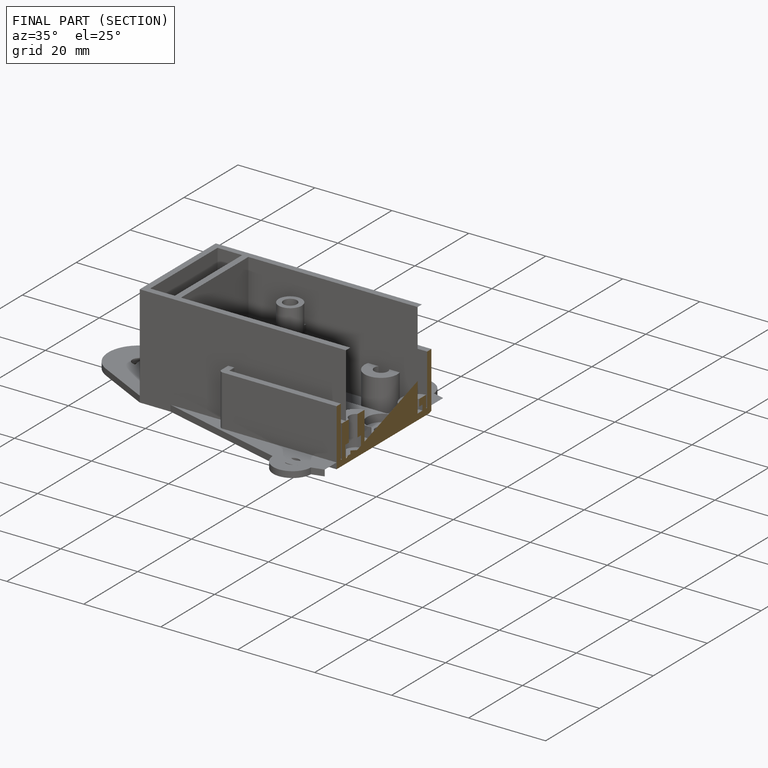
[diagram: finished part — half-section view (interior)]
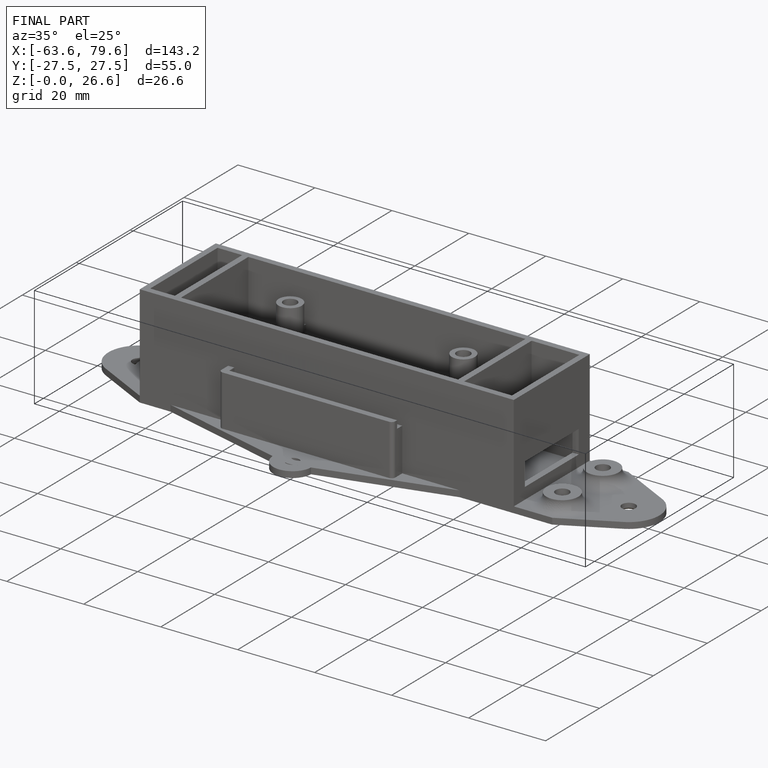
[diagram: finished part — iso view with bounding-box wireframe]
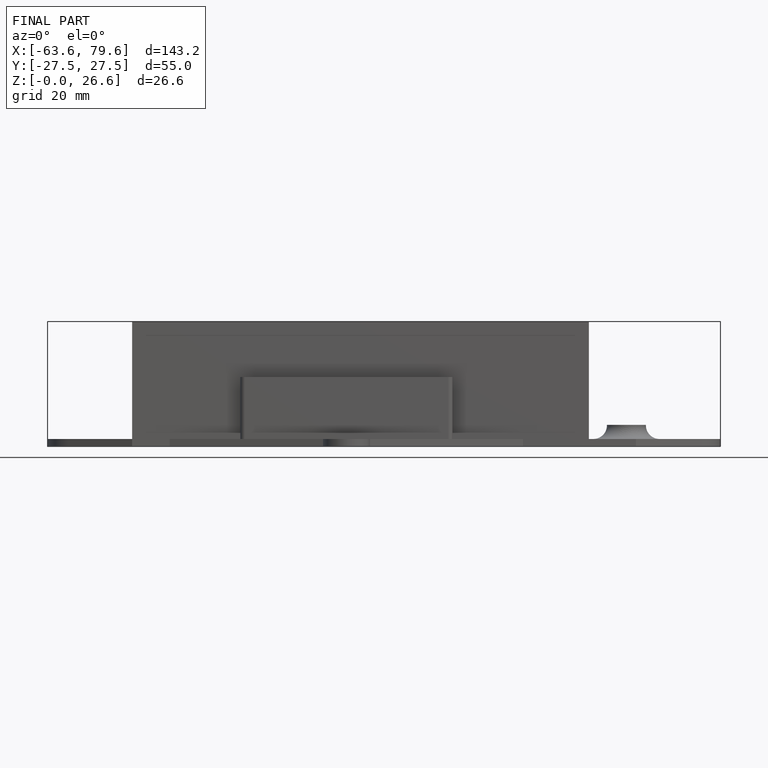
[diagram: finished part — front view with bounding-box wireframe]
